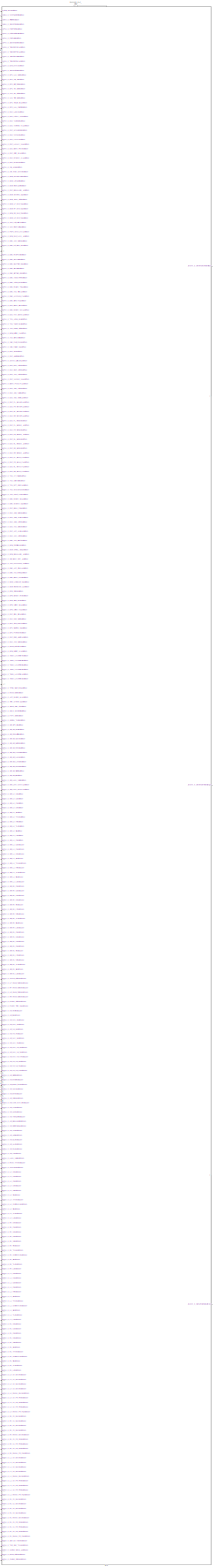
[diagram: root canvas - part 1/15, center side, full height]
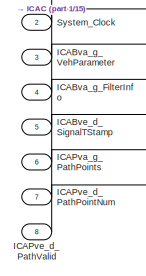
[diagram: root canvas - part 2/15, top left region]
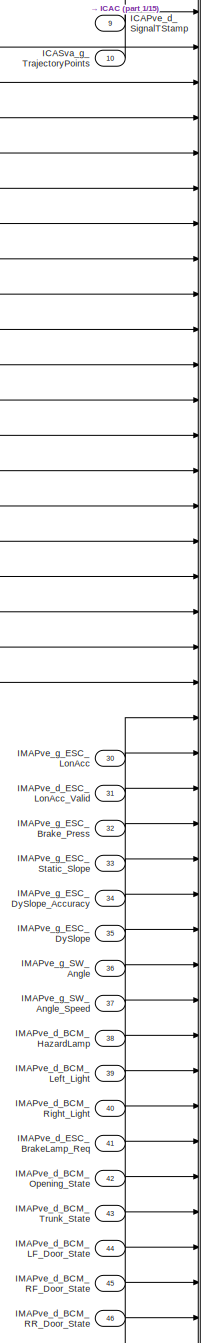
[diagram: root canvas - part 3/15, top center region]
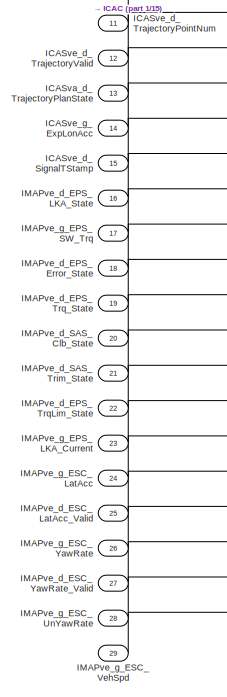
[diagram: root canvas - part 4/15, top left region]
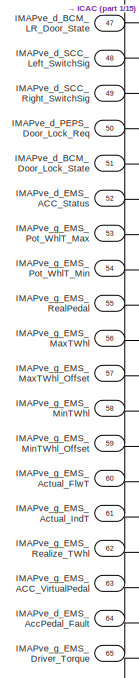
[diagram: root canvas - part 5/15, top center region]
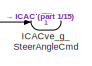
[diagram: root canvas - part 6/15, top right region]
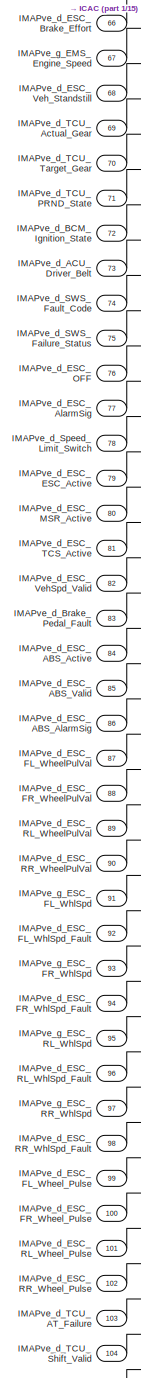
[diagram: root canvas - part 7/15, top center region]
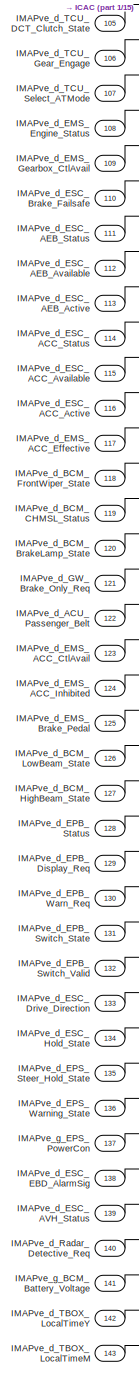
[diagram: root canvas - part 8/15, central region]
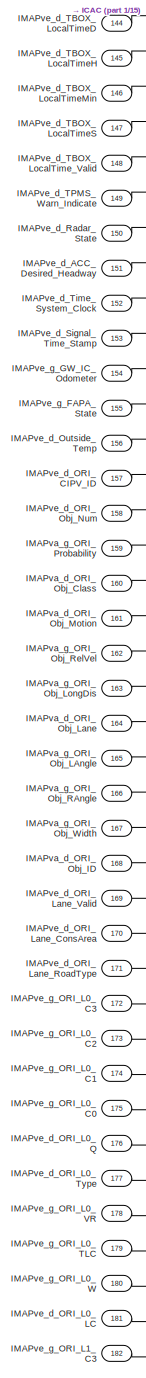
[diagram: root canvas - part 9/15, central region]
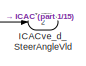
[diagram: root canvas - part 10/15, middle right region]
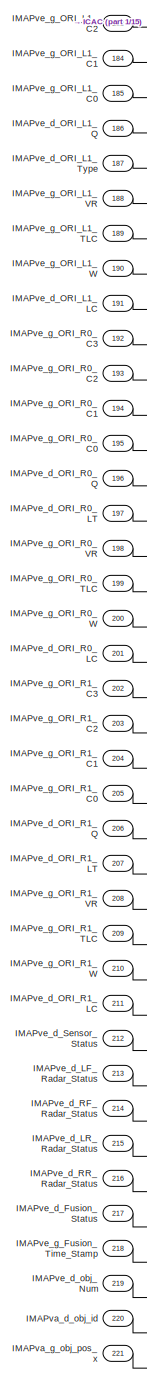
[diagram: root canvas - part 11/15, central region]
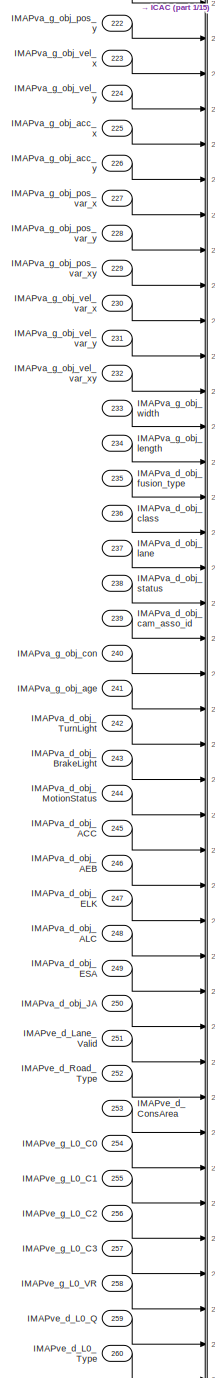
[diagram: root canvas - part 12/15, bottom center region]
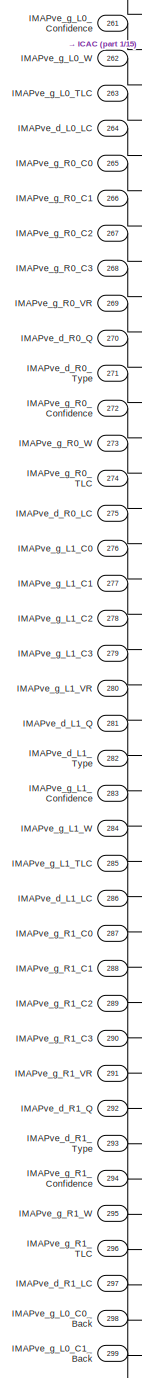
[diagram: root canvas - part 13/15, bottom center region]
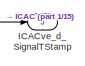
[diagram: root canvas - part 14/15, bottom right region]
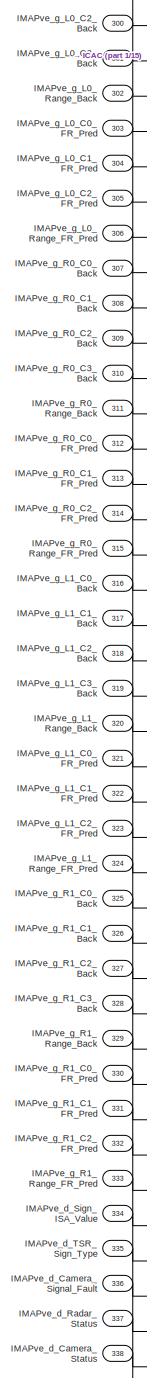
[diagram: root canvas - part 15/15, bottom center region]
MODEL slx_9c63c3b13951
KIND model
CONFIG AbsTol = auto
CONFIG EnableMultiTasking = off
CONFIG FixedStep = auto
CONFIG InitFcn = tmpVer = ver('MATLAB');\ntmpVer = str2num(tmpVer.Version);\n% -------------------------------------------------------------------\n%  MATLAB file generated by Simulink.saveVars on 21-Nov-2019 10:06:14\n%  MATLAB version: 7.13.0.564 (R2011b)\n% -------------------------------------------------------------------\n                                       \n\nSInt16 = Simulink.AliasType;\nSInt16.Description = 'N...<+164021ch>
CONFIG MaxStep = auto
CONFIG MinStep = auto
CONFIG RelTol = 1e-3
CONFIG SampleTimeConstraint = Unconstrained
CONFIG Solver = FixedStepDiscrete
CONFIG SolverName = FixedStepDiscrete
CONFIG StartTime = 0.0
CONFIG StopFcn = clear  T_A_m2_1024_1_u32 T_A_m2_65536_1_u16 T_A_m2_Float32 T_A_mm2_10_1_u16 T_A_mm2_4_1_s16 T_A_mm2_Float32 T_Cnt_Num_10_1_u32 T_Cnt_Num_1_1_s16 T_Cnt_Num_1_1_s32 T_Cnt_Num_1_1_s8 T_Cnt_Num_1_1_u16 T_Cnt_Num_1_1_u32 T_Cnt_Num_1_1_u8 T_E_J_1_1_s32 T_E_J_Float32 T_E_kJ_128_1_s32 T_E_kJ_Float32 T_E_kwh_10_1_u16 T_E_kwh_Float32 T_Epl_kwhpkm_100_1_u16 T_Epl_kwhpkm_Float32 T_F_N_1_1_s16 T_F_N_Float32 T_...<+4855ch>
CONFIG StopTime = 10.0
BLOCK [Inport] ICABva_g_FilterInfo
  IconDisplay = Port number
  OutDataTypeStr = T_M_Nm_Float32
  Port = 4
  PortDimensions = 50
BLOCK [Inport] ICABva_g_VehParameter
  IconDisplay = Port number
  OutDataTypeStr = T_M_Nm_Float32
  Port = 3
  PortDimensions = 60
BLOCK [Inport] ICABve_d_SignalTStamp
  IconDisplay = Port number
  OutDataTypeStr = UInt16
  Port = 5
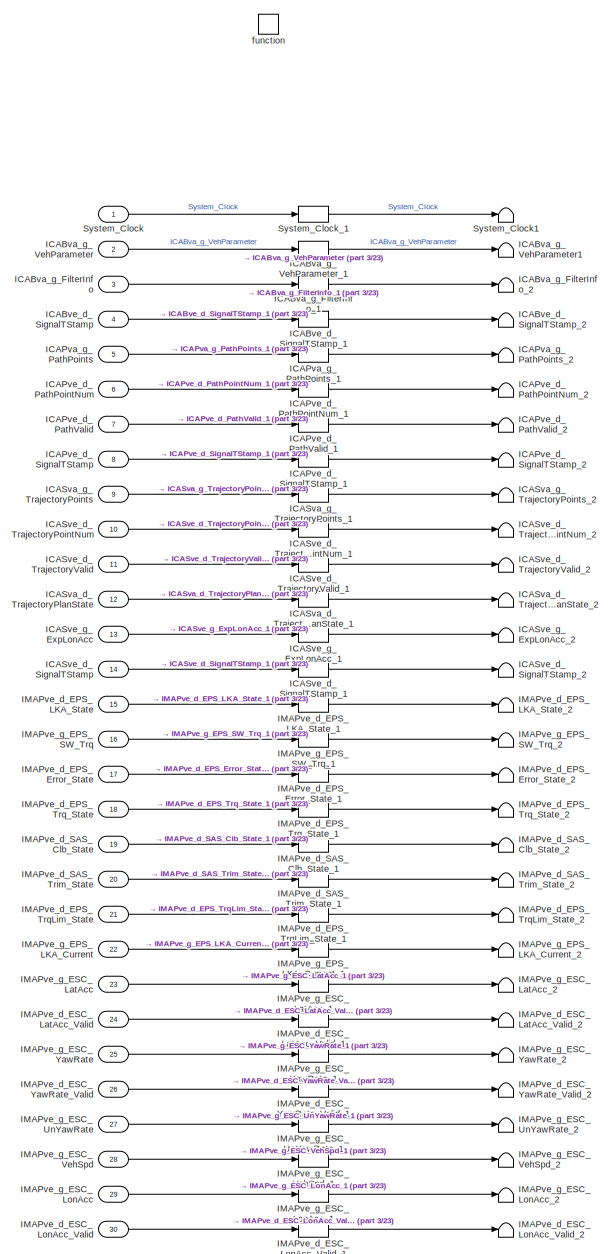
[diagram: ICAC - part 1/23, top left region]
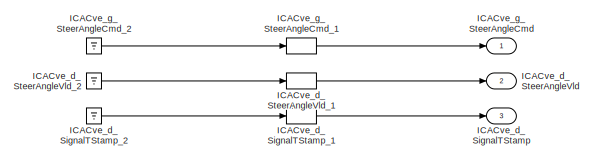
[diagram: ICAC - part 2/23, top right region]
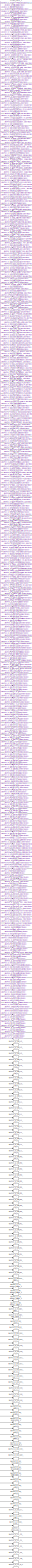
[diagram: ICAC - part 3/23, left side, full height]
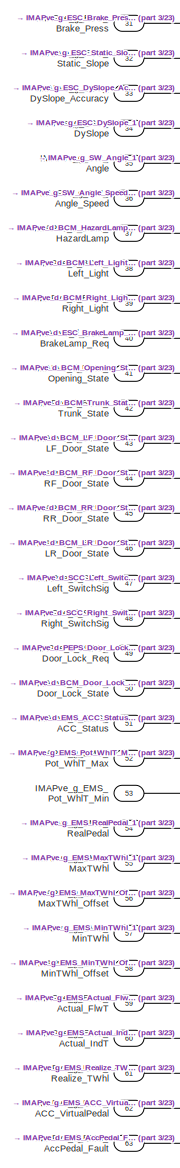
[diagram: ICAC - part 4/23, top left region]
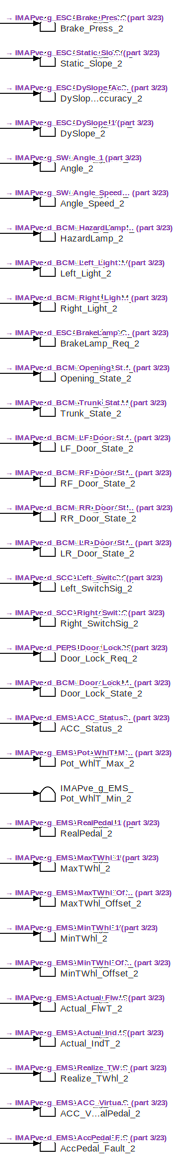
[diagram: ICAC - part 5/23, top left region]
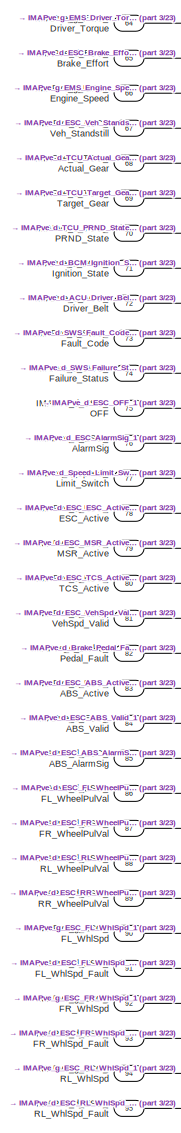
[diagram: ICAC - part 6/23, top left region]
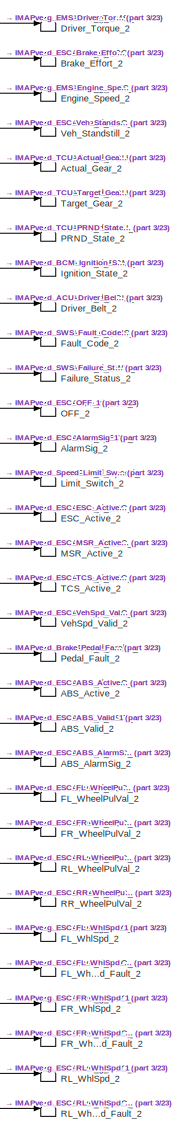
[diagram: ICAC - part 7/23, top left region]
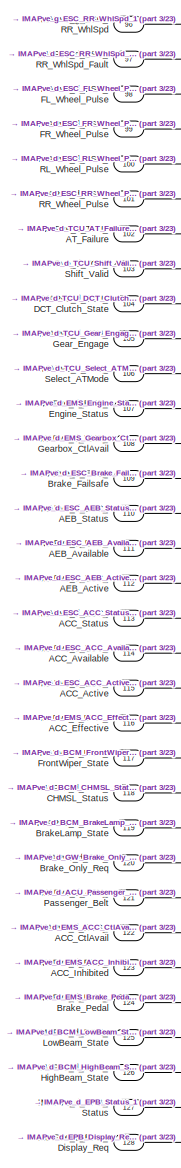
[diagram: ICAC - part 8/23, middle left region]
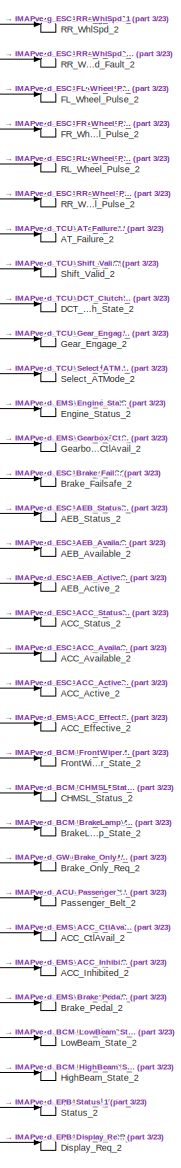
[diagram: ICAC - part 9/23, middle left region]
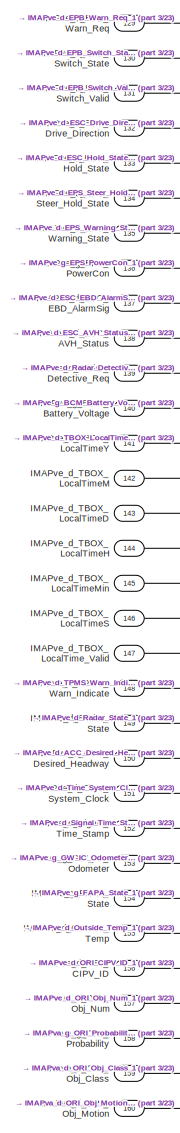
[diagram: ICAC - part 10/23, middle left region]
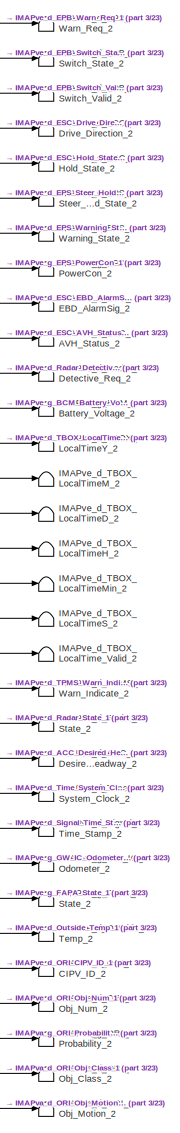
[diagram: ICAC - part 11/23, middle left region]
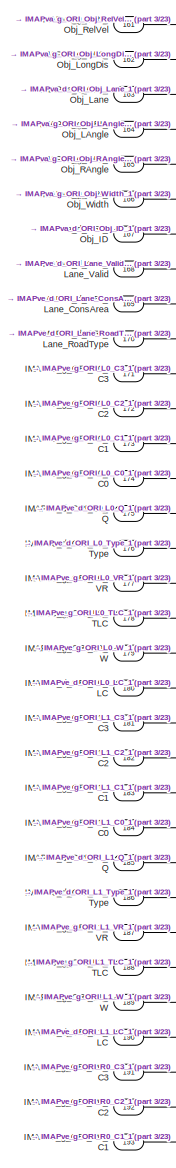
[diagram: ICAC - part 12/23, middle left region]
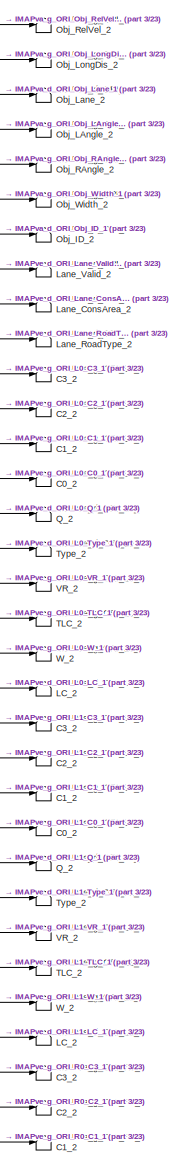
[diagram: ICAC - part 13/23, middle left region]
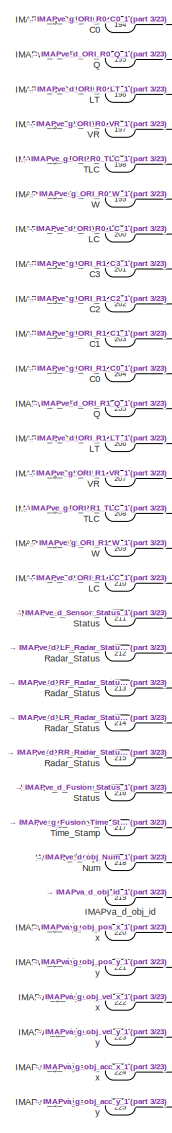
[diagram: ICAC - part 14/23, middle left region]
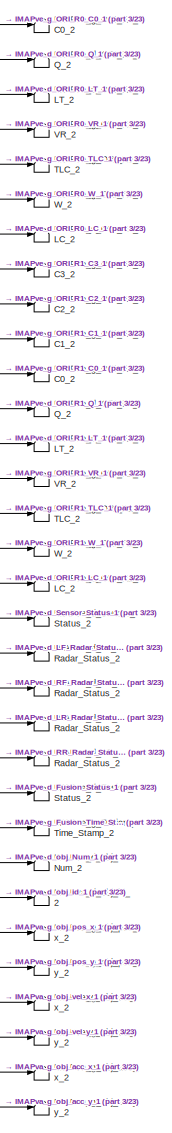
[diagram: ICAC - part 15/23, middle left region]
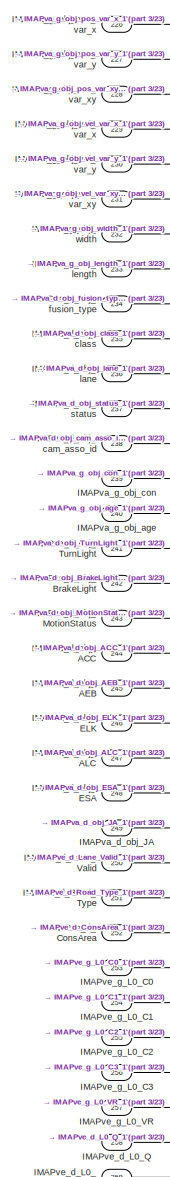
[diagram: ICAC - part 16/23, bottom left region]
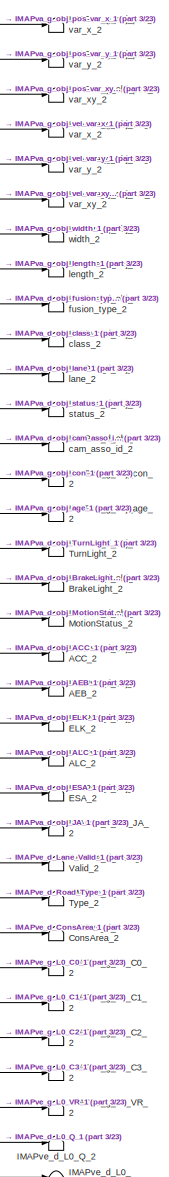
[diagram: ICAC - part 17/23, bottom left region]
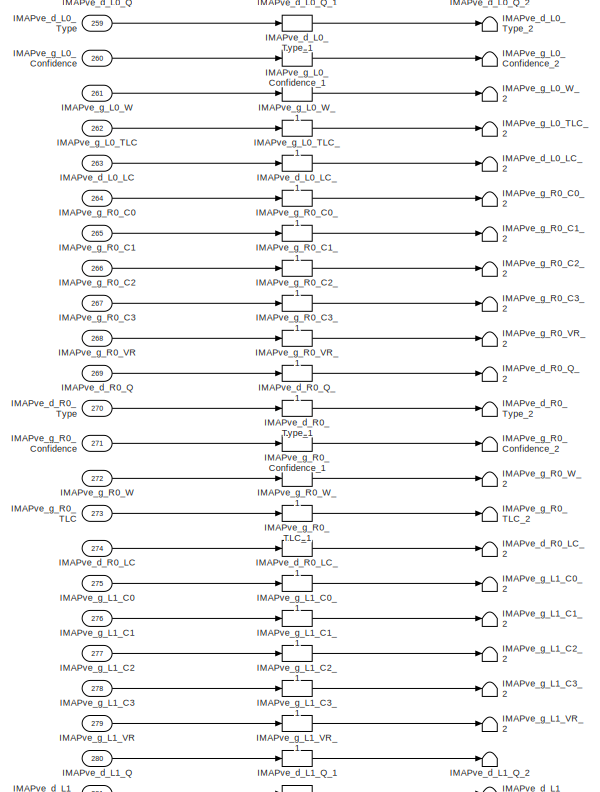
[diagram: ICAC - part 18/23, bottom left region]
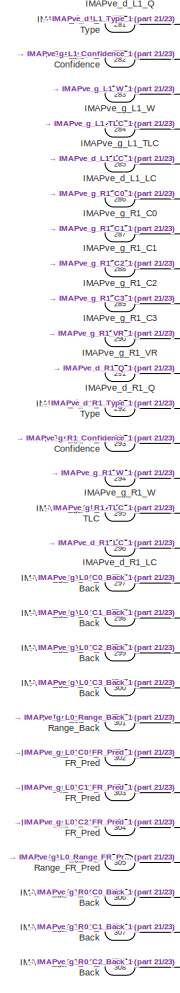
[diagram: ICAC - part 19/23, bottom left region]
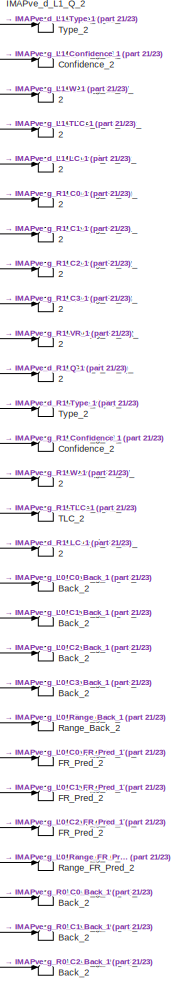
[diagram: ICAC - part 20/23, bottom left region]
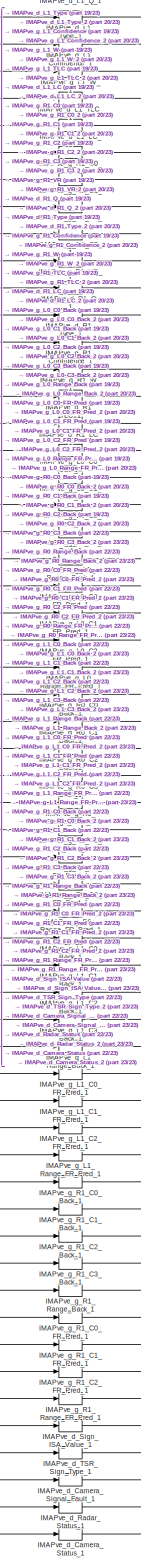
[diagram: ICAC - part 21/23, bottom left region]
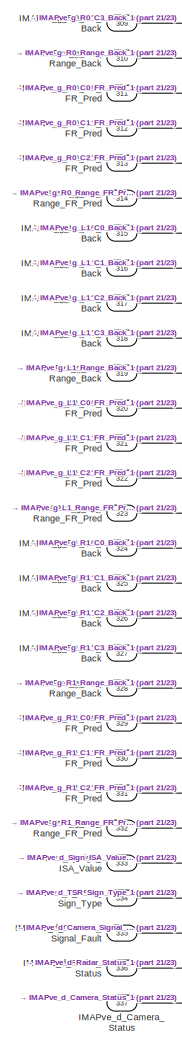
[diagram: ICAC - part 22/23, bottom left region]
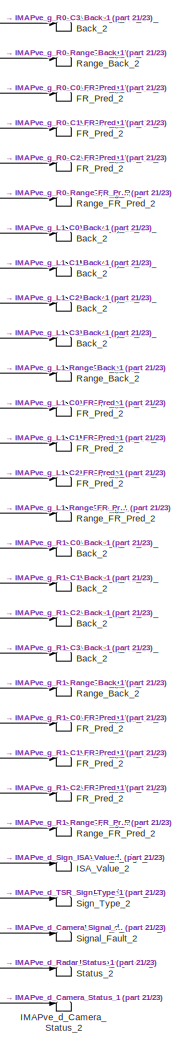
[diagram: ICAC - part 23/23, bottom left region]
BLOCK [SubSystem] ICAC
  Ports = [337, 3, 0, 1]
  RequestExecContextInheritance = off
  TreatAsAtomicUnit = on
BLOCK [Inport] ICAC/ICABva_g_FilterInfo
  IconDisplay = Port number
  Port = 3
BLOCK [DataTypeConversion] ICAC/ICABva_g_FilterInfo_1
  OutDataTypeStr = single
  RndMeth = Floor
  SaturateOnIntegerOverflow = off
BLOCK [Terminator] ICAC/ICABva_g_FilterInfo_2
BLOCK [Inport] ICAC/ICABva_g_VehParameter
  IconDisplay = Port number
  Port = 2
BLOCK [Terminator] ICAC/ICABva_g_VehParameter1
BLOCK [DataTypeConversion] ICAC/ICABva_g_VehParameter_1
  OutDataTypeStr = single
  RndMeth = Floor
  SaturateOnIntegerOverflow = off
BLOCK [Inport] ICAC/ICABve_d_SignalTStamp
  IconDisplay = Port number
  Port = 4
BLOCK [DataTypeConversion] ICAC/ICABve_d_SignalTStamp_1
  OutDataTypeStr = uint16
  RndMeth = Floor
  SaturateOnIntegerOverflow = off
BLOCK [Terminator] ICAC/ICABve_d_SignalTStamp_2
BLOCK [Outport] ICAC/ICACve_d_SignalTStamp
  IconDisplay = Port number
  Port = 3
BLOCK [DataTypeConversion] ICAC/ICACve_d_SignalTStamp_1
  OutDataTypeStr = UInt16
  RndMeth = Floor
  SaturateOnIntegerOverflow = off
BLOCK [Ground] ICAC/ICACve_d_SignalTStamp_2
BLOCK [Outport] ICAC/ICACve_d_SteerAngleVld
  IconDisplay = Port number
  Port = 2
BLOCK [DataTypeConversion] ICAC/ICACve_d_SteerAngleVld_1
  OutDataTypeStr = UInt16
  RndMeth = Floor
  SaturateOnIntegerOverflow = off
BLOCK [Ground] ICAC/ICACve_d_SteerAngleVld_2
BLOCK [Outport] ICAC/ICACve_g_SteerAngleCmd
  IconDisplay = Port number
BLOCK [DataTypeConversion] ICAC/ICACve_g_SteerAngleCmd_1
  OutDataTypeStr = T_M_Nm_Float32
  RndMeth = Floor
  SaturateOnIntegerOverflow = off
BLOCK [Ground] ICAC/ICACve_g_SteerAngleCmd_2
BLOCK [Inport] ICAC/ICAPva_g_PathPoints
  IconDisplay = Port number
  Port = 5
BLOCK [DataTypeConversion] ICAC/ICAPva_g_PathPoints_1
  OutDataTypeStr = single
  RndMeth = Floor
  SaturateOnIntegerOverflow = off
BLOCK [Terminator] ICAC/ICAPva_g_PathPoints_2
BLOCK [Inport] ICAC/ICAPve_d_PathPointNum
  IconDisplay = Port number
  Port = 6
BLOCK [DataTypeConversion] ICAC/ICAPve_d_PathPointNum_1
  OutDataTypeStr = uint16
  RndMeth = Floor
  SaturateOnIntegerOverflow = off
BLOCK [Terminator] ICAC/ICAPve_d_PathPointNum_2
BLOCK [Inport] ICAC/ICAPve_d_PathValid
  IconDisplay = Port number
  Port = 7
BLOCK [DataTypeConversion] ICAC/ICAPve_d_PathValid_1
  OutDataTypeStr = uint16
  RndMeth = Floor
  SaturateOnIntegerOverflow = off
BLOCK [Terminator] ICAC/ICAPve_d_PathValid_2
BLOCK [Inport] ICAC/ICAPve_d_SignalTStamp
  IconDisplay = Port number
  Port = 8
BLOCK [DataTypeConversion] ICAC/ICAPve_d_SignalTStamp_1
  OutDataTypeStr = uint16
  RndMeth = Floor
  SaturateOnIntegerOverflow = off
BLOCK [Terminator] ICAC/ICAPve_d_SignalTStamp_2
BLOCK [Inport] ICAC/ICASva_d_TrajectoryPlanState
  IconDisplay = Port number
  Port = 12
BLOCK [DataTypeConversion] ICAC/ICASva_d_TrajectoryPlanState_1
  OutDataTypeStr = uint16
  RndMeth = Floor
  SaturateOnIntegerOverflow = off
BLOCK [Terminator] ICAC/ICASva_d_TrajectoryPlanState_2
BLOCK [Inport] ICAC/ICASva_g_TrajectoryPoints
  IconDisplay = Port number
  Port = 9
BLOCK [DataTypeConversion] ICAC/ICASva_g_TrajectoryPoints_1
  OutDataTypeStr = single
  RndMeth = Floor
  SaturateOnIntegerOverflow = off
BLOCK [Terminator] ICAC/ICASva_g_TrajectoryPoints_2
BLOCK [Inport] ICAC/ICASve_d_SignalTStamp
  IconDisplay = Port number
  Port = 14
BLOCK [DataTypeConversion] ICAC/ICASve_d_SignalTStamp_1
  OutDataTypeStr = uint16
  RndMeth = Floor
  SaturateOnIntegerOverflow = off
BLOCK [Terminator] ICAC/ICASve_d_SignalTStamp_2
BLOCK [Inport] ICAC/ICASve_d_TrajectoryPointNum
  IconDisplay = Port number
  Port = 10
BLOCK [DataTypeConversion] ICAC/ICASve_d_TrajectoryPointNum_1
  OutDataTypeStr = uint16
  RndMeth = Floor
  SaturateOnIntegerOverflow = off
BLOCK [Terminator] ICAC/ICASve_d_TrajectoryPointNum_2
BLOCK [Inport] ICAC/ICASve_d_TrajectoryValid
  IconDisplay = Port number
  Port = 11
BLOCK [DataTypeConversion] ICAC/ICASve_d_TrajectoryValid_1
  OutDataTypeStr = uint16
  RndMeth = Floor
  SaturateOnIntegerOverflow = off
BLOCK [Terminator] ICAC/ICASve_d_TrajectoryValid_2
BLOCK [Inport] ICAC/ICASve_g_ExpLonAcc
  IconDisplay = Port number
  Port = 13
BLOCK [DataTypeConversion] ICAC/ICASve_g_ExpLonAcc_1
  OutDataTypeStr = single
  RndMeth = Floor
  SaturateOnIntegerOverflow = off
BLOCK [Terminator] ICAC/ICASve_g_ExpLonAcc_2
BLOCK [Inport] ICAC/IMAPva_d_ORI_Obj_Class
  IconDisplay = Port number
  Port = 159
BLOCK [DataTypeConversion] ICAC/IMAPva_d_ORI_Obj_Class_1
  OutDataTypeStr = uint16
  RndMeth = Floor
  SaturateOnIntegerOverflow = off
BLOCK [Terminator] ICAC/IMAPva_d_ORI_Obj_Class_2
BLOCK [Inport] ICAC/IMAPva_d_ORI_Obj_ID
  IconDisplay = Port number
  Port = 167
BLOCK [DataTypeConversion] ICAC/IMAPva_d_ORI_Obj_ID_1
  OutDataTypeStr = uint16
  RndMeth = Floor
  SaturateOnIntegerOverflow = off
BLOCK [Terminator] ICAC/IMAPva_d_ORI_Obj_ID_2
BLOCK [Inport] ICAC/IMAPva_d_ORI_Obj_Lane
  IconDisplay = Port number
  Port = 163
BLOCK [DataTypeConversion] ICAC/IMAPva_d_ORI_Obj_Lane_1
  OutDataTypeStr = uint16
  RndMeth = Floor
  SaturateOnIntegerOverflow = off
BLOCK [Terminator] ICAC/IMAPva_d_ORI_Obj_Lane_2
BLOCK [Inport] ICAC/IMAPva_d_ORI_Obj_Motion
  IconDisplay = Port number
  Port = 160
BLOCK [DataTypeConversion] ICAC/IMAPva_d_ORI_Obj_Motion_1
  OutDataTypeStr = uint16
  RndMeth = Floor
  SaturateOnIntegerOverflow = off
BLOCK [Terminator] ICAC/IMAPva_d_ORI_Obj_Motion_2
BLOCK [Inport] ICAC/IMAPva_d_obj_ACC
  IconDisplay = Port number
  Port = 244
BLOCK [DataTypeConversion] ICAC/IMAPva_d_obj_ACC_1
  OutDataTypeStr = uint16
  RndMeth = Floor
  SaturateOnIntegerOverflow = off
BLOCK [Terminator] ICAC/IMAPva_d_obj_ACC_2
BLOCK [Inport] ICAC/IMAPva_d_obj_AEB
  IconDisplay = Port number
  Port = 245
BLOCK [DataTypeConversion] ICAC/IMAPva_d_obj_AEB_1
  OutDataTypeStr = uint16
  RndMeth = Floor
  SaturateOnIntegerOverflow = off
BLOCK [Terminator] ICAC/IMAPva_d_obj_AEB_2
BLOCK [Inport] ICAC/IMAPva_d_obj_ALC
  IconDisplay = Port number
  Port = 247
BLOCK [DataTypeConversion] ICAC/IMAPva_d_obj_ALC_1
  OutDataTypeStr = uint16
  RndMeth = Floor
  SaturateOnIntegerOverflow = off
BLOCK [Terminator] ICAC/IMAPva_d_obj_ALC_2
BLOCK [Inport] ICAC/IMAPva_d_obj_BrakeLight
  IconDisplay = Port number
  Port = 242
BLOCK [DataTypeConversion] ICAC/IMAPva_d_obj_BrakeLight_1
  OutDataTypeStr = uint16
  RndMeth = Floor
  SaturateOnIntegerOverflow = off
BLOCK [Terminator] ICAC/IMAPva_d_obj_BrakeLight_2
BLOCK [Inport] ICAC/IMAPva_d_obj_ELK
  IconDisplay = Port number
  Port = 246
BLOCK [DataTypeConversion] ICAC/IMAPva_d_obj_ELK_1
  OutDataTypeStr = uint16
  RndMeth = Floor
  SaturateOnIntegerOverflow = off
BLOCK [Terminator] ICAC/IMAPva_d_obj_ELK_2
BLOCK [Inport] ICAC/IMAPva_d_obj_ESA
  IconDisplay = Port number
  Port = 248
BLOCK [DataTypeConversion] ICAC/IMAPva_d_obj_ESA_1
  OutDataTypeStr = uint16
  RndMeth = Floor
  SaturateOnIntegerOverflow = off
BLOCK [Terminator] ICAC/IMAPva_d_obj_ESA_2
BLOCK [Inport] ICAC/IMAPva_d_obj_JA
  IconDisplay = Port number
  Port = 249
BLOCK [DataTypeConversion] ICAC/IMAPva_d_obj_JA_1
  OutDataTypeStr = uint16
  RndMeth = Floor
  SaturateOnIntegerOverflow = off
BLOCK [Terminator] ICAC/IMAPva_d_obj_JA_2
BLOCK [Inport] ICAC/IMAPva_d_obj_MotionStatus
  IconDisplay = Port number
  Port = 243
BLOCK [DataTypeConversion] ICAC/IMAPva_d_obj_MotionStatus_1
  OutDataTypeStr = uint16
  RndMeth = Floor
  SaturateOnIntegerOverflow = off
BLOCK [Terminator] ICAC/IMAPva_d_obj_MotionStatus_2
BLOCK [Inport] ICAC/IMAPva_d_obj_TurnLight
  IconDisplay = Port number
  Port = 241
BLOCK [DataTypeConversion] ICAC/IMAPva_d_obj_TurnLight_1
  OutDataTypeStr = uint16
  RndMeth = Floor
  SaturateOnIntegerOverflow = off
BLOCK [Terminator] ICAC/IMAPva_d_obj_TurnLight_2
BLOCK [Inport] ICAC/IMAPva_d_obj_cam_asso_id
  IconDisplay = Port number
  Port = 238
BLOCK [DataTypeConversion] ICAC/IMAPva_d_obj_cam_asso_id_1
  OutDataTypeStr = uint16
  RndMeth = Floor
  SaturateOnIntegerOverflow = off
BLOCK [Terminator] ICAC/IMAPva_d_obj_cam_asso_id_2
BLOCK [Inport] ICAC/IMAPva_d_obj_class
  IconDisplay = Port number
  Port = 235
BLOCK [DataTypeConversion] ICAC/IMAPva_d_obj_class_1
  OutDataTypeStr = uint16
  RndMeth = Floor
  SaturateOnIntegerOverflow = off
BLOCK [Terminator] ICAC/IMAPva_d_obj_class_2
BLOCK [Inport] ICAC/IMAPva_d_obj_fusion_type
  IconDisplay = Port number
  Port = 234
BLOCK [DataTypeConversion] ICAC/IMAPva_d_obj_fusion_type_1
  OutDataTypeStr = uint16
  RndMeth = Floor
  SaturateOnIntegerOverflow = off
BLOCK [Terminator] ICAC/IMAPva_d_obj_fusion_type_2
BLOCK [Inport] ICAC/IMAPva_d_obj_id
  IconDisplay = Port number
  Port = 219
BLOCK [DataTypeConversion] ICAC/IMAPva_d_obj_id_1
  OutDataTypeStr = uint16
  RndMeth = Floor
  SaturateOnIntegerOverflow = off
BLOCK [Terminator] ICAC/IMAPva_d_obj_id_2
BLOCK [Inport] ICAC/IMAPva_d_obj_lane
  IconDisplay = Port number
  Port = 236
BLOCK [DataTypeConversion] ICAC/IMAPva_d_obj_lane_1
  OutDataTypeStr = uint16
  RndMeth = Floor
  SaturateOnIntegerOverflow = off
BLOCK [Terminator] ICAC/IMAPva_d_obj_lane_2
BLOCK [Inport] ICAC/IMAPva_d_obj_status
  IconDisplay = Port number
  Port = 237
BLOCK [DataTypeConversion] ICAC/IMAPva_d_obj_status_1
  OutDataTypeStr = uint16
  RndMeth = Floor
  SaturateOnIntegerOverflow = off
BLOCK [Terminator] ICAC/IMAPva_d_obj_status_2
BLOCK [Inport] ICAC/IMAPva_g_ORI_Obj_LAngle
  IconDisplay = Port number
  Port = 164
BLOCK [DataTypeConversion] ICAC/IMAPva_g_ORI_Obj_LAngle_1
  OutDataTypeStr = single
  RndMeth = Floor
  SaturateOnIntegerOverflow = off
BLOCK [Terminator] ICAC/IMAPva_g_ORI_Obj_LAngle_2
BLOCK [Inport] ICAC/IMAPva_g_ORI_Obj_LongDis
  IconDisplay = Port number
  Port = 162
BLOCK [DataTypeConversion] ICAC/IMAPva_g_ORI_Obj_LongDis_1
  OutDataTypeStr = single
  RndMeth = Floor
  SaturateOnIntegerOverflow = off
BLOCK [Terminator] ICAC/IMAPva_g_ORI_Obj_LongDis_2
BLOCK [Inport] ICAC/IMAPva_g_ORI_Obj_RAngle
  IconDisplay = Port number
  Port = 165
BLOCK [DataTypeConversion] ICAC/IMAPva_g_ORI_Obj_RAngle_1
  OutDataTypeStr = single
  RndMeth = Floor
  SaturateOnIntegerOverflow = off
BLOCK [Terminator] ICAC/IMAPva_g_ORI_Obj_RAngle_2
BLOCK [Inport] ICAC/IMAPva_g_ORI_Obj_RelVel
  IconDisplay = Port number
  Port = 161
BLOCK [DataTypeConversion] ICAC/IMAPva_g_ORI_Obj_RelVel_1
  OutDataTypeStr = single
  RndMeth = Floor
  SaturateOnIntegerOverflow = off
BLOCK [Terminator] ICAC/IMAPva_g_ORI_Obj_RelVel_2
BLOCK [Inport] ICAC/IMAPva_g_ORI_Obj_Width
  IconDisplay = Port number
  Port = 166
BLOCK [DataTypeConversion] ICAC/IMAPva_g_ORI_Obj_Width_1
  OutDataTypeStr = single
  RndMeth = Floor
  SaturateOnIntegerOverflow = off
BLOCK [Terminator] ICAC/IMAPva_g_ORI_Obj_Width_2
BLOCK [Inport] ICAC/IMAPva_g_ORI_Probability
  IconDisplay = Port number
  Port = 158
BLOCK [DataTypeConversion] ICAC/IMAPva_g_ORI_Probability_1
  OutDataTypeStr = single
  RndMeth = Floor
  SaturateOnIntegerOverflow = off
BLOCK [Terminator] ICAC/IMAPva_g_ORI_Probability_2
BLOCK [Inport] ICAC/IMAPva_g_obj_acc_x
  IconDisplay = Port number
  Port = 224
BLOCK [DataTypeConversion] ICAC/IMAPva_g_obj_acc_x_1
  OutDataTypeStr = single
  RndMeth = Floor
  SaturateOnIntegerOverflow = off
BLOCK [Terminator] ICAC/IMAPva_g_obj_acc_x_2
BLOCK [Inport] ICAC/IMAPva_g_obj_acc_y
  IconDisplay = Port number
  Port = 225
BLOCK [DataTypeConversion] ICAC/IMAPva_g_obj_acc_y_1
  OutDataTypeStr = single
  RndMeth = Floor
  SaturateOnIntegerOverflow = off
BLOCK [Terminator] ICAC/IMAPva_g_obj_acc_y_2
BLOCK [Inport] ICAC/IMAPva_g_obj_age
  IconDisplay = Port number
  Port = 240
BLOCK [DataTypeConversion] ICAC/IMAPva_g_obj_age_1
  OutDataTypeStr = single
  RndMeth = Floor
  SaturateOnIntegerOverflow = off
BLOCK [Terminator] ICAC/IMAPva_g_obj_age_2
BLOCK [Inport] ICAC/IMAPva_g_obj_con
  IconDisplay = Port number
  Port = 239
BLOCK [DataTypeConversion] ICAC/IMAPva_g_obj_con_1
  OutDataTypeStr = single
  RndMeth = Floor
  SaturateOnIntegerOverflow = off
BLOCK [Terminator] ICAC/IMAPva_g_obj_con_2
BLOCK [Inport] ICAC/IMAPva_g_obj_length
  IconDisplay = Port number
  Port = 233
BLOCK [DataTypeConversion] ICAC/IMAPva_g_obj_length_1
  OutDataTypeStr = single
  RndMeth = Floor
  SaturateOnIntegerOverflow = off
BLOCK [Terminator] ICAC/IMAPva_g_obj_length_2
BLOCK [Inport] ICAC/IMAPva_g_obj_pos_var_x
  IconDisplay = Port number
  Port = 226
BLOCK [DataTypeConversion] ICAC/IMAPva_g_obj_pos_var_x_1
  OutDataTypeStr = single
  RndMeth = Floor
  SaturateOnIntegerOverflow = off
BLOCK [Terminator] ICAC/IMAPva_g_obj_pos_var_x_2
BLOCK [Inport] ICAC/IMAPva_g_obj_pos_var_xy
  IconDisplay = Port number
  Port = 228
BLOCK [DataTypeConversion] ICAC/IMAPva_g_obj_pos_var_xy_1
  OutDataTypeStr = single
  RndMeth = Floor
  SaturateOnIntegerOverflow = off
BLOCK [Terminator] ICAC/IMAPva_g_obj_pos_var_xy_2
BLOCK [Inport] ICAC/IMAPva_g_obj_pos_var_y
  IconDisplay = Port number
  Port = 227
BLOCK [DataTypeConversion] ICAC/IMAPva_g_obj_pos_var_y_1
  OutDataTypeStr = single
  RndMeth = Floor
  SaturateOnIntegerOverflow = off
BLOCK [Terminator] ICAC/IMAPva_g_obj_pos_var_y_2
BLOCK [Inport] ICAC/IMAPva_g_obj_pos_x
  IconDisplay = Port number
  Port = 220
BLOCK [DataTypeConversion] ICAC/IMAPva_g_obj_pos_x_1
  OutDataTypeStr = single
  RndMeth = Floor
  SaturateOnIntegerOverflow = off
BLOCK [Terminator] ICAC/IMAPva_g_obj_pos_x_2
BLOCK [Inport] ICAC/IMAPva_g_obj_pos_y
  IconDisplay = Port number
  Port = 221
BLOCK [DataTypeConversion] ICAC/IMAPva_g_obj_pos_y_1
  OutDataTypeStr = single
  RndMeth = Floor
  SaturateOnIntegerOverflow = off
BLOCK [Terminator] ICAC/IMAPva_g_obj_pos_y_2
BLOCK [Inport] ICAC/IMAPva_g_obj_vel_var_x
  IconDisplay = Port number
  Port = 229
BLOCK [DataTypeConversion] ICAC/IMAPva_g_obj_vel_var_x_1
  OutDataTypeStr = single
  RndMeth = Floor
  SaturateOnIntegerOverflow = off
BLOCK [Terminator] ICAC/IMAPva_g_obj_vel_var_x_2
BLOCK [Inport] ICAC/IMAPva_g_obj_vel_var_xy
  IconDisplay = Port number
  Port = 231
BLOCK [DataTypeConversion] ICAC/IMAPva_g_obj_vel_var_xy_1
  OutDataTypeStr = single
  RndMeth = Floor
  SaturateOnIntegerOverflow = off
BLOCK [Terminator] ICAC/IMAPva_g_obj_vel_var_xy_2
BLOCK [Inport] ICAC/IMAPva_g_obj_vel_var_y
  IconDisplay = Port number
  Port = 230
BLOCK [DataTypeConversion] ICAC/IMAPva_g_obj_vel_var_y_1
  OutDataTypeStr = single
  RndMeth = Floor
  SaturateOnIntegerOverflow = off
BLOCK [Terminator] ICAC/IMAPva_g_obj_vel_var_y_2
BLOCK [Inport] ICAC/IMAPva_g_obj_vel_x
  IconDisplay = Port number
  Port = 222
BLOCK [DataTypeConversion] ICAC/IMAPva_g_obj_vel_x_1
  OutDataTypeStr = single
  RndMeth = Floor
  SaturateOnIntegerOverflow = off
BLOCK [Terminator] ICAC/IMAPva_g_obj_vel_x_2
BLOCK [Inport] ICAC/IMAPva_g_obj_vel_y
  IconDisplay = Port number
  Port = 223
BLOCK [DataTypeConversion] ICAC/IMAPva_g_obj_vel_y_1
  OutDataTypeStr = single
  RndMeth = Floor
  SaturateOnIntegerOverflow = off
BLOCK [Terminator] ICAC/IMAPva_g_obj_vel_y_2
BLOCK [Inport] ICAC/IMAPva_g_obj_width
  IconDisplay = Port number
  Port = 232
BLOCK [DataTypeConversion] ICAC/IMAPva_g_obj_width_1
  OutDataTypeStr = single
  RndMeth = Floor
  SaturateOnIntegerOverflow = off
BLOCK [Terminator] ICAC/IMAPva_g_obj_width_2
BLOCK [Inport] ICAC/IMAPve_d_ACC_Desired_Headway
  IconDisplay = Port number
  Port = 150
BLOCK [DataTypeConversion] ICAC/IMAPve_d_ACC_Desired_Headway_1
  OutDataTypeStr = uint16
  RndMeth = Floor
  SaturateOnIntegerOverflow = off
BLOCK [Terminator] ICAC/IMAPve_d_ACC_Desired_Headway_2
BLOCK [Inport] ICAC/IMAPve_d_ACU_Driver_Belt
  IconDisplay = Port number
  Port = 72
BLOCK [DataTypeConversion] ICAC/IMAPve_d_ACU_Driver_Belt_1
  OutDataTypeStr = uint16
  RndMeth = Floor
  SaturateOnIntegerOverflow = off
BLOCK [Terminator] ICAC/IMAPve_d_ACU_Driver_Belt_2
BLOCK [Inport] ICAC/IMAPve_d_ACU_Passenger_Belt
  IconDisplay = Port number
  Port = 121
BLOCK [DataTypeConversion] ICAC/IMAPve_d_ACU_Passenger_Belt_1
  OutDataTypeStr = uint16
  RndMeth = Floor
  SaturateOnIntegerOverflow = off
BLOCK [Terminator] ICAC/IMAPve_d_ACU_Passenger_Belt_2
BLOCK [Inport] ICAC/IMAPve_d_BCM_BrakeLamp_State
  IconDisplay = Port number
  Port = 119
BLOCK [DataTypeConversion] ICAC/IMAPve_d_BCM_BrakeLamp_State_1
  OutDataTypeStr = uint16
  RndMeth = Floor
  SaturateOnIntegerOverflow = off
BLOCK [Terminator] ICAC/IMAPve_d_BCM_BrakeLamp_State_2
BLOCK [Inport] ICAC/IMAPve_d_BCM_CHMSL_Status
  IconDisplay = Port number
  Port = 118
BLOCK [DataTypeConversion] ICAC/IMAPve_d_BCM_CHMSL_Status_1
  OutDataTypeStr = uint16
  RndMeth = Floor
  SaturateOnIntegerOverflow = off
BLOCK [Terminator] ICAC/IMAPve_d_BCM_CHMSL_Status_2
BLOCK [Inport] ICAC/IMAPve_d_BCM_Door_Lock_State
  IconDisplay = Port number
  Port = 50
BLOCK [DataTypeConversion] ICAC/IMAPve_d_BCM_Door_Lock_State_1
  OutDataTypeStr = uint16
  RndMeth = Floor
  SaturateOnIntegerOverflow = off
BLOCK [Terminator] ICAC/IMAPve_d_BCM_Door_Lock_State_2
BLOCK [Inport] ICAC/IMAPve_d_BCM_FrontWiper_State
  IconDisplay = Port number
  Port = 117
BLOCK [DataTypeConversion] ICAC/IMAPve_d_BCM_FrontWiper_State_1
  OutDataTypeStr = uint16
  RndMeth = Floor
  SaturateOnIntegerOverflow = off
BLOCK [Terminator] ICAC/IMAPve_d_BCM_FrontWiper_State_2
BLOCK [Inport] ICAC/IMAPve_d_BCM_HazardLamp
  IconDisplay = Port number
  Port = 37
BLOCK [DataTypeConversion] ICAC/IMAPve_d_BCM_HazardLamp_1
  OutDataTypeStr = uint16
  RndMeth = Floor
  SaturateOnIntegerOverflow = off
BLOCK [Terminator] ICAC/IMAPve_d_BCM_HazardLamp_2
BLOCK [Inport] ICAC/IMAPve_d_BCM_HighBeam_State
  IconDisplay = Port number
  Port = 126
BLOCK [DataTypeConversion] ICAC/IMAPve_d_BCM_HighBeam_State_1
  OutDataTypeStr = uint16
  RndMeth = Floor
  SaturateOnIntegerOverflow = off
BLOCK [Terminator] ICAC/IMAPve_d_BCM_HighBeam_State_2
BLOCK [Inport] ICAC/IMAPve_d_BCM_Ignition_State
  IconDisplay = Port number
  Port = 71
BLOCK [DataTypeConversion] ICAC/IMAPve_d_BCM_Ignition_State_1
  OutDataTypeStr = uint16
  RndMeth = Floor
  SaturateOnIntegerOverflow = off
BLOCK [Terminator] ICAC/IMAPve_d_BCM_Ignition_State_2
BLOCK [Inport] ICAC/IMAPve_d_BCM_LF_Door_State
  IconDisplay = Port number
  Port = 43
BLOCK [DataTypeConversion] ICAC/IMAPve_d_BCM_LF_Door_State_1
  OutDataTypeStr = uint16
  RndMeth = Floor
  SaturateOnIntegerOverflow = off
BLOCK [Terminator] ICAC/IMAPve_d_BCM_LF_Door_State_2
BLOCK [Inport] ICAC/IMAPve_d_BCM_LR_Door_State
  IconDisplay = Port number
  Port = 46
BLOCK [DataTypeConversion] ICAC/IMAPve_d_BCM_LR_Door_State_1
  OutDataTypeStr = uint16
  RndMeth = Floor
  SaturateOnIntegerOverflow = off
BLOCK [Terminator] ICAC/IMAPve_d_BCM_LR_Door_State_2
BLOCK [Inport] ICAC/IMAPve_d_BCM_Left_Light
  IconDisplay = Port number
  Port = 38
BLOCK [DataTypeConversion] ICAC/IMAPve_d_BCM_Left_Light_1
  OutDataTypeStr = uint16
  RndMeth = Floor
  SaturateOnIntegerOverflow = off
BLOCK [Terminator] ICAC/IMAPve_d_BCM_Left_Light_2
BLOCK [Inport] ICAC/IMAPve_d_BCM_LowBeam_State
  IconDisplay = Port number
  Port = 125
BLOCK [DataTypeConversion] ICAC/IMAPve_d_BCM_LowBeam_State_1
  OutDataTypeStr = uint16
  RndMeth = Floor
  SaturateOnIntegerOverflow = off
BLOCK [Terminator] ICAC/IMAPve_d_BCM_LowBeam_State_2
BLOCK [Inport] ICAC/IMAPve_d_BCM_Opening_State
  IconDisplay = Port number
  Port = 41
BLOCK [DataTypeConversion] ICAC/IMAPve_d_BCM_Opening_State_1
  OutDataTypeStr = uint16
  RndMeth = Floor
  SaturateOnIntegerOverflow = off
BLOCK [Terminator] ICAC/IMAPve_d_BCM_Opening_State_2
BLOCK [Inport] ICAC/IMAPve_d_BCM_RF_Door_State
  IconDisplay = Port number
  Port = 44
BLOCK [DataTypeConversion] ICAC/IMAPve_d_BCM_RF_Door_State_1
  OutDataTypeStr = uint16
  RndMeth = Floor
  SaturateOnIntegerOverflow = off
BLOCK [Terminator] ICAC/IMAPve_d_BCM_RF_Door_State_2
BLOCK [Inport] ICAC/IMAPve_d_BCM_RR_Door_State
  IconDisplay = Port number
  Port = 45
BLOCK [DataTypeConversion] ICAC/IMAPve_d_BCM_RR_Door_State_1
  OutDataTypeStr = uint16
  RndMeth = Floor
  SaturateOnIntegerOverflow = off
BLOCK [Terminator] ICAC/IMAPve_d_BCM_RR_Door_State_2
BLOCK [Inport] ICAC/IMAPve_d_BCM_Right_Light
  IconDisplay = Port number
  Port = 39
BLOCK [DataTypeConversion] ICAC/IMAPve_d_BCM_Right_Light_1
  OutDataTypeStr = uint16
  RndMeth = Floor
  SaturateOnIntegerOverflow = off
BLOCK [Terminator] ICAC/IMAPve_d_BCM_Right_Light_2
BLOCK [Inport] ICAC/IMAPve_d_BCM_Trunk_State
  IconDisplay = Port number
  Port = 42
BLOCK [DataTypeConversion] ICAC/IMAPve_d_BCM_Trunk_State_1
  OutDataTypeStr = uint16
  RndMeth = Floor
  SaturateOnIntegerOverflow = off
BLOCK [Terminator] ICAC/IMAPve_d_BCM_Trunk_State_2
BLOCK [Inport] ICAC/IMAPve_d_Brake_Pedal_Fault
  IconDisplay = Port number
  Port = 82
BLOCK [DataTypeConversion] ICAC/IMAPve_d_Brake_Pedal_Fault_1
  OutDataTypeStr = uint16
  RndMeth = Floor
  SaturateOnIntegerOverflow = off
BLOCK [Terminator] ICAC/IMAPve_d_Brake_Pedal_Fault_2
BLOCK [Inport] ICAC/IMAPve_d_Camera_Signal_Fault
  IconDisplay = Port number
  Port = 335
BLOCK [DataTypeConversion] ICAC/IMAPve_d_Camera_Signal_Fault_1
  OutDataTypeStr = uint16
  RndMeth = Floor
  SaturateOnIntegerOverflow = off
BLOCK [Terminator] ICAC/IMAPve_d_Camera_Signal_Fault_2
BLOCK [Inport] ICAC/IMAPve_d_Camera_Status
  IconDisplay = Port number
  Port = 337
BLOCK [DataTypeConversion] ICAC/IMAPve_d_Camera_Status_1
  OutDataTypeStr = uint16
  RndMeth = Floor
  SaturateOnIntegerOverflow = off
BLOCK [Terminator] ICAC/IMAPve_d_Camera_Status_2
BLOCK [Inport] ICAC/IMAPve_d_ConsArea
  IconDisplay = Port number
  Port = 252
BLOCK [DataTypeConversion] ICAC/IMAPve_d_ConsArea_1
  OutDataTypeStr = uint16
  RndMeth = Floor
  SaturateOnIntegerOverflow = off
BLOCK [Terminator] ICAC/IMAPve_d_ConsArea_2
BLOCK [Inport] ICAC/IMAPve_d_EMS_ACC_CtlAvail
  IconDisplay = Port number
  Port = 122
BLOCK [DataTypeConversion] ICAC/IMAPve_d_EMS_ACC_CtlAvail_1
  OutDataTypeStr = uint16
  RndMeth = Floor
  SaturateOnIntegerOverflow = off
BLOCK [Terminator] ICAC/IMAPve_d_EMS_ACC_CtlAvail_2
BLOCK [Inport] ICAC/IMAPve_d_EMS_ACC_Effective
  IconDisplay = Port number
  Port = 116
BLOCK [DataTypeConversion] ICAC/IMAPve_d_EMS_ACC_Effective_1
  OutDataTypeStr = uint16
  RndMeth = Floor
  SaturateOnIntegerOverflow = off
BLOCK [Terminator] ICAC/IMAPve_d_EMS_ACC_Effective_2
BLOCK [Inport] ICAC/IMAPve_d_EMS_ACC_Inhibited
  IconDisplay = Port number
  Port = 123
BLOCK [DataTypeConversion] ICAC/IMAPve_d_EMS_ACC_Inhibited_1
  OutDataTypeStr = uint16
  RndMeth = Floor
  SaturateOnIntegerOverflow = off
BLOCK [Terminator] ICAC/IMAPve_d_EMS_ACC_Inhibited_2
BLOCK [Inport] ICAC/IMAPve_d_EMS_ACC_Status
  IconDisplay = Port number
  Port = 51
BLOCK [DataTypeConversion] ICAC/IMAPve_d_EMS_ACC_Status_1
  OutDataTypeStr = uint16
  RndMeth = Floor
  SaturateOnIntegerOverflow = off
BLOCK [Terminator] ICAC/IMAPve_d_EMS_ACC_Status_2
BLOCK [Inport] ICAC/IMAPve_d_EMS_AccPedal_Fault
  IconDisplay = Port number
  Port = 63
BLOCK [DataTypeConversion] ICAC/IMAPve_d_EMS_AccPedal_Fault_1
  OutDataTypeStr = uint16
  RndMeth = Floor
  SaturateOnIntegerOverflow = off
BLOCK [Terminator] ICAC/IMAPve_d_EMS_AccPedal_Fault_2
BLOCK [Inport] ICAC/IMAPve_d_EMS_Brake_Pedal
  IconDisplay = Port number
  Port = 124
BLOCK [DataTypeConversion] ICAC/IMAPve_d_EMS_Brake_Pedal_1
  OutDataTypeStr = uint16
  RndMeth = Floor
  SaturateOnIntegerOverflow = off
BLOCK [Terminator] ICAC/IMAPve_d_EMS_Brake_Pedal_2
BLOCK [Inport] ICAC/IMAPve_d_EMS_Engine_Status
  IconDisplay = Port number
  Port = 107
BLOCK [DataTypeConversion] ICAC/IMAPve_d_EMS_Engine_Status_1
  OutDataTypeStr = uint16
  RndMeth = Floor
  SaturateOnIntegerOverflow = off
BLOCK [Terminator] ICAC/IMAPve_d_EMS_Engine_Status_2
BLOCK [Inport] ICAC/IMAPve_d_EMS_Gearbox_CtlAvail
  IconDisplay = Port number
  Port = 108
BLOCK [DataTypeConversion] ICAC/IMAPve_d_EMS_Gearbox_CtlAvail_1
  OutDataTypeStr = uint16
  RndMeth = Floor
  SaturateOnIntegerOverflow = off
BLOCK [Terminator] ICAC/IMAPve_d_EMS_Gearbox_CtlAvail_2
BLOCK [Inport] ICAC/IMAPve_d_EPB_Display_Req
  IconDisplay = Port number
  Port = 128
BLOCK [DataTypeConversion] ICAC/IMAPve_d_EPB_Display_Req_1
  OutDataTypeStr = uint16
  RndMeth = Floor
  SaturateOnIntegerOverflow = off
BLOCK [Terminator] ICAC/IMAPve_d_EPB_Display_Req_2
BLOCK [Inport] ICAC/IMAPve_d_EPB_Status
  IconDisplay = Port number
  Port = 127
BLOCK [DataTypeConversion] ICAC/IMAPve_d_EPB_Status_1
  OutDataTypeStr = uint16
  RndMeth = Floor
  SaturateOnIntegerOverflow = off
BLOCK [Terminator] ICAC/IMAPve_d_EPB_Status_2
BLOCK [Inport] ICAC/IMAPve_d_EPB_Switch_State
  IconDisplay = Port number
  Port = 130
BLOCK [DataTypeConversion] ICAC/IMAPve_d_EPB_Switch_State_1
  OutDataTypeStr = uint16
  RndMeth = Floor
  SaturateOnIntegerOverflow = off
BLOCK [Terminator] ICAC/IMAPve_d_EPB_Switch_State_2
BLOCK [Inport] ICAC/IMAPve_d_EPB_Switch_Valid
  IconDisplay = Port number
  Port = 131
BLOCK [DataTypeConversion] ICAC/IMAPve_d_EPB_Switch_Valid_1
  OutDataTypeStr = uint16
  RndMeth = Floor
  SaturateOnIntegerOverflow = off
BLOCK [Terminator] ICAC/IMAPve_d_EPB_Switch_Valid_2
BLOCK [Inport] ICAC/IMAPve_d_EPB_Warn_Req
  IconDisplay = Port number
  Port = 129
BLOCK [DataTypeConversion] ICAC/IMAPve_d_EPB_Warn_Req_1
  OutDataTypeStr = uint16
  RndMeth = Floor
  SaturateOnIntegerOverflow = off
BLOCK [Terminator] ICAC/IMAPve_d_EPB_Warn_Req_2
BLOCK [Inport] ICAC/IMAPve_d_EPS_Error_State
  IconDisplay = Port number
  Port = 17
BLOCK [DataTypeConversion] ICAC/IMAPve_d_EPS_Error_State_1
  OutDataTypeStr = uint16
  RndMeth = Floor
  SaturateOnIntegerOverflow = off
BLOCK [Terminator] ICAC/IMAPve_d_EPS_Error_State_2
BLOCK [Inport] ICAC/IMAPve_d_EPS_LKA_State
  IconDisplay = Port number
  Port = 15
BLOCK [DataTypeConversion] ICAC/IMAPve_d_EPS_LKA_State_1
  OutDataTypeStr = uint16
  RndMeth = Floor
  SaturateOnIntegerOverflow = off
BLOCK [Terminator] ICAC/IMAPve_d_EPS_LKA_State_2
BLOCK [Inport] ICAC/IMAPve_d_EPS_Steer_Hold_State
  IconDisplay = Port number
  Port = 134
BLOCK [DataTypeConversion] ICAC/IMAPve_d_EPS_Steer_Hold_State_1
  OutDataTypeStr = uint16
  RndMeth = Floor
  SaturateOnIntegerOverflow = off
BLOCK [Terminator] ICAC/IMAPve_d_EPS_Steer_Hold_State_2
BLOCK [Inport] ICAC/IMAPve_d_EPS_TrqLim_State
  IconDisplay = Port number
  Port = 21
BLOCK [DataTypeConversion] ICAC/IMAPve_d_EPS_TrqLim_State_1
  OutDataTypeStr = uint16
  RndMeth = Floor
  SaturateOnIntegerOverflow = off
BLOCK [Terminator] ICAC/IMAPve_d_EPS_TrqLim_State_2
BLOCK [Inport] ICAC/IMAPve_d_EPS_Trq_State
  IconDisplay = Port number
  Port = 18
BLOCK [DataTypeConversion] ICAC/IMAPve_d_EPS_Trq_State_1
  OutDataTypeStr = uint16
  RndMeth = Floor
  SaturateOnIntegerOverflow = off
BLOCK [Terminator] ICAC/IMAPve_d_EPS_Trq_State_2
BLOCK [Inport] ICAC/IMAPve_d_EPS_Warning_State
  IconDisplay = Port number
  Port = 135
BLOCK [DataTypeConversion] ICAC/IMAPve_d_EPS_Warning_State_1
  OutDataTypeStr = uint16
  RndMeth = Floor
  SaturateOnIntegerOverflow = off
BLOCK [Terminator] ICAC/IMAPve_d_EPS_Warning_State_2
BLOCK [Inport] ICAC/IMAPve_d_ESC_ABS_Active
  IconDisplay = Port number
  Port = 83
BLOCK [DataTypeConversion] ICAC/IMAPve_d_ESC_ABS_Active_1
  OutDataTypeStr = uint16
  RndMeth = Floor
  SaturateOnIntegerOverflow = off
BLOCK [Terminator] ICAC/IMAPve_d_ESC_ABS_Active_2
BLOCK [Inport] ICAC/IMAPve_d_ESC_ABS_AlarmSig
  IconDisplay = Port number
  Port = 85
BLOCK [DataTypeConversion] ICAC/IMAPve_d_ESC_ABS_AlarmSig_1
  OutDataTypeStr = uint16
  RndMeth = Floor
  SaturateOnIntegerOverflow = off
BLOCK [Terminator] ICAC/IMAPve_d_ESC_ABS_AlarmSig_2
BLOCK [Inport] ICAC/IMAPve_d_ESC_ABS_Valid
  IconDisplay = Port number
  Port = 84
BLOCK [DataTypeConversion] ICAC/IMAPve_d_ESC_ABS_Valid_1
  OutDataTypeStr = uint16
  RndMeth = Floor
  SaturateOnIntegerOverflow = off
BLOCK [Terminator] ICAC/IMAPve_d_ESC_ABS_Valid_2
BLOCK [Inport] ICAC/IMAPve_d_ESC_ACC_Active
  IconDisplay = Port number
  Port = 115
BLOCK [DataTypeConversion] ICAC/IMAPve_d_ESC_ACC_Active_1
  OutDataTypeStr = uint16
  RndMeth = Floor
  SaturateOnIntegerOverflow = off
BLOCK [Terminator] ICAC/IMAPve_d_ESC_ACC_Active_2
BLOCK [Inport] ICAC/IMAPve_d_ESC_ACC_Available
  IconDisplay = Port number
  Port = 114
BLOCK [DataTypeConversion] ICAC/IMAPve_d_ESC_ACC_Available_1
  OutDataTypeStr = uint16
  RndMeth = Floor
  SaturateOnIntegerOverflow = off
BLOCK [Terminator] ICAC/IMAPve_d_ESC_ACC_Available_2
BLOCK [Inport] ICAC/IMAPve_d_ESC_ACC_Status
  IconDisplay = Port number
  Port = 113
BLOCK [DataTypeConversion] ICAC/IMAPve_d_ESC_ACC_Status_1
  OutDataTypeStr = uint16
  RndMeth = Floor
  SaturateOnIntegerOverflow = off
BLOCK [Terminator] ICAC/IMAPve_d_ESC_ACC_Status_2
BLOCK [Inport] ICAC/IMAPve_d_ESC_AEB_Active
  IconDisplay = Port number
  Port = 112
BLOCK [DataTypeConversion] ICAC/IMAPve_d_ESC_AEB_Active_1
  OutDataTypeStr = uint16
  RndMeth = Floor
  SaturateOnIntegerOverflow = off
BLOCK [Terminator] ICAC/IMAPve_d_ESC_AEB_Active_2
BLOCK [Inport] ICAC/IMAPve_d_ESC_AEB_Available
  IconDisplay = Port number
  Port = 111
BLOCK [DataTypeConversion] ICAC/IMAPve_d_ESC_AEB_Available_1
  OutDataTypeStr = uint16
  RndMeth = Floor
  SaturateOnIntegerOverflow = off
BLOCK [Terminator] ICAC/IMAPve_d_ESC_AEB_Available_2
BLOCK [Inport] ICAC/IMAPve_d_ESC_AEB_Status
  IconDisplay = Port number
  Port = 110
BLOCK [DataTypeConversion] ICAC/IMAPve_d_ESC_AEB_Status_1
  OutDataTypeStr = uint16
  RndMeth = Floor
  SaturateOnIntegerOverflow = off
BLOCK [Terminator] ICAC/IMAPve_d_ESC_AEB_Status_2
BLOCK [Inport] ICAC/IMAPve_d_ESC_AVH_Status
  IconDisplay = Port number
  Port = 138
BLOCK [DataTypeConversion] ICAC/IMAPve_d_ESC_AVH_Status_1
  OutDataTypeStr = uint16
  RndMeth = Floor
  SaturateOnIntegerOverflow = off
BLOCK [Terminator] ICAC/IMAPve_d_ESC_AVH_Status_2
BLOCK [Inport] ICAC/IMAPve_d_ESC_AlarmSig
  IconDisplay = Port number
  Port = 76
BLOCK [DataTypeConversion] ICAC/IMAPve_d_ESC_AlarmSig_1
  OutDataTypeStr = uint16
  RndMeth = Floor
  SaturateOnIntegerOverflow = off
BLOCK [Terminator] ICAC/IMAPve_d_ESC_AlarmSig_2
BLOCK [Inport] ICAC/IMAPve_d_ESC_BrakeLamp_Req
  IconDisplay = Port number
  Port = 40
BLOCK [DataTypeConversion] ICAC/IMAPve_d_ESC_BrakeLamp_Req_1
  OutDataTypeStr = uint16
  RndMeth = Floor
  SaturateOnIntegerOverflow = off
BLOCK [Terminator] ICAC/IMAPve_d_ESC_BrakeLamp_Req_2
BLOCK [Inport] ICAC/IMAPve_d_ESC_Brake_Effort
  IconDisplay = Port number
  Port = 65
BLOCK [DataTypeConversion] ICAC/IMAPve_d_ESC_Brake_Effort_1
  OutDataTypeStr = uint16
  RndMeth = Floor
  SaturateOnIntegerOverflow = off
BLOCK [Terminator] ICAC/IMAPve_d_ESC_Brake_Effort_2
BLOCK [Inport] ICAC/IMAPve_d_ESC_Brake_Failsafe
  IconDisplay = Port number
  Port = 109
BLOCK [DataTypeConversion] ICAC/IMAPve_d_ESC_Brake_Failsafe_1
  OutDataTypeStr = uint16
  RndMeth = Floor
  SaturateOnIntegerOverflow = off
BLOCK [Terminator] ICAC/IMAPve_d_ESC_Brake_Failsafe_2
BLOCK [Inport] ICAC/IMAPve_d_ESC_Drive_Direction
  IconDisplay = Port number
  Port = 132
BLOCK [DataTypeConversion] ICAC/IMAPve_d_ESC_Drive_Direction_1
  OutDataTypeStr = uint16
  RndMeth = Floor
  SaturateOnIntegerOverflow = off
BLOCK [Terminator] ICAC/IMAPve_d_ESC_Drive_Direction_2
BLOCK [Inport] ICAC/IMAPve_d_ESC_EBD_AlarmSig
  IconDisplay = Port number
  Port = 137
BLOCK [DataTypeConversion] ICAC/IMAPve_d_ESC_EBD_AlarmSig_1
  OutDataTypeStr = uint16
  RndMeth = Floor
  SaturateOnIntegerOverflow = off
BLOCK [Terminator] ICAC/IMAPve_d_ESC_EBD_AlarmSig_2
BLOCK [Inport] ICAC/IMAPve_d_ESC_ESC_Active
  IconDisplay = Port number
  Port = 78
BLOCK [DataTypeConversion] ICAC/IMAPve_d_ESC_ESC_Active_1
  OutDataTypeStr = uint16
  RndMeth = Floor
  SaturateOnIntegerOverflow = off
BLOCK [Terminator] ICAC/IMAPve_d_ESC_ESC_Active_2
BLOCK [Inport] ICAC/IMAPve_d_ESC_FL_WheelPulVal
  IconDisplay = Port number
  Port = 86
BLOCK [DataTypeConversion] ICAC/IMAPve_d_ESC_FL_WheelPulVal_1
  OutDataTypeStr = uint16
  RndMeth = Floor
  SaturateOnIntegerOverflow = off
BLOCK [Terminator] ICAC/IMAPve_d_ESC_FL_WheelPulVal_2
BLOCK [Inport] ICAC/IMAPve_d_ESC_FL_Wheel_Pulse
  IconDisplay = Port number
  Port = 98
BLOCK [DataTypeConversion] ICAC/IMAPve_d_ESC_FL_Wheel_Pulse_1
  OutDataTypeStr = uint16
  RndMeth = Floor
  SaturateOnIntegerOverflow = off
BLOCK [Terminator] ICAC/IMAPve_d_ESC_FL_Wheel_Pulse_2
BLOCK [Inport] ICAC/IMAPve_d_ESC_FL_WhlSpd_Fault
  IconDisplay = Port number
  Port = 91
BLOCK [DataTypeConversion] ICAC/IMAPve_d_ESC_FL_WhlSpd_Fault_1
  OutDataTypeStr = uint16
  RndMeth = Floor
  SaturateOnIntegerOverflow = off
BLOCK [Terminator] ICAC/IMAPve_d_ESC_FL_WhlSpd_Fault_2
BLOCK [Inport] ICAC/IMAPve_d_ESC_FR_WheelPulVal
  IconDisplay = Port number
  Port = 87
BLOCK [DataTypeConversion] ICAC/IMAPve_d_ESC_FR_WheelPulVal_1
  OutDataTypeStr = uint16
  RndMeth = Floor
  SaturateOnIntegerOverflow = off
BLOCK [Terminator] ICAC/IMAPve_d_ESC_FR_WheelPulVal_2
BLOCK [Inport] ICAC/IMAPve_d_ESC_FR_Wheel_Pulse
  IconDisplay = Port number
  Port = 99
BLOCK [DataTypeConversion] ICAC/IMAPve_d_ESC_FR_Wheel_Pulse_1
  OutDataTypeStr = uint16
  RndMeth = Floor
  SaturateOnIntegerOverflow = off
BLOCK [Terminator] ICAC/IMAPve_d_ESC_FR_Wheel_Pulse_2
BLOCK [Inport] ICAC/IMAPve_d_ESC_FR_WhlSpd_Fault
  IconDisplay = Port number
  Port = 93
BLOCK [DataTypeConversion] ICAC/IMAPve_d_ESC_FR_WhlSpd_Fault_1
  OutDataTypeStr = uint16
  RndMeth = Floor
  SaturateOnIntegerOverflow = off
BLOCK [Terminator] ICAC/IMAPve_d_ESC_FR_WhlSpd_Fault_2
BLOCK [Inport] ICAC/IMAPve_d_ESC_Hold_State
  IconDisplay = Port number
  Port = 133
BLOCK [DataTypeConversion] ICAC/IMAPve_d_ESC_Hold_State_1
  OutDataTypeStr = uint16
  RndMeth = Floor
  SaturateOnIntegerOverflow = off
BLOCK [Terminator] ICAC/IMAPve_d_ESC_Hold_State_2
BLOCK [Inport] ICAC/IMAPve_d_ESC_LatAcc_Valid
  IconDisplay = Port number
  Port = 24
BLOCK [DataTypeConversion] ICAC/IMAPve_d_ESC_LatAcc_Valid_1
  OutDataTypeStr = uint16
  RndMeth = Floor
  SaturateOnIntegerOverflow = off
BLOCK [Terminator] ICAC/IMAPve_d_ESC_LatAcc_Valid_2
BLOCK [Inport] ICAC/IMAPve_d_ESC_LonAcc_Valid
  IconDisplay = Port number
  Port = 30
BLOCK [DataTypeConversion] ICAC/IMAPve_d_ESC_LonAcc_Valid_1
  OutDataTypeStr = uint16
  RndMeth = Floor
  SaturateOnIntegerOverflow = off
BLOCK [Terminator] ICAC/IMAPve_d_ESC_LonAcc_Valid_2
BLOCK [Inport] ICAC/IMAPve_d_ESC_MSR_Active
  IconDisplay = Port number
  Port = 79
BLOCK [DataTypeConversion] ICAC/IMAPve_d_ESC_MSR_Active_1
  OutDataTypeStr = uint16
  RndMeth = Floor
  SaturateOnIntegerOverflow = off
BLOCK [Terminator] ICAC/IMAPve_d_ESC_MSR_Active_2
BLOCK [Inport] ICAC/IMAPve_d_ESC_OFF
  IconDisplay = Port number
  Port = 75
BLOCK [DataTypeConversion] ICAC/IMAPve_d_ESC_OFF_1
  OutDataTypeStr = uint16
  RndMeth = Floor
  SaturateOnIntegerOverflow = off
BLOCK [Terminator] ICAC/IMAPve_d_ESC_OFF_2
BLOCK [Inport] ICAC/IMAPve_d_ESC_RL_WheelPulVal
  IconDisplay = Port number
  Port = 88
BLOCK [DataTypeConversion] ICAC/IMAPve_d_ESC_RL_WheelPulVal_1
  OutDataTypeStr = uint16
  RndMeth = Floor
  SaturateOnIntegerOverflow = off
BLOCK [Terminator] ICAC/IMAPve_d_ESC_RL_WheelPulVal_2
BLOCK [Inport] ICAC/IMAPve_d_ESC_RL_Wheel_Pulse
  IconDisplay = Port number
  Port = 100
BLOCK [DataTypeConversion] ICAC/IMAPve_d_ESC_RL_Wheel_Pulse_1
  OutDataTypeStr = uint16
  RndMeth = Floor
  SaturateOnIntegerOverflow = off
BLOCK [Terminator] ICAC/IMAPve_d_ESC_RL_Wheel_Pulse_2
BLOCK [Inport] ICAC/IMAPve_d_ESC_RL_WhlSpd_Fault
  IconDisplay = Port number
  Port = 95
BLOCK [DataTypeConversion] ICAC/IMAPve_d_ESC_RL_WhlSpd_Fault_1
  OutDataTypeStr = uint16
  RndMeth = Floor
  SaturateOnIntegerOverflow = off
BLOCK [Terminator] ICAC/IMAPve_d_ESC_RL_WhlSpd_Fault_2
BLOCK [Inport] ICAC/IMAPve_d_ESC_RR_WheelPulVal
  IconDisplay = Port number
  Port = 89
BLOCK [DataTypeConversion] ICAC/IMAPve_d_ESC_RR_WheelPulVal_1
  OutDataTypeStr = uint16
  RndMeth = Floor
  SaturateOnIntegerOverflow = off
BLOCK [Terminator] ICAC/IMAPve_d_ESC_RR_WheelPulVal_2
BLOCK [Inport] ICAC/IMAPve_d_ESC_RR_Wheel_Pulse
  IconDisplay = Port number
  Port = 101
BLOCK [DataTypeConversion] ICAC/IMAPve_d_ESC_RR_Wheel_Pulse_1
  OutDataTypeStr = uint16
  RndMeth = Floor
  SaturateOnIntegerOverflow = off
BLOCK [Terminator] ICAC/IMAPve_d_ESC_RR_Wheel_Pulse_2
BLOCK [Inport] ICAC/IMAPve_d_ESC_RR_WhlSpd_Fault
  IconDisplay = Port number
  Port = 97
BLOCK [DataTypeConversion] ICAC/IMAPve_d_ESC_RR_WhlSpd_Fault_1
  OutDataTypeStr = uint16
  RndMeth = Floor
  SaturateOnIntegerOverflow = off
BLOCK [Terminator] ICAC/IMAPve_d_ESC_RR_WhlSpd_Fault_2
BLOCK [Inport] ICAC/IMAPve_d_ESC_TCS_Active
  IconDisplay = Port number
  Port = 80
BLOCK [DataTypeConversion] ICAC/IMAPve_d_ESC_TCS_Active_1
  OutDataTypeStr = uint16
  RndMeth = Floor
  SaturateOnIntegerOverflow = off
BLOCK [Terminator] ICAC/IMAPve_d_ESC_TCS_Active_2
BLOCK [Inport] ICAC/IMAPve_d_ESC_VehSpd_Valid
  IconDisplay = Port number
  Port = 81
BLOCK [DataTypeConversion] ICAC/IMAPve_d_ESC_VehSpd_Valid_1
  OutDataTypeStr = uint16
  RndMeth = Floor
  SaturateOnIntegerOverflow = off
BLOCK [Terminator] ICAC/IMAPve_d_ESC_VehSpd_Valid_2
BLOCK [Inport] ICAC/IMAPve_d_ESC_Veh_Standstill
  IconDisplay = Port number
  Port = 67
BLOCK [DataTypeConversion] ICAC/IMAPve_d_ESC_Veh_Standstill_1
  OutDataTypeStr = uint16
  RndMeth = Floor
  SaturateOnIntegerOverflow = off
BLOCK [Terminator] ICAC/IMAPve_d_ESC_Veh_Standstill_2
BLOCK [Inport] ICAC/IMAPve_d_ESC_YawRate_Valid
  IconDisplay = Port number
  Port = 26
BLOCK [DataTypeConversion] ICAC/IMAPve_d_ESC_YawRate_Valid_1
  OutDataTypeStr = uint16
  RndMeth = Floor
  SaturateOnIntegerOverflow = off
BLOCK [Terminator] ICAC/IMAPve_d_ESC_YawRate_Valid_2
BLOCK [Inport] ICAC/IMAPve_d_Fusion_Status
  IconDisplay = Port number
  Port = 216
BLOCK [DataTypeConversion] ICAC/IMAPve_d_Fusion_Status_1
  OutDataTypeStr = uint16
  RndMeth = Floor
  SaturateOnIntegerOverflow = off
BLOCK [Terminator] ICAC/IMAPve_d_Fusion_Status_2
BLOCK [Inport] ICAC/IMAPve_d_GW_Brake_Only_Req
  IconDisplay = Port number
  Port = 120
BLOCK [DataTypeConversion] ICAC/IMAPve_d_GW_Brake_Only_Req_1
  OutDataTypeStr = uint16
  RndMeth = Floor
  SaturateOnIntegerOverflow = off
BLOCK [Terminator] ICAC/IMAPve_d_GW_Brake_Only_Req_2
BLOCK [Inport] ICAC/IMAPve_d_L0_LC
  IconDisplay = Port number
  Port = 263
BLOCK [DataTypeConversion] ICAC/IMAPve_d_L0_LC_1
  OutDataTypeStr = uint16
  RndMeth = Floor
  SaturateOnIntegerOverflow = off
BLOCK [Terminator] ICAC/IMAPve_d_L0_LC_2
BLOCK [Inport] ICAC/IMAPve_d_L0_Q
  IconDisplay = Port number
  Port = 258
BLOCK [DataTypeConversion] ICAC/IMAPve_d_L0_Q_1
  OutDataTypeStr = uint16
  RndMeth = Floor
  SaturateOnIntegerOverflow = off
BLOCK [Terminator] ICAC/IMAPve_d_L0_Q_2
BLOCK [Inport] ICAC/IMAPve_d_L0_Type
  IconDisplay = Port number
  Port = 259
BLOCK [DataTypeConversion] ICAC/IMAPve_d_L0_Type_1
  OutDataTypeStr = uint16
  RndMeth = Floor
  SaturateOnIntegerOverflow = off
BLOCK [Terminator] ICAC/IMAPve_d_L0_Type_2
BLOCK [Inport] ICAC/IMAPve_d_L1_LC
  IconDisplay = Port number
  Port = 285
BLOCK [DataTypeConversion] ICAC/IMAPve_d_L1_LC_1
  OutDataTypeStr = uint16
  RndMeth = Floor
  SaturateOnIntegerOverflow = off
BLOCK [Terminator] ICAC/IMAPve_d_L1_LC_2
BLOCK [Inport] ICAC/IMAPve_d_L1_Q
  IconDisplay = Port number
  Port = 280
BLOCK [DataTypeConversion] ICAC/IMAPve_d_L1_Q_1
  OutDataTypeStr = uint16
  RndMeth = Floor
  SaturateOnIntegerOverflow = off
BLOCK [Terminator] ICAC/IMAPve_d_L1_Q_2
BLOCK [Inport] ICAC/IMAPve_d_L1_Type
  IconDisplay = Port number
  Port = 281
BLOCK [DataTypeConversion] ICAC/IMAPve_d_L1_Type_1
  OutDataTypeStr = uint16
  RndMeth = Floor
  SaturateOnIntegerOverflow = off
BLOCK [Terminator] ICAC/IMAPve_d_L1_Type_2
BLOCK [Inport] ICAC/IMAPve_d_LF_Radar_Status
  IconDisplay = Port number
  Port = 212
BLOCK [DataTypeConversion] ICAC/IMAPve_d_LF_Radar_Status_1
  OutDataTypeStr = uint16
  RndMeth = Floor
  SaturateOnIntegerOverflow = off
BLOCK [Terminator] ICAC/IMAPve_d_LF_Radar_Status_2
BLOCK [Inport] ICAC/IMAPve_d_LR_Radar_Status
  IconDisplay = Port number
  Port = 214
BLOCK [DataTypeConversion] ICAC/IMAPve_d_LR_Radar_Status_1
  OutDataTypeStr = uint16
  RndMeth = Floor
  SaturateOnIntegerOverflow = off
BLOCK [Terminator] ICAC/IMAPve_d_LR_Radar_Status_2
BLOCK [Inport] ICAC/IMAPve_d_Lane_Valid
  IconDisplay = Port number
  Port = 250
BLOCK [DataTypeConversion] ICAC/IMAPve_d_Lane_Valid_1
  OutDataTypeStr = uint16
  RndMeth = Floor
  SaturateOnIntegerOverflow = off
BLOCK [Terminator] ICAC/IMAPve_d_Lane_Valid_2
BLOCK [Inport] ICAC/IMAPve_d_ORI_CIPV_ID
  IconDisplay = Port number
  Port = 156
BLOCK [DataTypeConversion] ICAC/IMAPve_d_ORI_CIPV_ID_1
  OutDataTypeStr = uint16
  RndMeth = Floor
  SaturateOnIntegerOverflow = off
BLOCK [Terminator] ICAC/IMAPve_d_ORI_CIPV_ID_2
BLOCK [Inport] ICAC/IMAPve_d_ORI_L0_LC
  IconDisplay = Port number
  Port = 180
BLOCK [DataTypeConversion] ICAC/IMAPve_d_ORI_L0_LC_1
  OutDataTypeStr = uint16
  RndMeth = Floor
  SaturateOnIntegerOverflow = off
BLOCK [Terminator] ICAC/IMAPve_d_ORI_L0_LC_2
BLOCK [Inport] ICAC/IMAPve_d_ORI_L0_Q
  IconDisplay = Port number
  Port = 175
BLOCK [DataTypeConversion] ICAC/IMAPve_d_ORI_L0_Q_1
  OutDataTypeStr = uint16
  RndMeth = Floor
  SaturateOnIntegerOverflow = off
BLOCK [Terminator] ICAC/IMAPve_d_ORI_L0_Q_2
BLOCK [Inport] ICAC/IMAPve_d_ORI_L0_Type
  IconDisplay = Port number
  Port = 176
BLOCK [DataTypeConversion] ICAC/IMAPve_d_ORI_L0_Type_1
  OutDataTypeStr = uint16
  RndMeth = Floor
  SaturateOnIntegerOverflow = off
BLOCK [Terminator] ICAC/IMAPve_d_ORI_L0_Type_2
BLOCK [Inport] ICAC/IMAPve_d_ORI_L1_LC
  IconDisplay = Port number
  Port = 190
BLOCK [DataTypeConversion] ICAC/IMAPve_d_ORI_L1_LC_1
  OutDataTypeStr = uint16
  RndMeth = Floor
  SaturateOnIntegerOverflow = off
BLOCK [Terminator] ICAC/IMAPve_d_ORI_L1_LC_2
BLOCK [Inport] ICAC/IMAPve_d_ORI_L1_Q
  IconDisplay = Port number
  Port = 185
BLOCK [DataTypeConversion] ICAC/IMAPve_d_ORI_L1_Q_1
  OutDataTypeStr = uint16
  RndMeth = Floor
  SaturateOnIntegerOverflow = off
BLOCK [Terminator] ICAC/IMAPve_d_ORI_L1_Q_2
BLOCK [Inport] ICAC/IMAPve_d_ORI_L1_Type
  IconDisplay = Port number
  Port = 186
BLOCK [DataTypeConversion] ICAC/IMAPve_d_ORI_L1_Type_1
  OutDataTypeStr = uint16
  RndMeth = Floor
  SaturateOnIntegerOverflow = off
BLOCK [Terminator] ICAC/IMAPve_d_ORI_L1_Type_2
BLOCK [Inport] ICAC/IMAPve_d_ORI_Lane_ConsArea
  IconDisplay = Port number
  Port = 169
BLOCK [DataTypeConversion] ICAC/IMAPve_d_ORI_Lane_ConsArea_1
  OutDataTypeStr = uint16
  RndMeth = Floor
  SaturateOnIntegerOverflow = off
BLOCK [Terminator] ICAC/IMAPve_d_ORI_Lane_ConsArea_2
BLOCK [Inport] ICAC/IMAPve_d_ORI_Lane_RoadType
  IconDisplay = Port number
  Port = 170
BLOCK [DataTypeConversion] ICAC/IMAPve_d_ORI_Lane_RoadType_1
  OutDataTypeStr = uint16
  RndMeth = Floor
  SaturateOnIntegerOverflow = off
BLOCK [Terminator] ICAC/IMAPve_d_ORI_Lane_RoadType_2
BLOCK [Inport] ICAC/IMAPve_d_ORI_Lane_Valid
  IconDisplay = Port number
  Port = 168
BLOCK [DataTypeConversion] ICAC/IMAPve_d_ORI_Lane_Valid_1
  OutDataTypeStr = uint16
  RndMeth = Floor
  SaturateOnIntegerOverflow = off
BLOCK [Terminator] ICAC/IMAPve_d_ORI_Lane_Valid_2
BLOCK [Inport] ICAC/IMAPve_d_ORI_Obj_Num
  IconDisplay = Port number
  Port = 157
BLOCK [DataTypeConversion] ICAC/IMAPve_d_ORI_Obj_Num_1
  OutDataTypeStr = uint16
  RndMeth = Floor
  SaturateOnIntegerOverflow = off
BLOCK [Terminator] ICAC/IMAPve_d_ORI_Obj_Num_2
BLOCK [Inport] ICAC/IMAPve_d_ORI_R0_LC
  IconDisplay = Port number
  Port = 200
BLOCK [DataTypeConversion] ICAC/IMAPve_d_ORI_R0_LC_1
  OutDataTypeStr = uint16
  RndMeth = Floor
  SaturateOnIntegerOverflow = off
BLOCK [Terminator] ICAC/IMAPve_d_ORI_R0_LC_2
BLOCK [Inport] ICAC/IMAPve_d_ORI_R0_LT
  IconDisplay = Port number
  Port = 196
BLOCK [DataTypeConversion] ICAC/IMAPve_d_ORI_R0_LT_1
  OutDataTypeStr = uint16
  RndMeth = Floor
  SaturateOnIntegerOverflow = off
BLOCK [Terminator] ICAC/IMAPve_d_ORI_R0_LT_2
BLOCK [Inport] ICAC/IMAPve_d_ORI_R0_Q
  IconDisplay = Port number
  Port = 195
BLOCK [DataTypeConversion] ICAC/IMAPve_d_ORI_R0_Q_1
  OutDataTypeStr = uint16
  RndMeth = Floor
  SaturateOnIntegerOverflow = off
BLOCK [Terminator] ICAC/IMAPve_d_ORI_R0_Q_2
BLOCK [Inport] ICAC/IMAPve_d_ORI_R1_LC
  IconDisplay = Port number
  Port = 210
BLOCK [DataTypeConversion] ICAC/IMAPve_d_ORI_R1_LC_1
  OutDataTypeStr = uint16
  RndMeth = Floor
  SaturateOnIntegerOverflow = off
BLOCK [Terminator] ICAC/IMAPve_d_ORI_R1_LC_2
BLOCK [Inport] ICAC/IMAPve_d_ORI_R1_LT
  IconDisplay = Port number
  Port = 206
BLOCK [DataTypeConversion] ICAC/IMAPve_d_ORI_R1_LT_1
  OutDataTypeStr = uint16
  RndMeth = Floor
  SaturateOnIntegerOverflow = off
BLOCK [Terminator] ICAC/IMAPve_d_ORI_R1_LT_2
BLOCK [Inport] ICAC/IMAPve_d_ORI_R1_Q
  IconDisplay = Port number
  Port = 205
BLOCK [DataTypeConversion] ICAC/IMAPve_d_ORI_R1_Q_1
  OutDataTypeStr = uint16
  RndMeth = Floor
  SaturateOnIntegerOverflow = off
BLOCK [Terminator] ICAC/IMAPve_d_ORI_R1_Q_2
BLOCK [Inport] ICAC/IMAPve_d_Outside_Temp
  IconDisplay = Port number
  Port = 155
BLOCK [DataTypeConversion] ICAC/IMAPve_d_Outside_Temp_1
  OutDataTypeStr = uint16
  RndMeth = Floor
  SaturateOnIntegerOverflow = off
BLOCK [Terminator] ICAC/IMAPve_d_Outside_Temp_2
BLOCK [Inport] ICAC/IMAPve_d_PEPS_Door_Lock_Req
  IconDisplay = Port number
  Port = 49
BLOCK [DataTypeConversion] ICAC/IMAPve_d_PEPS_Door_Lock_Req_1
  OutDataTypeStr = uint16
  RndMeth = Floor
  SaturateOnIntegerOverflow = off
BLOCK [Terminator] ICAC/IMAPve_d_PEPS_Door_Lock_Req_2
BLOCK [Inport] ICAC/IMAPve_d_R0_LC
  IconDisplay = Port number
  Port = 274
BLOCK [DataTypeConversion] ICAC/IMAPve_d_R0_LC_1
  OutDataTypeStr = uint16
  RndMeth = Floor
  SaturateOnIntegerOverflow = off
BLOCK [Terminator] ICAC/IMAPve_d_R0_LC_2
BLOCK [Inport] ICAC/IMAPve_d_R0_Q
  IconDisplay = Port number
  Port = 269
BLOCK [DataTypeConversion] ICAC/IMAPve_d_R0_Q_1
  OutDataTypeStr = uint16
  RndMeth = Floor
  SaturateOnIntegerOverflow = off
BLOCK [Terminator] ICAC/IMAPve_d_R0_Q_2
BLOCK [Inport] ICAC/IMAPve_d_R0_Type
  IconDisplay = Port number
  Port = 270
BLOCK [DataTypeConversion] ICAC/IMAPve_d_R0_Type_1
  OutDataTypeStr = uint16
  RndMeth = Floor
  SaturateOnIntegerOverflow = off
BLOCK [Terminator] ICAC/IMAPve_d_R0_Type_2
BLOCK [Inport] ICAC/IMAPve_d_R1_LC
  IconDisplay = Port number
  Port = 296
BLOCK [DataTypeConversion] ICAC/IMAPve_d_R1_LC_1
  OutDataTypeStr = uint16
  RndMeth = Floor
  SaturateOnIntegerOverflow = off
BLOCK [Terminator] ICAC/IMAPve_d_R1_LC_2
BLOCK [Inport] ICAC/IMAPve_d_R1_Q
  IconDisplay = Port number
  Port = 291
BLOCK [DataTypeConversion] ICAC/IMAPve_d_R1_Q_1
  OutDataTypeStr = uint16
  RndMeth = Floor
  SaturateOnIntegerOverflow = off
BLOCK [Terminator] ICAC/IMAPve_d_R1_Q_2
BLOCK [Inport] ICAC/IMAPve_d_R1_Type
  IconDisplay = Port number
  Port = 292
BLOCK [DataTypeConversion] ICAC/IMAPve_d_R1_Type_1
  OutDataTypeStr = uint16
  RndMeth = Floor
  SaturateOnIntegerOverflow = off
BLOCK [Terminator] ICAC/IMAPve_d_R1_Type_2
BLOCK [Inport] ICAC/IMAPve_d_RF_Radar_Status
  IconDisplay = Port number
  Port = 213
BLOCK [DataTypeConversion] ICAC/IMAPve_d_RF_Radar_Status_1
  OutDataTypeStr = uint16
  RndMeth = Floor
  SaturateOnIntegerOverflow = off
BLOCK [Terminator] ICAC/IMAPve_d_RF_Radar_Status_2
BLOCK [Inport] ICAC/IMAPve_d_RR_Radar_Status
  IconDisplay = Port number
  Port = 215
BLOCK [DataTypeConversion] ICAC/IMAPve_d_RR_Radar_Status_1
  OutDataTypeStr = uint16
  RndMeth = Floor
  SaturateOnIntegerOverflow = off
BLOCK [Terminator] ICAC/IMAPve_d_RR_Radar_Status_2
BLOCK [Inport] ICAC/IMAPve_d_Radar_Detective_Req
  IconDisplay = Port number
  Port = 139
BLOCK [DataTypeConversion] ICAC/IMAPve_d_Radar_Detective_Req_1
  OutDataTypeStr = uint16
  RndMeth = Floor
  SaturateOnIntegerOverflow = off
BLOCK [Terminator] ICAC/IMAPve_d_Radar_Detective_Req_2
BLOCK [Inport] ICAC/IMAPve_d_Radar_State
  IconDisplay = Port number
  Port = 149
BLOCK [DataTypeConversion] ICAC/IMAPve_d_Radar_State_1
  OutDataTypeStr = uint16
  RndMeth = Floor
  SaturateOnIntegerOverflow = off
BLOCK [Terminator] ICAC/IMAPve_d_Radar_State_2
BLOCK [Inport] ICAC/IMAPve_d_Radar_Status
  IconDisplay = Port number
  Port = 336
BLOCK [DataTypeConversion] ICAC/IMAPve_d_Radar_Status_1
  OutDataTypeStr = uint16
  RndMeth = Floor
  SaturateOnIntegerOverflow = off
BLOCK [Terminator] ICAC/IMAPve_d_Radar_Status_2
BLOCK [Inport] ICAC/IMAPve_d_Road_Type
  IconDisplay = Port number
  Port = 251
BLOCK [DataTypeConversion] ICAC/IMAPve_d_Road_Type_1
  OutDataTypeStr = uint16
  RndMeth = Floor
  SaturateOnIntegerOverflow = off
BLOCK [Terminator] ICAC/IMAPve_d_Road_Type_2
BLOCK [Inport] ICAC/IMAPve_d_SAS_Clb_State
  IconDisplay = Port number
  Port = 19
BLOCK [DataTypeConversion] ICAC/IMAPve_d_SAS_Clb_State_1
  OutDataTypeStr = uint16
  RndMeth = Floor
  SaturateOnIntegerOverflow = off
BLOCK [Terminator] ICAC/IMAPve_d_SAS_Clb_State_2
BLOCK [Inport] ICAC/IMAPve_d_SAS_Trim_State
  IconDisplay = Port number
  Port = 20
BLOCK [DataTypeConversion] ICAC/IMAPve_d_SAS_Trim_State_1
  OutDataTypeStr = uint16
  RndMeth = Floor
  SaturateOnIntegerOverflow = off
BLOCK [Terminator] ICAC/IMAPve_d_SAS_Trim_State_2
BLOCK [Inport] ICAC/IMAPve_d_SCC_Left_SwitchSig
  IconDisplay = Port number
  Port = 47
BLOCK [DataTypeConversion] ICAC/IMAPve_d_SCC_Left_SwitchSig_1
  OutDataTypeStr = uint16
  RndMeth = Floor
  SaturateOnIntegerOverflow = off
BLOCK [Terminator] ICAC/IMAPve_d_SCC_Left_SwitchSig_2
BLOCK [Inport] ICAC/IMAPve_d_SCC_Right_SwitchSig
  IconDisplay = Port number
  Port = 48
BLOCK [DataTypeConversion] ICAC/IMAPve_d_SCC_Right_SwitchSig_1
  OutDataTypeStr = uint16
  RndMeth = Floor
  SaturateOnIntegerOverflow = off
BLOCK [Terminator] ICAC/IMAPve_d_SCC_Right_SwitchSig_2
BLOCK [Inport] ICAC/IMAPve_d_SWS_Failure_Status
  IconDisplay = Port number
  Port = 74
BLOCK [DataTypeConversion] ICAC/IMAPve_d_SWS_Failure_Status_1
  OutDataTypeStr = uint16
  RndMeth = Floor
  SaturateOnIntegerOverflow = off
BLOCK [Terminator] ICAC/IMAPve_d_SWS_Failure_Status_2
BLOCK [Inport] ICAC/IMAPve_d_SWS_Fault_Code
  IconDisplay = Port number
  Port = 73
BLOCK [DataTypeConversion] ICAC/IMAPve_d_SWS_Fault_Code_1
  OutDataTypeStr = uint16
  RndMeth = Floor
  SaturateOnIntegerOverflow = off
BLOCK [Terminator] ICAC/IMAPve_d_SWS_Fault_Code_2
BLOCK [Inport] ICAC/IMAPve_d_Sensor_Status
  IconDisplay = Port number
  Port = 211
BLOCK [DataTypeConversion] ICAC/IMAPve_d_Sensor_Status_1
  OutDataTypeStr = uint16
  RndMeth = Floor
  SaturateOnIntegerOverflow = off
BLOCK [Terminator] ICAC/IMAPve_d_Sensor_Status_2
BLOCK [Inport] ICAC/IMAPve_d_Sign_ISA_Value
  IconDisplay = Port number
  Port = 333
BLOCK [DataTypeConversion] ICAC/IMAPve_d_Sign_ISA_Value_1
  OutDataTypeStr = uint16
  RndMeth = Floor
  SaturateOnIntegerOverflow = off
BLOCK [Terminator] ICAC/IMAPve_d_Sign_ISA_Value_2
BLOCK [Inport] ICAC/IMAPve_d_Signal_Time_Stamp
  IconDisplay = Port number
  Port = 152
BLOCK [DataTypeConversion] ICAC/IMAPve_d_Signal_Time_Stamp_1
  OutDataTypeStr = uint16
  RndMeth = Floor
  SaturateOnIntegerOverflow = off
BLOCK [Terminator] ICAC/IMAPve_d_Signal_Time_Stamp_2
BLOCK [Inport] ICAC/IMAPve_d_Speed_Limit_Switch
  IconDisplay = Port number
  Port = 77
BLOCK [DataTypeConversion] ICAC/IMAPve_d_Speed_Limit_Switch_1
  OutDataTypeStr = uint16
  RndMeth = Floor
  SaturateOnIntegerOverflow = off
BLOCK [Terminator] ICAC/IMAPve_d_Speed_Limit_Switch_2
BLOCK [Inport] ICAC/IMAPve_d_TBOX_LocalTimeD
  IconDisplay = Port number
  Port = 143
BLOCK [DataTypeConversion] ICAC/IMAPve_d_TBOX_LocalTimeD_1
  OutDataTypeStr = uint16
  RndMeth = Floor
  SaturateOnIntegerOverflow = off
BLOCK [Terminator] ICAC/IMAPve_d_TBOX_LocalTimeD_2
BLOCK [Inport] ICAC/IMAPve_d_TBOX_LocalTimeH
  IconDisplay = Port number
  Port = 144
BLOCK [DataTypeConversion] ICAC/IMAPve_d_TBOX_LocalTimeH_1
  OutDataTypeStr = uint16
  RndMeth = Floor
  SaturateOnIntegerOverflow = off
BLOCK [Terminator] ICAC/IMAPve_d_TBOX_LocalTimeH_2
BLOCK [Inport] ICAC/IMAPve_d_TBOX_LocalTimeM
  IconDisplay = Port number
  Port = 142
BLOCK [DataTypeConversion] ICAC/IMAPve_d_TBOX_LocalTimeM_1
  OutDataTypeStr = uint16
  RndMeth = Floor
  SaturateOnIntegerOverflow = off
BLOCK [Terminator] ICAC/IMAPve_d_TBOX_LocalTimeM_2
BLOCK [Inport] ICAC/IMAPve_d_TBOX_LocalTimeMin
  IconDisplay = Port number
  Port = 145
BLOCK [DataTypeConversion] ICAC/IMAPve_d_TBOX_LocalTimeMin_1
  OutDataTypeStr = uint16
  RndMeth = Floor
  SaturateOnIntegerOverflow = off
BLOCK [Terminator] ICAC/IMAPve_d_TBOX_LocalTimeMin_2
BLOCK [Inport] ICAC/IMAPve_d_TBOX_LocalTimeS
  IconDisplay = Port number
  Port = 146
BLOCK [DataTypeConversion] ICAC/IMAPve_d_TBOX_LocalTimeS_1
  OutDataTypeStr = uint16
  RndMeth = Floor
  SaturateOnIntegerOverflow = off
BLOCK [Terminator] ICAC/IMAPve_d_TBOX_LocalTimeS_2
BLOCK [Inport] ICAC/IMAPve_d_TBOX_LocalTimeY
  IconDisplay = Port number
  Port = 141
BLOCK [DataTypeConversion] ICAC/IMAPve_d_TBOX_LocalTimeY_1
  OutDataTypeStr = uint16
  RndMeth = Floor
  SaturateOnIntegerOverflow = off
BLOCK [Terminator] ICAC/IMAPve_d_TBOX_LocalTimeY_2
BLOCK [Inport] ICAC/IMAPve_d_TBOX_LocalTime_Valid
  IconDisplay = Port number
  Port = 147
BLOCK [DataTypeConversion] ICAC/IMAPve_d_TBOX_LocalTime_Valid_1
  OutDataTypeStr = uint16
  RndMeth = Floor
  SaturateOnIntegerOverflow = off
BLOCK [Terminator] ICAC/IMAPve_d_TBOX_LocalTime_Valid_2
BLOCK [Inport] ICAC/IMAPve_d_TCU_AT_Failure
  IconDisplay = Port number
  Port = 102
BLOCK [DataTypeConversion] ICAC/IMAPve_d_TCU_AT_Failure_1
  OutDataTypeStr = uint16
  RndMeth = Floor
  SaturateOnIntegerOverflow = off
BLOCK [Terminator] ICAC/IMAPve_d_TCU_AT_Failure_2
BLOCK [Inport] ICAC/IMAPve_d_TCU_Actual_Gear
  IconDisplay = Port number
  Port = 68
BLOCK [DataTypeConversion] ICAC/IMAPve_d_TCU_Actual_Gear_1
  OutDataTypeStr = uint16
  RndMeth = Floor
  SaturateOnIntegerOverflow = off
BLOCK [Terminator] ICAC/IMAPve_d_TCU_Actual_Gear_2
BLOCK [Inport] ICAC/IMAPve_d_TCU_DCT_Clutch_State
  IconDisplay = Port number
  Port = 104
BLOCK [DataTypeConversion] ICAC/IMAPve_d_TCU_DCT_Clutch_State_1
  OutDataTypeStr = uint16
  RndMeth = Floor
  SaturateOnIntegerOverflow = off
BLOCK [Terminator] ICAC/IMAPve_d_TCU_DCT_Clutch_State_2
BLOCK [Inport] ICAC/IMAPve_d_TCU_Gear_Engage
  IconDisplay = Port number
  Port = 105
BLOCK [DataTypeConversion] ICAC/IMAPve_d_TCU_Gear_Engage_1
  OutDataTypeStr = uint16
  RndMeth = Floor
  SaturateOnIntegerOverflow = off
BLOCK [Terminator] ICAC/IMAPve_d_TCU_Gear_Engage_2
BLOCK [Inport] ICAC/IMAPve_d_TCU_PRND_State
  IconDisplay = Port number
  Port = 70
BLOCK [DataTypeConversion] ICAC/IMAPve_d_TCU_PRND_State_1
  OutDataTypeStr = uint16
  RndMeth = Floor
  SaturateOnIntegerOverflow = off
BLOCK [Terminator] ICAC/IMAPve_d_TCU_PRND_State_2
BLOCK [Inport] ICAC/IMAPve_d_TCU_Select_ATMode
  IconDisplay = Port number
  Port = 106
BLOCK [DataTypeConversion] ICAC/IMAPve_d_TCU_Select_ATMode_1
  OutDataTypeStr = uint16
  RndMeth = Floor
  SaturateOnIntegerOverflow = off
BLOCK [Terminator] ICAC/IMAPve_d_TCU_Select_ATMode_2
BLOCK [Inport] ICAC/IMAPve_d_TCU_Shift_Valid
  IconDisplay = Port number
  Port = 103
BLOCK [DataTypeConversion] ICAC/IMAPve_d_TCU_Shift_Valid_1
  OutDataTypeStr = uint16
  RndMeth = Floor
  SaturateOnIntegerOverflow = off
BLOCK [Terminator] ICAC/IMAPve_d_TCU_Shift_Valid_2
BLOCK [Inport] ICAC/IMAPve_d_TCU_Target_Gear
  IconDisplay = Port number
  Port = 69
BLOCK [DataTypeConversion] ICAC/IMAPve_d_TCU_Target_Gear_1
  OutDataTypeStr = uint16
  RndMeth = Floor
  SaturateOnIntegerOverflow = off
BLOCK [Terminator] ICAC/IMAPve_d_TCU_Target_Gear_2
BLOCK [Inport] ICAC/IMAPve_d_TPMS_Warn_Indicate
  IconDisplay = Port number
  Port = 148
BLOCK [DataTypeConversion] ICAC/IMAPve_d_TPMS_Warn_Indicate_1
  OutDataTypeStr = uint16
  RndMeth = Floor
  SaturateOnIntegerOverflow = off
BLOCK [Terminator] ICAC/IMAPve_d_TPMS_Warn_Indicate_2
BLOCK [Inport] ICAC/IMAPve_d_TSR_Sign_Type
  IconDisplay = Port number
  Port = 334
BLOCK [DataTypeConversion] ICAC/IMAPve_d_TSR_Sign_Type_1
  OutDataTypeStr = uint16
  RndMeth = Floor
  SaturateOnIntegerOverflow = off
BLOCK [Terminator] ICAC/IMAPve_d_TSR_Sign_Type_2
BLOCK [Inport] ICAC/IMAPve_d_Time_System_Clock
  IconDisplay = Port number
  Port = 151
BLOCK [DataTypeConversion] ICAC/IMAPve_d_Time_System_Clock_1
  OutDataTypeStr = uint16
  RndMeth = Floor
  SaturateOnIntegerOverflow = off
BLOCK [Terminator] ICAC/IMAPve_d_Time_System_Clock_2
BLOCK [Inport] ICAC/IMAPve_d_obj_Num
  IconDisplay = Port number
  Port = 218
BLOCK [DataTypeConversion] ICAC/IMAPve_d_obj_Num_1
  OutDataTypeStr = uint16
  RndMeth = Floor
  SaturateOnIntegerOverflow = off
BLOCK [Terminator] ICAC/IMAPve_d_obj_Num_2
BLOCK [Inport] ICAC/IMAPve_g_BCM_Battery_Voltage
  IconDisplay = Port number
  Port = 140
BLOCK [DataTypeConversion] ICAC/IMAPve_g_BCM_Battery_Voltage_1
  OutDataTypeStr = single
  RndMeth = Floor
  SaturateOnIntegerOverflow = off
BLOCK [Terminator] ICAC/IMAPve_g_BCM_Battery_Voltage_2
BLOCK [Inport] ICAC/IMAPve_g_EMS_ACC_VirtualPedal
  IconDisplay = Port number
  Port = 62
BLOCK [DataTypeConversion] ICAC/IMAPve_g_EMS_ACC_VirtualPedal_1
  OutDataTypeStr = single
  RndMeth = Floor
  SaturateOnIntegerOverflow = off
BLOCK [Terminator] ICAC/IMAPve_g_EMS_ACC_VirtualPedal_2
BLOCK [Inport] ICAC/IMAPve_g_EMS_Actual_FlwT
  IconDisplay = Port number
  Port = 59
BLOCK [DataTypeConversion] ICAC/IMAPve_g_EMS_Actual_FlwT_1
  OutDataTypeStr = single
  RndMeth = Floor
  SaturateOnIntegerOverflow = off
BLOCK [Terminator] ICAC/IMAPve_g_EMS_Actual_FlwT_2
BLOCK [Inport] ICAC/IMAPve_g_EMS_Actual_IndT
  IconDisplay = Port number
  Port = 60
BLOCK [DataTypeConversion] ICAC/IMAPve_g_EMS_Actual_IndT_1
  OutDataTypeStr = single
  RndMeth = Floor
  SaturateOnIntegerOverflow = off
BLOCK [Terminator] ICAC/IMAPve_g_EMS_Actual_IndT_2
BLOCK [Inport] ICAC/IMAPve_g_EMS_Driver_Torque
  IconDisplay = Port number
  Port = 64
BLOCK [DataTypeConversion] ICAC/IMAPve_g_EMS_Driver_Torque_1
  OutDataTypeStr = single
  RndMeth = Floor
  SaturateOnIntegerOverflow = off
BLOCK [Terminator] ICAC/IMAPve_g_EMS_Driver_Torque_2
BLOCK [Inport] ICAC/IMAPve_g_EMS_Engine_Speed
  IconDisplay = Port number
  Port = 66
BLOCK [DataTypeConversion] ICAC/IMAPve_g_EMS_Engine_Speed_1
  OutDataTypeStr = single
  RndMeth = Floor
  SaturateOnIntegerOverflow = off
BLOCK [Terminator] ICAC/IMAPve_g_EMS_Engine_Speed_2
BLOCK [Inport] ICAC/IMAPve_g_EMS_MaxTWhl
  IconDisplay = Port number
  Port = 55
BLOCK [DataTypeConversion] ICAC/IMAPve_g_EMS_MaxTWhl_1
  OutDataTypeStr = single
  RndMeth = Floor
  SaturateOnIntegerOverflow = off
BLOCK [Terminator] ICAC/IMAPve_g_EMS_MaxTWhl_2
BLOCK [Inport] ICAC/IMAPve_g_EMS_MaxTWhl_Offset
  IconDisplay = Port number
  Port = 56
BLOCK [DataTypeConversion] ICAC/IMAPve_g_EMS_MaxTWhl_Offset_1
  OutDataTypeStr = single
  RndMeth = Floor
  SaturateOnIntegerOverflow = off
BLOCK [Terminator] ICAC/IMAPve_g_EMS_MaxTWhl_Offset_2
BLOCK [Inport] ICAC/IMAPve_g_EMS_MinTWhl
  IconDisplay = Port number
  Port = 57
BLOCK [DataTypeConversion] ICAC/IMAPve_g_EMS_MinTWhl_1
  OutDataTypeStr = single
  RndMeth = Floor
  SaturateOnIntegerOverflow = off
BLOCK [Terminator] ICAC/IMAPve_g_EMS_MinTWhl_2
BLOCK [Inport] ICAC/IMAPve_g_EMS_MinTWhl_Offset
  IconDisplay = Port number
  Port = 58
BLOCK [DataTypeConversion] ICAC/IMAPve_g_EMS_MinTWhl_Offset_1
  OutDataTypeStr = single
  RndMeth = Floor
  SaturateOnIntegerOverflow = off
BLOCK [Terminator] ICAC/IMAPve_g_EMS_MinTWhl_Offset_2
BLOCK [Inport] ICAC/IMAPve_g_EMS_Pot_WhlT_Max
  IconDisplay = Port number
  Port = 52
BLOCK [DataTypeConversion] ICAC/IMAPve_g_EMS_Pot_WhlT_Max_1
  OutDataTypeStr = single
  RndMeth = Floor
  SaturateOnIntegerOverflow = off
BLOCK [Terminator] ICAC/IMAPve_g_EMS_Pot_WhlT_Max_2
BLOCK [Inport] ICAC/IMAPve_g_EMS_Pot_WhlT_Min
  IconDisplay = Port number
  Port = 53
BLOCK [DataTypeConversion] ICAC/IMAPve_g_EMS_Pot_WhlT_Min_1
  OutDataTypeStr = single
  RndMeth = Floor
  SaturateOnIntegerOverflow = off
BLOCK [Terminator] ICAC/IMAPve_g_EMS_Pot_WhlT_Min_2
BLOCK [Inport] ICAC/IMAPve_g_EMS_RealPedal
  IconDisplay = Port number
  Port = 54
BLOCK [DataTypeConversion] ICAC/IMAPve_g_EMS_RealPedal_1
  OutDataTypeStr = single
  RndMeth = Floor
  SaturateOnIntegerOverflow = off
BLOCK [Terminator] ICAC/IMAPve_g_EMS_RealPedal_2
BLOCK [Inport] ICAC/IMAPve_g_EMS_Realize_TWhl
  IconDisplay = Port number
  Port = 61
BLOCK [DataTypeConversion] ICAC/IMAPve_g_EMS_Realize_TWhl_1
  OutDataTypeStr = single
  RndMeth = Floor
  SaturateOnIntegerOverflow = off
BLOCK [Terminator] ICAC/IMAPve_g_EMS_Realize_TWhl_2
BLOCK [Inport] ICAC/IMAPve_g_EPS_LKA_Current
  IconDisplay = Port number
  Port = 22
BLOCK [DataTypeConversion] ICAC/IMAPve_g_EPS_LKA_Current_1
  OutDataTypeStr = single
  RndMeth = Floor
  SaturateOnIntegerOverflow = off
BLOCK [Terminator] ICAC/IMAPve_g_EPS_LKA_Current_2
BLOCK [Inport] ICAC/IMAPve_g_EPS_PowerCon
  IconDisplay = Port number
  Port = 136
BLOCK [DataTypeConversion] ICAC/IMAPve_g_EPS_PowerCon_1
  OutDataTypeStr = single
  RndMeth = Floor
  SaturateOnIntegerOverflow = off
BLOCK [Terminator] ICAC/IMAPve_g_EPS_PowerCon_2
BLOCK [Inport] ICAC/IMAPve_g_EPS_SW_Trq
  IconDisplay = Port number
  Port = 16
BLOCK [DataTypeConversion] ICAC/IMAPve_g_EPS_SW_Trq_1
  OutDataTypeStr = single
  RndMeth = Floor
  SaturateOnIntegerOverflow = off
BLOCK [Terminator] ICAC/IMAPve_g_EPS_SW_Trq_2
BLOCK [Inport] ICAC/IMAPve_g_ESC_Brake_Press
  IconDisplay = Port number
  Port = 31
BLOCK [DataTypeConversion] ICAC/IMAPve_g_ESC_Brake_Press_1
  OutDataTypeStr = single
  RndMeth = Floor
  SaturateOnIntegerOverflow = off
BLOCK [Terminator] ICAC/IMAPve_g_ESC_Brake_Press_2
BLOCK [Inport] ICAC/IMAPve_g_ESC_DySlope
  IconDisplay = Port number
  Port = 34
BLOCK [DataTypeConversion] ICAC/IMAPve_g_ESC_DySlope_1
  OutDataTypeStr = single
  RndMeth = Floor
  SaturateOnIntegerOverflow = off
BLOCK [Terminator] ICAC/IMAPve_g_ESC_DySlope_2
BLOCK [Inport] ICAC/IMAPve_g_ESC_DySlope_Accuracy
  IconDisplay = Port number
  Port = 33
BLOCK [DataTypeConversion] ICAC/IMAPve_g_ESC_DySlope_Accuracy_1
  OutDataTypeStr = single
  RndMeth = Floor
  SaturateOnIntegerOverflow = off
BLOCK [Terminator] ICAC/IMAPve_g_ESC_DySlope_Accuracy_2
BLOCK [Inport] ICAC/IMAPve_g_ESC_FL_WhlSpd
  IconDisplay = Port number
  Port = 90
BLOCK [DataTypeConversion] ICAC/IMAPve_g_ESC_FL_WhlSpd_1
  OutDataTypeStr = single
  RndMeth = Floor
  SaturateOnIntegerOverflow = off
BLOCK [Terminator] ICAC/IMAPve_g_ESC_FL_WhlSpd_2
BLOCK [Inport] ICAC/IMAPve_g_ESC_FR_WhlSpd
  IconDisplay = Port number
  Port = 92
BLOCK [DataTypeConversion] ICAC/IMAPve_g_ESC_FR_WhlSpd_1
  OutDataTypeStr = single
  RndMeth = Floor
  SaturateOnIntegerOverflow = off
BLOCK [Terminator] ICAC/IMAPve_g_ESC_FR_WhlSpd_2
BLOCK [Inport] ICAC/IMAPve_g_ESC_LatAcc
  IconDisplay = Port number
  Port = 23
BLOCK [DataTypeConversion] ICAC/IMAPve_g_ESC_LatAcc_1
  OutDataTypeStr = single
  RndMeth = Floor
  SaturateOnIntegerOverflow = off
BLOCK [Terminator] ICAC/IMAPve_g_ESC_LatAcc_2
BLOCK [Inport] ICAC/IMAPve_g_ESC_LonAcc
  IconDisplay = Port number
  Port = 29
BLOCK [DataTypeConversion] ICAC/IMAPve_g_ESC_LonAcc_1
  OutDataTypeStr = single
  RndMeth = Floor
  SaturateOnIntegerOverflow = off
BLOCK [Terminator] ICAC/IMAPve_g_ESC_LonAcc_2
BLOCK [Inport] ICAC/IMAPve_g_ESC_RL_WhlSpd
  IconDisplay = Port number
  Port = 94
BLOCK [DataTypeConversion] ICAC/IMAPve_g_ESC_RL_WhlSpd_1
  OutDataTypeStr = single
  RndMeth = Floor
  SaturateOnIntegerOverflow = off
BLOCK [Terminator] ICAC/IMAPve_g_ESC_RL_WhlSpd_2
BLOCK [Inport] ICAC/IMAPve_g_ESC_RR_WhlSpd
  IconDisplay = Port number
  Port = 96
BLOCK [DataTypeConversion] ICAC/IMAPve_g_ESC_RR_WhlSpd_1
  OutDataTypeStr = single
  RndMeth = Floor
  SaturateOnIntegerOverflow = off
BLOCK [Terminator] ICAC/IMAPve_g_ESC_RR_WhlSpd_2
BLOCK [Inport] ICAC/IMAPve_g_ESC_Static_Slope
  IconDisplay = Port number
  Port = 32
BLOCK [DataTypeConversion] ICAC/IMAPve_g_ESC_Static_Slope_1
  OutDataTypeStr = single
  RndMeth = Floor
  SaturateOnIntegerOverflow = off
BLOCK [Terminator] ICAC/IMAPve_g_ESC_Static_Slope_2
BLOCK [Inport] ICAC/IMAPve_g_ESC_UnYawRate
  IconDisplay = Port number
  Port = 27
BLOCK [DataTypeConversion] ICAC/IMAPve_g_ESC_UnYawRate_1
  OutDataTypeStr = single
  RndMeth = Floor
  SaturateOnIntegerOverflow = off
BLOCK [Terminator] ICAC/IMAPve_g_ESC_UnYawRate_2
BLOCK [Inport] ICAC/IMAPve_g_ESC_VehSpd
  IconDisplay = Port number
  Port = 28
BLOCK [DataTypeConversion] ICAC/IMAPve_g_ESC_VehSpd_1
  OutDataTypeStr = single
  RndMeth = Floor
  SaturateOnIntegerOverflow = off
BLOCK [Terminator] ICAC/IMAPve_g_ESC_VehSpd_2
BLOCK [Inport] ICAC/IMAPve_g_ESC_YawRate
  IconDisplay = Port number
  Port = 25
BLOCK [DataTypeConversion] ICAC/IMAPve_g_ESC_YawRate_1
  OutDataTypeStr = single
  RndMeth = Floor
  SaturateOnIntegerOverflow = off
BLOCK [Terminator] ICAC/IMAPve_g_ESC_YawRate_2
BLOCK [Inport] ICAC/IMAPve_g_FAPA_State
  IconDisplay = Port number
  Port = 154
BLOCK [DataTypeConversion] ICAC/IMAPve_g_FAPA_State_1
  OutDataTypeStr = single
  RndMeth = Floor
  SaturateOnIntegerOverflow = off
BLOCK [Terminator] ICAC/IMAPve_g_FAPA_State_2
BLOCK [Inport] ICAC/IMAPve_g_Fusion_Time_Stamp
  IconDisplay = Port number
  Port = 217
BLOCK [DataTypeConversion] ICAC/IMAPve_g_Fusion_Time_Stamp_1
  OutDataTypeStr = single
  RndMeth = Floor
  SaturateOnIntegerOverflow = off
BLOCK [Terminator] ICAC/IMAPve_g_Fusion_Time_Stamp_2
BLOCK [Inport] ICAC/IMAPve_g_GW_IC_Odometer
  IconDisplay = Port number
  Port = 153
BLOCK [DataTypeConversion] ICAC/IMAPve_g_GW_IC_Odometer_1
  OutDataTypeStr = single
  RndMeth = Floor
  SaturateOnIntegerOverflow = off
BLOCK [Terminator] ICAC/IMAPve_g_GW_IC_Odometer_2
BLOCK [Inport] ICAC/IMAPve_g_L0_C0
  IconDisplay = Port number
  Port = 253
BLOCK [DataTypeConversion] ICAC/IMAPve_g_L0_C0_1
  OutDataTypeStr = single
  RndMeth = Floor
  SaturateOnIntegerOverflow = off
BLOCK [Terminator] ICAC/IMAPve_g_L0_C0_2
BLOCK [Inport] ICAC/IMAPve_g_L0_C0_Back
  IconDisplay = Port number
  Port = 297
BLOCK [DataTypeConversion] ICAC/IMAPve_g_L0_C0_Back_1
  OutDataTypeStr = single
  RndMeth = Floor
  SaturateOnIntegerOverflow = off
BLOCK [Terminator] ICAC/IMAPve_g_L0_C0_Back_2
BLOCK [Inport] ICAC/IMAPve_g_L0_C0_FR_Pred
  IconDisplay = Port number
  Port = 302
BLOCK [DataTypeConversion] ICAC/IMAPve_g_L0_C0_FR_Pred_1
  OutDataTypeStr = single
  RndMeth = Floor
  SaturateOnIntegerOverflow = off
BLOCK [Terminator] ICAC/IMAPve_g_L0_C0_FR_Pred_2
BLOCK [Inport] ICAC/IMAPve_g_L0_C1
  IconDisplay = Port number
  Port = 254
BLOCK [DataTypeConversion] ICAC/IMAPve_g_L0_C1_1
  OutDataTypeStr = single
  RndMeth = Floor
  SaturateOnIntegerOverflow = off
BLOCK [Terminator] ICAC/IMAPve_g_L0_C1_2
BLOCK [Inport] ICAC/IMAPve_g_L0_C1_Back
  IconDisplay = Port number
  Port = 298
BLOCK [DataTypeConversion] ICAC/IMAPve_g_L0_C1_Back_1
  OutDataTypeStr = single
  RndMeth = Floor
  SaturateOnIntegerOverflow = off
BLOCK [Terminator] ICAC/IMAPve_g_L0_C1_Back_2
BLOCK [Inport] ICAC/IMAPve_g_L0_C1_FR_Pred
  IconDisplay = Port number
  Port = 303
BLOCK [DataTypeConversion] ICAC/IMAPve_g_L0_C1_FR_Pred_1
  OutDataTypeStr = single
  RndMeth = Floor
  SaturateOnIntegerOverflow = off
BLOCK [Terminator] ICAC/IMAPve_g_L0_C1_FR_Pred_2
BLOCK [Inport] ICAC/IMAPve_g_L0_C2
  IconDisplay = Port number
  Port = 255
BLOCK [DataTypeConversion] ICAC/IMAPve_g_L0_C2_1
  OutDataTypeStr = single
  RndMeth = Floor
  SaturateOnIntegerOverflow = off
BLOCK [Terminator] ICAC/IMAPve_g_L0_C2_2
BLOCK [Inport] ICAC/IMAPve_g_L0_C2_Back
  IconDisplay = Port number
  Port = 299
BLOCK [DataTypeConversion] ICAC/IMAPve_g_L0_C2_Back_1
  OutDataTypeStr = single
  RndMeth = Floor
  SaturateOnIntegerOverflow = off
BLOCK [Terminator] ICAC/IMAPve_g_L0_C2_Back_2
BLOCK [Inport] ICAC/IMAPve_g_L0_C2_FR_Pred
  IconDisplay = Port number
  Port = 304
BLOCK [DataTypeConversion] ICAC/IMAPve_g_L0_C2_FR_Pred_1
  OutDataTypeStr = single
  RndMeth = Floor
  SaturateOnIntegerOverflow = off
BLOCK [Terminator] ICAC/IMAPve_g_L0_C2_FR_Pred_2
BLOCK [Inport] ICAC/IMAPve_g_L0_C3
  IconDisplay = Port number
  Port = 256
BLOCK [DataTypeConversion] ICAC/IMAPve_g_L0_C3_1
  OutDataTypeStr = single
  RndMeth = Floor
  SaturateOnIntegerOverflow = off
BLOCK [Terminator] ICAC/IMAPve_g_L0_C3_2
BLOCK [Inport] ICAC/IMAPve_g_L0_C3_Back
  IconDisplay = Port number
  Port = 300
BLOCK [DataTypeConversion] ICAC/IMAPve_g_L0_C3_Back_1
  OutDataTypeStr = single
  RndMeth = Floor
  SaturateOnIntegerOverflow = off
BLOCK [Terminator] ICAC/IMAPve_g_L0_C3_Back_2
BLOCK [Inport] ICAC/IMAPve_g_L0_Confidence
  IconDisplay = Port number
  Port = 260
BLOCK [DataTypeConversion] ICAC/IMAPve_g_L0_Confidence_1
  OutDataTypeStr = single
  RndMeth = Floor
  SaturateOnIntegerOverflow = off
BLOCK [Terminator] ICAC/IMAPve_g_L0_Confidence_2
BLOCK [Inport] ICAC/IMAPve_g_L0_Range_Back
  IconDisplay = Port number
  Port = 301
BLOCK [DataTypeConversion] ICAC/IMAPve_g_L0_Range_Back_1
  OutDataTypeStr = single
  RndMeth = Floor
  SaturateOnIntegerOverflow = off
BLOCK [Terminator] ICAC/IMAPve_g_L0_Range_Back_2
BLOCK [Inport] ICAC/IMAPve_g_L0_Range_FR_Pred
  IconDisplay = Port number
  Port = 305
BLOCK [DataTypeConversion] ICAC/IMAPve_g_L0_Range_FR_Pred_1
  OutDataTypeStr = single
  RndMeth = Floor
  SaturateOnIntegerOverflow = off
BLOCK [Terminator] ICAC/IMAPve_g_L0_Range_FR_Pred_2
BLOCK [Inport] ICAC/IMAPve_g_L0_TLC
  IconDisplay = Port number
  Port = 262
BLOCK [DataTypeConversion] ICAC/IMAPve_g_L0_TLC_1
  OutDataTypeStr = single
  RndMeth = Floor
  SaturateOnIntegerOverflow = off
BLOCK [Terminator] ICAC/IMAPve_g_L0_TLC_2
BLOCK [Inport] ICAC/IMAPve_g_L0_VR
  IconDisplay = Port number
  Port = 257
BLOCK [DataTypeConversion] ICAC/IMAPve_g_L0_VR_1
  OutDataTypeStr = single
  RndMeth = Floor
  SaturateOnIntegerOverflow = off
BLOCK [Terminator] ICAC/IMAPve_g_L0_VR_2
BLOCK [Inport] ICAC/IMAPve_g_L0_W
  IconDisplay = Port number
  Port = 261
BLOCK [DataTypeConversion] ICAC/IMAPve_g_L0_W_1
  OutDataTypeStr = single
  RndMeth = Floor
  SaturateOnIntegerOverflow = off
BLOCK [Terminator] ICAC/IMAPve_g_L0_W_2
BLOCK [Inport] ICAC/IMAPve_g_L1_C0
  IconDisplay = Port number
  Port = 275
BLOCK [DataTypeConversion] ICAC/IMAPve_g_L1_C0_1
  OutDataTypeStr = single
  RndMeth = Floor
  SaturateOnIntegerOverflow = off
BLOCK [Terminator] ICAC/IMAPve_g_L1_C0_2
BLOCK [Inport] ICAC/IMAPve_g_L1_C0_Back
  IconDisplay = Port number
  Port = 315
BLOCK [DataTypeConversion] ICAC/IMAPve_g_L1_C0_Back_1
  OutDataTypeStr = single
  RndMeth = Floor
  SaturateOnIntegerOverflow = off
BLOCK [Terminator] ICAC/IMAPve_g_L1_C0_Back_2
BLOCK [Inport] ICAC/IMAPve_g_L1_C0_FR_Pred
  IconDisplay = Port number
  Port = 320
BLOCK [DataTypeConversion] ICAC/IMAPve_g_L1_C0_FR_Pred_1
  OutDataTypeStr = single
  RndMeth = Floor
  SaturateOnIntegerOverflow = off
BLOCK [Terminator] ICAC/IMAPve_g_L1_C0_FR_Pred_2
BLOCK [Inport] ICAC/IMAPve_g_L1_C1
  IconDisplay = Port number
  Port = 276
BLOCK [DataTypeConversion] ICAC/IMAPve_g_L1_C1_1
  OutDataTypeStr = single
  RndMeth = Floor
  SaturateOnIntegerOverflow = off
BLOCK [Terminator] ICAC/IMAPve_g_L1_C1_2
BLOCK [Inport] ICAC/IMAPve_g_L1_C1_Back
  IconDisplay = Port number
  Port = 316
BLOCK [DataTypeConversion] ICAC/IMAPve_g_L1_C1_Back_1
  OutDataTypeStr = single
  RndMeth = Floor
  SaturateOnIntegerOverflow = off
BLOCK [Terminator] ICAC/IMAPve_g_L1_C1_Back_2
BLOCK [Inport] ICAC/IMAPve_g_L1_C1_FR_Pred
  IconDisplay = Port number
  Port = 321
BLOCK [DataTypeConversion] ICAC/IMAPve_g_L1_C1_FR_Pred_1
  OutDataTypeStr = single
  RndMeth = Floor
  SaturateOnIntegerOverflow = off
BLOCK [Terminator] ICAC/IMAPve_g_L1_C1_FR_Pred_2
BLOCK [Inport] ICAC/IMAPve_g_L1_C2
  IconDisplay = Port number
  Port = 277
BLOCK [DataTypeConversion] ICAC/IMAPve_g_L1_C2_1
  OutDataTypeStr = single
  RndMeth = Floor
  SaturateOnIntegerOverflow = off
BLOCK [Terminator] ICAC/IMAPve_g_L1_C2_2
BLOCK [Inport] ICAC/IMAPve_g_L1_C2_Back
  IconDisplay = Port number
  Port = 317
BLOCK [DataTypeConversion] ICAC/IMAPve_g_L1_C2_Back_1
  OutDataTypeStr = single
  RndMeth = Floor
  SaturateOnIntegerOverflow = off
BLOCK [Terminator] ICAC/IMAPve_g_L1_C2_Back_2
BLOCK [Inport] ICAC/IMAPve_g_L1_C2_FR_Pred
  IconDisplay = Port number
  Port = 322
BLOCK [DataTypeConversion] ICAC/IMAPve_g_L1_C2_FR_Pred_1
  OutDataTypeStr = single
  RndMeth = Floor
  SaturateOnIntegerOverflow = off
BLOCK [Terminator] ICAC/IMAPve_g_L1_C2_FR_Pred_2
BLOCK [Inport] ICAC/IMAPve_g_L1_C3
  IconDisplay = Port number
  Port = 278
BLOCK [DataTypeConversion] ICAC/IMAPve_g_L1_C3_1
  OutDataTypeStr = single
  RndMeth = Floor
  SaturateOnIntegerOverflow = off
BLOCK [Terminator] ICAC/IMAPve_g_L1_C3_2
BLOCK [Inport] ICAC/IMAPve_g_L1_C3_Back
  IconDisplay = Port number
  Port = 318
BLOCK [DataTypeConversion] ICAC/IMAPve_g_L1_C3_Back_1
  OutDataTypeStr = single
  RndMeth = Floor
  SaturateOnIntegerOverflow = off
BLOCK [Terminator] ICAC/IMAPve_g_L1_C3_Back_2
BLOCK [Inport] ICAC/IMAPve_g_L1_Confidence
  IconDisplay = Port number
  Port = 282
BLOCK [DataTypeConversion] ICAC/IMAPve_g_L1_Confidence_1
  OutDataTypeStr = single
  RndMeth = Floor
  SaturateOnIntegerOverflow = off
BLOCK [Terminator] ICAC/IMAPve_g_L1_Confidence_2
BLOCK [Inport] ICAC/IMAPve_g_L1_Range_Back
  IconDisplay = Port number
  Port = 319
BLOCK [DataTypeConversion] ICAC/IMAPve_g_L1_Range_Back_1
  OutDataTypeStr = single
  RndMeth = Floor
  SaturateOnIntegerOverflow = off
BLOCK [Terminator] ICAC/IMAPve_g_L1_Range_Back_2
BLOCK [Inport] ICAC/IMAPve_g_L1_Range_FR_Pred
  IconDisplay = Port number
  Port = 323
BLOCK [DataTypeConversion] ICAC/IMAPve_g_L1_Range_FR_Pred_1
  OutDataTypeStr = single
  RndMeth = Floor
  SaturateOnIntegerOverflow = off
BLOCK [Terminator] ICAC/IMAPve_g_L1_Range_FR_Pred_2
BLOCK [Inport] ICAC/IMAPve_g_L1_TLC
  IconDisplay = Port number
  Port = 284
BLOCK [DataTypeConversion] ICAC/IMAPve_g_L1_TLC_1
  OutDataTypeStr = single
  RndMeth = Floor
  SaturateOnIntegerOverflow = off
BLOCK [Terminator] ICAC/IMAPve_g_L1_TLC_2
BLOCK [Inport] ICAC/IMAPve_g_L1_VR
  IconDisplay = Port number
  Port = 279
BLOCK [DataTypeConversion] ICAC/IMAPve_g_L1_VR_1
  OutDataTypeStr = single
  RndMeth = Floor
  SaturateOnIntegerOverflow = off
BLOCK [Terminator] ICAC/IMAPve_g_L1_VR_2
BLOCK [Inport] ICAC/IMAPve_g_L1_W
  IconDisplay = Port number
  Port = 283
BLOCK [DataTypeConversion] ICAC/IMAPve_g_L1_W_1
  OutDataTypeStr = single
  RndMeth = Floor
  SaturateOnIntegerOverflow = off
BLOCK [Terminator] ICAC/IMAPve_g_L1_W_2
BLOCK [Inport] ICAC/IMAPve_g_ORI_L0_C0
  IconDisplay = Port number
  Port = 174
BLOCK [DataTypeConversion] ICAC/IMAPve_g_ORI_L0_C0_1
  OutDataTypeStr = single
  RndMeth = Floor
  SaturateOnIntegerOverflow = off
BLOCK [Terminator] ICAC/IMAPve_g_ORI_L0_C0_2
BLOCK [Inport] ICAC/IMAPve_g_ORI_L0_C1
  IconDisplay = Port number
  Port = 173
BLOCK [DataTypeConversion] ICAC/IMAPve_g_ORI_L0_C1_1
  OutDataTypeStr = single
  RndMeth = Floor
  SaturateOnIntegerOverflow = off
BLOCK [Terminator] ICAC/IMAPve_g_ORI_L0_C1_2
BLOCK [Inport] ICAC/IMAPve_g_ORI_L0_C2
  IconDisplay = Port number
  Port = 172
BLOCK [DataTypeConversion] ICAC/IMAPve_g_ORI_L0_C2_1
  OutDataTypeStr = single
  RndMeth = Floor
  SaturateOnIntegerOverflow = off
BLOCK [Terminator] ICAC/IMAPve_g_ORI_L0_C2_2
BLOCK [Inport] ICAC/IMAPve_g_ORI_L0_C3
  IconDisplay = Port number
  Port = 171
BLOCK [DataTypeConversion] ICAC/IMAPve_g_ORI_L0_C3_1
  OutDataTypeStr = single
  RndMeth = Floor
  SaturateOnIntegerOverflow = off
BLOCK [Terminator] ICAC/IMAPve_g_ORI_L0_C3_2
BLOCK [Inport] ICAC/IMAPve_g_ORI_L0_TLC
  IconDisplay = Port number
  Port = 178
BLOCK [DataTypeConversion] ICAC/IMAPve_g_ORI_L0_TLC_1
  OutDataTypeStr = single
  RndMeth = Floor
  SaturateOnIntegerOverflow = off
BLOCK [Terminator] ICAC/IMAPve_g_ORI_L0_TLC_2
BLOCK [Inport] ICAC/IMAPve_g_ORI_L0_VR
  IconDisplay = Port number
  Port = 177
BLOCK [DataTypeConversion] ICAC/IMAPve_g_ORI_L0_VR_1
  OutDataTypeStr = single
  RndMeth = Floor
  SaturateOnIntegerOverflow = off
BLOCK [Terminator] ICAC/IMAPve_g_ORI_L0_VR_2
BLOCK [Inport] ICAC/IMAPve_g_ORI_L0_W
  IconDisplay = Port number
  Port = 179
BLOCK [DataTypeConversion] ICAC/IMAPve_g_ORI_L0_W_1
  OutDataTypeStr = single
  RndMeth = Floor
  SaturateOnIntegerOverflow = off
BLOCK [Terminator] ICAC/IMAPve_g_ORI_L0_W_2
BLOCK [Inport] ICAC/IMAPve_g_ORI_L1_C0
  IconDisplay = Port number
  Port = 184
BLOCK [DataTypeConversion] ICAC/IMAPve_g_ORI_L1_C0_1
  OutDataTypeStr = single
  RndMeth = Floor
  SaturateOnIntegerOverflow = off
BLOCK [Terminator] ICAC/IMAPve_g_ORI_L1_C0_2
BLOCK [Inport] ICAC/IMAPve_g_ORI_L1_C1
  IconDisplay = Port number
  Port = 183
BLOCK [DataTypeConversion] ICAC/IMAPve_g_ORI_L1_C1_1
  OutDataTypeStr = single
  RndMeth = Floor
  SaturateOnIntegerOverflow = off
BLOCK [Terminator] ICAC/IMAPve_g_ORI_L1_C1_2
BLOCK [Inport] ICAC/IMAPve_g_ORI_L1_C2
  IconDisplay = Port number
  Port = 182
BLOCK [DataTypeConversion] ICAC/IMAPve_g_ORI_L1_C2_1
  OutDataTypeStr = single
  RndMeth = Floor
  SaturateOnIntegerOverflow = off
BLOCK [Terminator] ICAC/IMAPve_g_ORI_L1_C2_2
BLOCK [Inport] ICAC/IMAPve_g_ORI_L1_C3
  IconDisplay = Port number
  Port = 181
BLOCK [DataTypeConversion] ICAC/IMAPve_g_ORI_L1_C3_1
  OutDataTypeStr = single
  RndMeth = Floor
  SaturateOnIntegerOverflow = off
BLOCK [Terminator] ICAC/IMAPve_g_ORI_L1_C3_2
BLOCK [Inport] ICAC/IMAPve_g_ORI_L1_TLC
  IconDisplay = Port number
  Port = 188
BLOCK [DataTypeConversion] ICAC/IMAPve_g_ORI_L1_TLC_1
  OutDataTypeStr = single
  RndMeth = Floor
  SaturateOnIntegerOverflow = off
BLOCK [Terminator] ICAC/IMAPve_g_ORI_L1_TLC_2
BLOCK [Inport] ICAC/IMAPve_g_ORI_L1_VR
  IconDisplay = Port number
  Port = 187
BLOCK [DataTypeConversion] ICAC/IMAPve_g_ORI_L1_VR_1
  OutDataTypeStr = single
  RndMeth = Floor
  SaturateOnIntegerOverflow = off
BLOCK [Terminator] ICAC/IMAPve_g_ORI_L1_VR_2
BLOCK [Inport] ICAC/IMAPve_g_ORI_L1_W
  IconDisplay = Port number
  Port = 189
BLOCK [DataTypeConversion] ICAC/IMAPve_g_ORI_L1_W_1
  OutDataTypeStr = single
  RndMeth = Floor
  SaturateOnIntegerOverflow = off
BLOCK [Terminator] ICAC/IMAPve_g_ORI_L1_W_2
BLOCK [Inport] ICAC/IMAPve_g_ORI_R0_C0
  IconDisplay = Port number
  Port = 194
BLOCK [DataTypeConversion] ICAC/IMAPve_g_ORI_R0_C0_1
  OutDataTypeStr = single
  RndMeth = Floor
  SaturateOnIntegerOverflow = off
BLOCK [Terminator] ICAC/IMAPve_g_ORI_R0_C0_2
BLOCK [Inport] ICAC/IMAPve_g_ORI_R0_C1
  IconDisplay = Port number
  Port = 193
BLOCK [DataTypeConversion] ICAC/IMAPve_g_ORI_R0_C1_1
  OutDataTypeStr = single
  RndMeth = Floor
  SaturateOnIntegerOverflow = off
BLOCK [Terminator] ICAC/IMAPve_g_ORI_R0_C1_2
BLOCK [Inport] ICAC/IMAPve_g_ORI_R0_C2
  IconDisplay = Port number
  Port = 192
BLOCK [DataTypeConversion] ICAC/IMAPve_g_ORI_R0_C2_1
  OutDataTypeStr = single
  RndMeth = Floor
  SaturateOnIntegerOverflow = off
BLOCK [Terminator] ICAC/IMAPve_g_ORI_R0_C2_2
BLOCK [Inport] ICAC/IMAPve_g_ORI_R0_C3
  IconDisplay = Port number
  Port = 191
BLOCK [DataTypeConversion] ICAC/IMAPve_g_ORI_R0_C3_1
  OutDataTypeStr = single
  RndMeth = Floor
  SaturateOnIntegerOverflow = off
BLOCK [Terminator] ICAC/IMAPve_g_ORI_R0_C3_2
BLOCK [Inport] ICAC/IMAPve_g_ORI_R0_TLC
  IconDisplay = Port number
  Port = 198
BLOCK [DataTypeConversion] ICAC/IMAPve_g_ORI_R0_TLC_1
  OutDataTypeStr = single
  RndMeth = Floor
  SaturateOnIntegerOverflow = off
BLOCK [Terminator] ICAC/IMAPve_g_ORI_R0_TLC_2
BLOCK [Inport] ICAC/IMAPve_g_ORI_R0_VR
  IconDisplay = Port number
  Port = 197
BLOCK [DataTypeConversion] ICAC/IMAPve_g_ORI_R0_VR_1
  OutDataTypeStr = single
  RndMeth = Floor
  SaturateOnIntegerOverflow = off
BLOCK [Terminator] ICAC/IMAPve_g_ORI_R0_VR_2
BLOCK [Inport] ICAC/IMAPve_g_ORI_R0_W
  IconDisplay = Port number
  Port = 199
BLOCK [DataTypeConversion] ICAC/IMAPve_g_ORI_R0_W_1
  OutDataTypeStr = single
  RndMeth = Floor
  SaturateOnIntegerOverflow = off
BLOCK [Terminator] ICAC/IMAPve_g_ORI_R0_W_2
BLOCK [Inport] ICAC/IMAPve_g_ORI_R1_C0
  IconDisplay = Port number
  Port = 204
BLOCK [DataTypeConversion] ICAC/IMAPve_g_ORI_R1_C0_1
  OutDataTypeStr = single
  RndMeth = Floor
  SaturateOnIntegerOverflow = off
BLOCK [Terminator] ICAC/IMAPve_g_ORI_R1_C0_2
BLOCK [Inport] ICAC/IMAPve_g_ORI_R1_C1
  IconDisplay = Port number
  Port = 203
BLOCK [DataTypeConversion] ICAC/IMAPve_g_ORI_R1_C1_1
  OutDataTypeStr = single
  RndMeth = Floor
  SaturateOnIntegerOverflow = off
BLOCK [Terminator] ICAC/IMAPve_g_ORI_R1_C1_2
BLOCK [Inport] ICAC/IMAPve_g_ORI_R1_C2
  IconDisplay = Port number
  Port = 202
BLOCK [DataTypeConversion] ICAC/IMAPve_g_ORI_R1_C2_1
  OutDataTypeStr = single
  RndMeth = Floor
  SaturateOnIntegerOverflow = off
BLOCK [Terminator] ICAC/IMAPve_g_ORI_R1_C2_2
BLOCK [Inport] ICAC/IMAPve_g_ORI_R1_C3
  IconDisplay = Port number
  Port = 201
BLOCK [DataTypeConversion] ICAC/IMAPve_g_ORI_R1_C3_1
  OutDataTypeStr = single
  RndMeth = Floor
  SaturateOnIntegerOverflow = off
BLOCK [Terminator] ICAC/IMAPve_g_ORI_R1_C3_2
BLOCK [Inport] ICAC/IMAPve_g_ORI_R1_TLC
  IconDisplay = Port number
  Port = 208
BLOCK [DataTypeConversion] ICAC/IMAPve_g_ORI_R1_TLC_1
  OutDataTypeStr = single
  RndMeth = Floor
  SaturateOnIntegerOverflow = off
BLOCK [Terminator] ICAC/IMAPve_g_ORI_R1_TLC_2
BLOCK [Inport] ICAC/IMAPve_g_ORI_R1_VR
  IconDisplay = Port number
  Port = 207
BLOCK [DataTypeConversion] ICAC/IMAPve_g_ORI_R1_VR_1
  OutDataTypeStr = single
  RndMeth = Floor
  SaturateOnIntegerOverflow = off
BLOCK [Terminator] ICAC/IMAPve_g_ORI_R1_VR_2
BLOCK [Inport] ICAC/IMAPve_g_ORI_R1_W
  IconDisplay = Port number
  Port = 209
BLOCK [DataTypeConversion] ICAC/IMAPve_g_ORI_R1_W_1
  OutDataTypeStr = single
  RndMeth = Floor
  SaturateOnIntegerOverflow = off
BLOCK [Terminator] ICAC/IMAPve_g_ORI_R1_W_2
BLOCK [Inport] ICAC/IMAPve_g_R0_C0
  IconDisplay = Port number
  Port = 264
BLOCK [DataTypeConversion] ICAC/IMAPve_g_R0_C0_1
  OutDataTypeStr = single
  RndMeth = Floor
  SaturateOnIntegerOverflow = off
BLOCK [Terminator] ICAC/IMAPve_g_R0_C0_2
BLOCK [Inport] ICAC/IMAPve_g_R0_C0_Back
  IconDisplay = Port number
  Port = 306
BLOCK [DataTypeConversion] ICAC/IMAPve_g_R0_C0_Back_1
  OutDataTypeStr = single
  RndMeth = Floor
  SaturateOnIntegerOverflow = off
BLOCK [Terminator] ICAC/IMAPve_g_R0_C0_Back_2
BLOCK [Inport] ICAC/IMAPve_g_R0_C0_FR_Pred
  IconDisplay = Port number
  Port = 311
BLOCK [DataTypeConversion] ICAC/IMAPve_g_R0_C0_FR_Pred_1
  OutDataTypeStr = single
  RndMeth = Floor
  SaturateOnIntegerOverflow = off
BLOCK [Terminator] ICAC/IMAPve_g_R0_C0_FR_Pred_2
BLOCK [Inport] ICAC/IMAPve_g_R0_C1
  IconDisplay = Port number
  Port = 265
BLOCK [DataTypeConversion] ICAC/IMAPve_g_R0_C1_1
  OutDataTypeStr = single
  RndMeth = Floor
  SaturateOnIntegerOverflow = off
BLOCK [Terminator] ICAC/IMAPve_g_R0_C1_2
BLOCK [Inport] ICAC/IMAPve_g_R0_C1_Back
  IconDisplay = Port number
  Port = 307
BLOCK [DataTypeConversion] ICAC/IMAPve_g_R0_C1_Back_1
  OutDataTypeStr = single
  RndMeth = Floor
  SaturateOnIntegerOverflow = off
BLOCK [Terminator] ICAC/IMAPve_g_R0_C1_Back_2
BLOCK [Inport] ICAC/IMAPve_g_R0_C1_FR_Pred
  IconDisplay = Port number
  Port = 312
BLOCK [DataTypeConversion] ICAC/IMAPve_g_R0_C1_FR_Pred_1
  OutDataTypeStr = single
  RndMeth = Floor
  SaturateOnIntegerOverflow = off
BLOCK [Terminator] ICAC/IMAPve_g_R0_C1_FR_Pred_2
BLOCK [Inport] ICAC/IMAPve_g_R0_C2
  IconDisplay = Port number
  Port = 266
BLOCK [DataTypeConversion] ICAC/IMAPve_g_R0_C2_1
  OutDataTypeStr = single
  RndMeth = Floor
  SaturateOnIntegerOverflow = off
BLOCK [Terminator] ICAC/IMAPve_g_R0_C2_2
BLOCK [Inport] ICAC/IMAPve_g_R0_C2_Back
  IconDisplay = Port number
  Port = 308
BLOCK [DataTypeConversion] ICAC/IMAPve_g_R0_C2_Back_1
  OutDataTypeStr = single
  RndMeth = Floor
  SaturateOnIntegerOverflow = off
BLOCK [Terminator] ICAC/IMAPve_g_R0_C2_Back_2
BLOCK [Inport] ICAC/IMAPve_g_R0_C2_FR_Pred
  IconDisplay = Port number
  Port = 313
BLOCK [DataTypeConversion] ICAC/IMAPve_g_R0_C2_FR_Pred_1
  OutDataTypeStr = single
  RndMeth = Floor
  SaturateOnIntegerOverflow = off
BLOCK [Terminator] ICAC/IMAPve_g_R0_C2_FR_Pred_2
BLOCK [Inport] ICAC/IMAPve_g_R0_C3
  IconDisplay = Port number
  Port = 267
BLOCK [DataTypeConversion] ICAC/IMAPve_g_R0_C3_1
  OutDataTypeStr = single
  RndMeth = Floor
  SaturateOnIntegerOverflow = off
BLOCK [Terminator] ICAC/IMAPve_g_R0_C3_2
BLOCK [Inport] ICAC/IMAPve_g_R0_C3_Back
  IconDisplay = Port number
  Port = 309
BLOCK [DataTypeConversion] ICAC/IMAPve_g_R0_C3_Back_1
  OutDataTypeStr = single
  RndMeth = Floor
  SaturateOnIntegerOverflow = off
BLOCK [Terminator] ICAC/IMAPve_g_R0_C3_Back_2
BLOCK [Inport] ICAC/IMAPve_g_R0_Confidence
  IconDisplay = Port number
  Port = 271
BLOCK [DataTypeConversion] ICAC/IMAPve_g_R0_Confidence_1
  OutDataTypeStr = single
  RndMeth = Floor
  SaturateOnIntegerOverflow = off
BLOCK [Terminator] ICAC/IMAPve_g_R0_Confidence_2
BLOCK [Inport] ICAC/IMAPve_g_R0_Range_Back
  IconDisplay = Port number
  Port = 310
BLOCK [DataTypeConversion] ICAC/IMAPve_g_R0_Range_Back_1
  OutDataTypeStr = single
  RndMeth = Floor
  SaturateOnIntegerOverflow = off
BLOCK [Terminator] ICAC/IMAPve_g_R0_Range_Back_2
BLOCK [Inport] ICAC/IMAPve_g_R0_Range_FR_Pred
  IconDisplay = Port number
  Port = 314
BLOCK [DataTypeConversion] ICAC/IMAPve_g_R0_Range_FR_Pred_1
  OutDataTypeStr = single
  RndMeth = Floor
  SaturateOnIntegerOverflow = off
BLOCK [Terminator] ICAC/IMAPve_g_R0_Range_FR_Pred_2
BLOCK [Inport] ICAC/IMAPve_g_R0_TLC
  IconDisplay = Port number
  Port = 273
BLOCK [DataTypeConversion] ICAC/IMAPve_g_R0_TLC_1
  OutDataTypeStr = single
  RndMeth = Floor
  SaturateOnIntegerOverflow = off
BLOCK [Terminator] ICAC/IMAPve_g_R0_TLC_2
BLOCK [Inport] ICAC/IMAPve_g_R0_VR
  IconDisplay = Port number
  Port = 268
BLOCK [DataTypeConversion] ICAC/IMAPve_g_R0_VR_1
  OutDataTypeStr = single
  RndMeth = Floor
  SaturateOnIntegerOverflow = off
BLOCK [Terminator] ICAC/IMAPve_g_R0_VR_2
BLOCK [Inport] ICAC/IMAPve_g_R0_W
  IconDisplay = Port number
  Port = 272
BLOCK [DataTypeConversion] ICAC/IMAPve_g_R0_W_1
  OutDataTypeStr = single
  RndMeth = Floor
  SaturateOnIntegerOverflow = off
BLOCK [Terminator] ICAC/IMAPve_g_R0_W_2
BLOCK [Inport] ICAC/IMAPve_g_R1_C0
  IconDisplay = Port number
  Port = 286
BLOCK [DataTypeConversion] ICAC/IMAPve_g_R1_C0_1
  OutDataTypeStr = single
  RndMeth = Floor
  SaturateOnIntegerOverflow = off
BLOCK [Terminator] ICAC/IMAPve_g_R1_C0_2
BLOCK [Inport] ICAC/IMAPve_g_R1_C0_Back
  IconDisplay = Port number
  Port = 324
BLOCK [DataTypeConversion] ICAC/IMAPve_g_R1_C0_Back_1
  OutDataTypeStr = single
  RndMeth = Floor
  SaturateOnIntegerOverflow = off
BLOCK [Terminator] ICAC/IMAPve_g_R1_C0_Back_2
BLOCK [Inport] ICAC/IMAPve_g_R1_C0_FR_Pred
  IconDisplay = Port number
  Port = 329
BLOCK [DataTypeConversion] ICAC/IMAPve_g_R1_C0_FR_Pred_1
  OutDataTypeStr = single
  RndMeth = Floor
  SaturateOnIntegerOverflow = off
BLOCK [Terminator] ICAC/IMAPve_g_R1_C0_FR_Pred_2
BLOCK [Inport] ICAC/IMAPve_g_R1_C1
  IconDisplay = Port number
  Port = 287
BLOCK [DataTypeConversion] ICAC/IMAPve_g_R1_C1_1
  OutDataTypeStr = single
  RndMeth = Floor
  SaturateOnIntegerOverflow = off
BLOCK [Terminator] ICAC/IMAPve_g_R1_C1_2
BLOCK [Inport] ICAC/IMAPve_g_R1_C1_Back
  IconDisplay = Port number
  Port = 325
BLOCK [DataTypeConversion] ICAC/IMAPve_g_R1_C1_Back_1
  OutDataTypeStr = single
  RndMeth = Floor
  SaturateOnIntegerOverflow = off
BLOCK [Terminator] ICAC/IMAPve_g_R1_C1_Back_2
BLOCK [Inport] ICAC/IMAPve_g_R1_C1_FR_Pred
  IconDisplay = Port number
  Port = 330
BLOCK [DataTypeConversion] ICAC/IMAPve_g_R1_C1_FR_Pred_1
  OutDataTypeStr = single
  RndMeth = Floor
  SaturateOnIntegerOverflow = off
BLOCK [Terminator] ICAC/IMAPve_g_R1_C1_FR_Pred_2
BLOCK [Inport] ICAC/IMAPve_g_R1_C2
  IconDisplay = Port number
  Port = 288
BLOCK [DataTypeConversion] ICAC/IMAPve_g_R1_C2_1
  OutDataTypeStr = single
  RndMeth = Floor
  SaturateOnIntegerOverflow = off
BLOCK [Terminator] ICAC/IMAPve_g_R1_C2_2
BLOCK [Inport] ICAC/IMAPve_g_R1_C2_Back
  IconDisplay = Port number
  Port = 326
BLOCK [DataTypeConversion] ICAC/IMAPve_g_R1_C2_Back_1
  OutDataTypeStr = single
  RndMeth = Floor
  SaturateOnIntegerOverflow = off
BLOCK [Terminator] ICAC/IMAPve_g_R1_C2_Back_2
BLOCK [Inport] ICAC/IMAPve_g_R1_C2_FR_Pred
  IconDisplay = Port number
  Port = 331
BLOCK [DataTypeConversion] ICAC/IMAPve_g_R1_C2_FR_Pred_1
  OutDataTypeStr = single
  RndMeth = Floor
  SaturateOnIntegerOverflow = off
BLOCK [Terminator] ICAC/IMAPve_g_R1_C2_FR_Pred_2
BLOCK [Inport] ICAC/IMAPve_g_R1_C3
  IconDisplay = Port number
  Port = 289
BLOCK [DataTypeConversion] ICAC/IMAPve_g_R1_C3_1
  OutDataTypeStr = single
  RndMeth = Floor
  SaturateOnIntegerOverflow = off
BLOCK [Terminator] ICAC/IMAPve_g_R1_C3_2
BLOCK [Inport] ICAC/IMAPve_g_R1_C3_Back
  IconDisplay = Port number
  Port = 327
BLOCK [DataTypeConversion] ICAC/IMAPve_g_R1_C3_Back_1
  OutDataTypeStr = single
  RndMeth = Floor
  SaturateOnIntegerOverflow = off
BLOCK [Terminator] ICAC/IMAPve_g_R1_C3_Back_2
BLOCK [Inport] ICAC/IMAPve_g_R1_Confidence
  IconDisplay = Port number
  Port = 293
BLOCK [DataTypeConversion] ICAC/IMAPve_g_R1_Confidence_1
  OutDataTypeStr = single
  RndMeth = Floor
  SaturateOnIntegerOverflow = off
BLOCK [Terminator] ICAC/IMAPve_g_R1_Confidence_2
BLOCK [Inport] ICAC/IMAPve_g_R1_Range_Back
  IconDisplay = Port number
  Port = 328
BLOCK [DataTypeConversion] ICAC/IMAPve_g_R1_Range_Back_1
  OutDataTypeStr = single
  RndMeth = Floor
  SaturateOnIntegerOverflow = off
BLOCK [Terminator] ICAC/IMAPve_g_R1_Range_Back_2
BLOCK [Inport] ICAC/IMAPve_g_R1_Range_FR_Pred
  IconDisplay = Port number
  Port = 332
BLOCK [DataTypeConversion] ICAC/IMAPve_g_R1_Range_FR_Pred_1
  OutDataTypeStr = single
  RndMeth = Floor
  SaturateOnIntegerOverflow = off
BLOCK [Terminator] ICAC/IMAPve_g_R1_Range_FR_Pred_2
BLOCK [Inport] ICAC/IMAPve_g_R1_TLC
  IconDisplay = Port number
  Port = 295
BLOCK [DataTypeConversion] ICAC/IMAPve_g_R1_TLC_1
  OutDataTypeStr = single
  RndMeth = Floor
  SaturateOnIntegerOverflow = off
BLOCK [Terminator] ICAC/IMAPve_g_R1_TLC_2
BLOCK [Inport] ICAC/IMAPve_g_R1_VR
  IconDisplay = Port number
  Port = 290
BLOCK [DataTypeConversion] ICAC/IMAPve_g_R1_VR_1
  OutDataTypeStr = single
  RndMeth = Floor
  SaturateOnIntegerOverflow = off
BLOCK [Terminator] ICAC/IMAPve_g_R1_VR_2
BLOCK [Inport] ICAC/IMAPve_g_R1_W
  IconDisplay = Port number
  Port = 294
BLOCK [DataTypeConversion] ICAC/IMAPve_g_R1_W_1
  OutDataTypeStr = single
  RndMeth = Floor
  SaturateOnIntegerOverflow = off
BLOCK [Terminator] ICAC/IMAPve_g_R1_W_2
BLOCK [Inport] ICAC/IMAPve_g_SW_Angle
  IconDisplay = Port number
  Port = 35
BLOCK [DataTypeConversion] ICAC/IMAPve_g_SW_Angle_1
  OutDataTypeStr = single
  RndMeth = Floor
  SaturateOnIntegerOverflow = off
BLOCK [Terminator] ICAC/IMAPve_g_SW_Angle_2
BLOCK [Inport] ICAC/IMAPve_g_SW_Angle_Speed
  IconDisplay = Port number
  Port = 36
BLOCK [DataTypeConversion] ICAC/IMAPve_g_SW_Angle_Speed_1
  OutDataTypeStr = single
  RndMeth = Floor
  SaturateOnIntegerOverflow = off
BLOCK [Terminator] ICAC/IMAPve_g_SW_Angle_Speed_2
BLOCK [Inport] ICAC/System_Clock
  IconDisplay = Port number
BLOCK [Terminator] ICAC/System_Clock1
BLOCK [DataTypeConversion] ICAC/System_Clock_1
  OutDataTypeStr = uint16
  RndMeth = Floor
  SaturateOnIntegerOverflow = off
BLOCK [TriggerPort] ICAC/function
  Ports = []
  SampleTime = -1
  SampleTimeType = periodic
  StatesWhenEnabling = held
  TriggerType = function-call
  VariantControl = Variant
BLOCK [Outport] ICACve_d_SignalTStamp
  IconDisplay = Port number
  OutDataTypeStr = UInt16
  Port = 3
BLOCK [Outport] ICACve_d_SteerAngleVld
  IconDisplay = Port number
  OutDataTypeStr = UInt16
  Port = 2
BLOCK [Outport] ICACve_g_SteerAngleCmd
  IconDisplay = Port number
  OutDataTypeStr = T_M_Nm_Float32
BLOCK [Inport] ICAPva_g_PathPoints
  IconDisplay = Port number
  OutDataTypeStr = T_M_Nm_Float32
  Port = 6
  PortDimensions = 1600
BLOCK [Inport] ICAPve_d_PathPointNum
  IconDisplay = Port number
  OutDataTypeStr = UInt16
  Port = 7
BLOCK [Inport] ICAPve_d_PathValid
  IconDisplay = Port number
  OutDataTypeStr = UInt16
  Port = 8
BLOCK [Inport] ICAPve_d_SignalTStamp
  IconDisplay = Port number
  OutDataTypeStr = UInt16
  Port = 9
BLOCK [Inport] ICASva_d_TrajectoryPlanState
  IconDisplay = Port number
  OutDataTypeStr = UInt16
  Port = 13
  PortDimensions = 10
BLOCK [Inport] ICASva_g_TrajectoryPoints
  IconDisplay = Port number
  OutDataTypeStr = T_M_Nm_Float32
  Port = 10
  PortDimensions = 1600
BLOCK [Inport] ICASve_d_SignalTStamp
  IconDisplay = Port number
  OutDataTypeStr = UInt16
  Port = 15
BLOCK [Inport] ICASve_d_TrajectoryPointNum
  IconDisplay = Port number
  OutDataTypeStr = UInt16
  Port = 11
BLOCK [Inport] ICASve_d_TrajectoryValid
  IconDisplay = Port number
  OutDataTypeStr = UInt16
  Port = 12
BLOCK [Inport] ICASve_g_ExpLonAcc
  IconDisplay = Port number
  OutDataTypeStr = T_M_Nm_Float32
  Port = 14
BLOCK [Inport] IMAPva_d_ORI_Obj_Class
  IconDisplay = Port number
  OutDataTypeStr = UInt16
  Port = 160
  PortDimensions = 16
BLOCK [Inport] IMAPva_d_ORI_Obj_ID
  IconDisplay = Port number
  OutDataTypeStr = UInt16
  Port = 168
  PortDimensions = 16
BLOCK [Inport] IMAPva_d_ORI_Obj_Lane
  IconDisplay = Port number
  OutDataTypeStr = UInt16
  Port = 164
  PortDimensions = 16
BLOCK [Inport] IMAPva_d_ORI_Obj_Motion
  IconDisplay = Port number
  OutDataTypeStr = UInt16
  Port = 161
  PortDimensions = 16
BLOCK [Inport] IMAPva_d_obj_ACC
  IconDisplay = Port number
  OutDataTypeStr = UInt16
  Port = 245
  PortDimensions = 40
BLOCK [Inport] IMAPva_d_obj_AEB
  IconDisplay = Port number
  OutDataTypeStr = UInt16
  Port = 246
  PortDimensions = 40
BLOCK [Inport] IMAPva_d_obj_ALC
  IconDisplay = Port number
  OutDataTypeStr = UInt16
  Port = 248
  PortDimensions = 40
BLOCK [Inport] IMAPva_d_obj_BrakeLight
  IconDisplay = Port number
  OutDataTypeStr = UInt16
  Port = 243
  PortDimensions = 40
BLOCK [Inport] IMAPva_d_obj_ELK
  IconDisplay = Port number
  OutDataTypeStr = UInt16
  Port = 247
  PortDimensions = 40
BLOCK [Inport] IMAPva_d_obj_ESA
  IconDisplay = Port number
  OutDataTypeStr = UInt16
  Port = 249
  PortDimensions = 40
BLOCK [Inport] IMAPva_d_obj_JA
  IconDisplay = Port number
  OutDataTypeStr = UInt16
  Port = 250
  PortDimensions = 40
BLOCK [Inport] IMAPva_d_obj_MotionStatus
  IconDisplay = Port number
  OutDataTypeStr = UInt16
  Port = 244
  PortDimensions = 40
BLOCK [Inport] IMAPva_d_obj_TurnLight
  IconDisplay = Port number
  OutDataTypeStr = UInt16
  Port = 242
  PortDimensions = 40
BLOCK [Inport] IMAPva_d_obj_cam_asso_id
  IconDisplay = Port number
  OutDataTypeStr = UInt16
  Port = 239
  PortDimensions = 40
BLOCK [Inport] IMAPva_d_obj_class
  IconDisplay = Port number
  OutDataTypeStr = UInt16
  Port = 236
  PortDimensions = 40
BLOCK [Inport] IMAPva_d_obj_fusion_type
  IconDisplay = Port number
  OutDataTypeStr = UInt16
  Port = 235
  PortDimensions = 40
BLOCK [Inport] IMAPva_d_obj_id
  IconDisplay = Port number
  OutDataTypeStr = UInt16
  Port = 220
  PortDimensions = 40
BLOCK [Inport] IMAPva_d_obj_lane
  IconDisplay = Port number
  OutDataTypeStr = UInt16
  Port = 237
  PortDimensions = 40
BLOCK [Inport] IMAPva_d_obj_status
  IconDisplay = Port number
  OutDataTypeStr = UInt16
  Port = 238
  PortDimensions = 40
BLOCK [Inport] IMAPva_g_ORI_Obj_LAngle
  IconDisplay = Port number
  OutDataTypeStr = T_M_Nm_Float32
  Port = 165
  PortDimensions = 16
BLOCK [Inport] IMAPva_g_ORI_Obj_LongDis
  IconDisplay = Port number
  OutDataTypeStr = T_M_Nm_Float32
  Port = 163
  PortDimensions = 16
BLOCK [Inport] IMAPva_g_ORI_Obj_RAngle
  IconDisplay = Port number
  OutDataTypeStr = T_M_Nm_Float32
  Port = 166
  PortDimensions = 16
BLOCK [Inport] IMAPva_g_ORI_Obj_RelVel
  IconDisplay = Port number
  OutDataTypeStr = T_M_Nm_Float32
  Port = 162
  PortDimensions = 16
BLOCK [Inport] IMAPva_g_ORI_Obj_Width
  IconDisplay = Port number
  OutDataTypeStr = T_M_Nm_Float32
  Port = 167
  PortDimensions = 16
BLOCK [Inport] IMAPva_g_ORI_Probability
  IconDisplay = Port number
  OutDataTypeStr = T_M_Nm_Float32
  Port = 159
  PortDimensions = 16
BLOCK [Inport] IMAPva_g_obj_acc_x
  IconDisplay = Port number
  OutDataTypeStr = T_M_Nm_Float32
  Port = 225
  PortDimensions = 40
BLOCK [Inport] IMAPva_g_obj_acc_y
  IconDisplay = Port number
  OutDataTypeStr = T_M_Nm_Float32
  Port = 226
  PortDimensions = 40
BLOCK [Inport] IMAPva_g_obj_age
  IconDisplay = Port number
  OutDataTypeStr = T_M_Nm_Float32
  Port = 241
  PortDimensions = 40
BLOCK [Inport] IMAPva_g_obj_con
  IconDisplay = Port number
  OutDataTypeStr = T_M_Nm_Float32
  Port = 240
  PortDimensions = 40
BLOCK [Inport] IMAPva_g_obj_length
  IconDisplay = Port number
  OutDataTypeStr = T_M_Nm_Float32
  Port = 234
  PortDimensions = 40
BLOCK [Inport] IMAPva_g_obj_pos_var_x
  IconDisplay = Port number
  OutDataTypeStr = T_M_Nm_Float32
  Port = 227
  PortDimensions = 40
BLOCK [Inport] IMAPva_g_obj_pos_var_xy
  IconDisplay = Port number
  OutDataTypeStr = T_M_Nm_Float32
  Port = 229
  PortDimensions = 40
BLOCK [Inport] IMAPva_g_obj_pos_var_y
  IconDisplay = Port number
  OutDataTypeStr = T_M_Nm_Float32
  Port = 228
  PortDimensions = 40
BLOCK [Inport] IMAPva_g_obj_pos_x
  IconDisplay = Port number
  OutDataTypeStr = T_M_Nm_Float32
  Port = 221
  PortDimensions = 40
BLOCK [Inport] IMAPva_g_obj_pos_y
  IconDisplay = Port number
  OutDataTypeStr = T_M_Nm_Float32
  Port = 222
  PortDimensions = 40
BLOCK [Inport] IMAPva_g_obj_vel_var_x
  IconDisplay = Port number
  OutDataTypeStr = T_M_Nm_Float32
  Port = 230
  PortDimensions = 40
BLOCK [Inport] IMAPva_g_obj_vel_var_xy
  IconDisplay = Port number
  OutDataTypeStr = T_M_Nm_Float32
  Port = 232
  PortDimensions = 40
BLOCK [Inport] IMAPva_g_obj_vel_var_y
  IconDisplay = Port number
  OutDataTypeStr = T_M_Nm_Float32
  Port = 231
  PortDimensions = 40
BLOCK [Inport] IMAPva_g_obj_vel_x
  IconDisplay = Port number
  OutDataTypeStr = T_M_Nm_Float32
  Port = 223
  PortDimensions = 40
BLOCK [Inport] IMAPva_g_obj_vel_y
  IconDisplay = Port number
  OutDataTypeStr = T_M_Nm_Float32
  Port = 224
  PortDimensions = 40
BLOCK [Inport] IMAPva_g_obj_width
  IconDisplay = Port number
  OutDataTypeStr = T_M_Nm_Float32
  Port = 233
  PortDimensions = 40
BLOCK [Inport] IMAPve_d_ACC_Desired_Headway
  IconDisplay = Port number
  OutDataTypeStr = UInt16
  Port = 151
BLOCK [Inport] IMAPve_d_ACU_Driver_Belt
  IconDisplay = Port number
  OutDataTypeStr = UInt16
  Port = 73
BLOCK [Inport] IMAPve_d_ACU_Passenger_Belt
  IconDisplay = Port number
  OutDataTypeStr = UInt16
  Port = 122
BLOCK [Inport] IMAPve_d_BCM_BrakeLamp_State
  IconDisplay = Port number
  OutDataTypeStr = UInt16
  Port = 120
BLOCK [Inport] IMAPve_d_BCM_CHMSL_Status
  IconDisplay = Port number
  OutDataTypeStr = UInt16
  Port = 119
BLOCK [Inport] IMAPve_d_BCM_Door_Lock_State
  IconDisplay = Port number
  OutDataTypeStr = UInt16
  Port = 51
BLOCK [Inport] IMAPve_d_BCM_FrontWiper_State
  IconDisplay = Port number
  OutDataTypeStr = UInt16
  Port = 118
BLOCK [Inport] IMAPve_d_BCM_HazardLamp
  IconDisplay = Port number
  OutDataTypeStr = UInt16
  Port = 38
BLOCK [Inport] IMAPve_d_BCM_HighBeam_State
  IconDisplay = Port number
  OutDataTypeStr = UInt16
  Port = 127
BLOCK [Inport] IMAPve_d_BCM_Ignition_State
  IconDisplay = Port number
  OutDataTypeStr = UInt16
  Port = 72
BLOCK [Inport] IMAPve_d_BCM_LF_Door_State
  IconDisplay = Port number
  OutDataTypeStr = UInt16
  Port = 44
BLOCK [Inport] IMAPve_d_BCM_LR_Door_State
  IconDisplay = Port number
  OutDataTypeStr = UInt16
  Port = 47
BLOCK [Inport] IMAPve_d_BCM_Left_Light
  IconDisplay = Port number
  OutDataTypeStr = UInt16
  Port = 39
BLOCK [Inport] IMAPve_d_BCM_LowBeam_State
  IconDisplay = Port number
  OutDataTypeStr = UInt16
  Port = 126
BLOCK [Inport] IMAPve_d_BCM_Opening_State
  IconDisplay = Port number
  OutDataTypeStr = UInt16
  Port = 42
BLOCK [Inport] IMAPve_d_BCM_RF_Door_State
  IconDisplay = Port number
  OutDataTypeStr = UInt16
  Port = 45
BLOCK [Inport] IMAPve_d_BCM_RR_Door_State
  IconDisplay = Port number
  OutDataTypeStr = UInt16
  Port = 46
BLOCK [Inport] IMAPve_d_BCM_Right_Light
  IconDisplay = Port number
  OutDataTypeStr = UInt16
  Port = 40
BLOCK [Inport] IMAPve_d_BCM_Trunk_State
  IconDisplay = Port number
  OutDataTypeStr = UInt16
  Port = 43
BLOCK [Inport] IMAPve_d_Brake_Pedal_Fault
  IconDisplay = Port number
  OutDataTypeStr = UInt16
  Port = 83
BLOCK [Inport] IMAPve_d_Camera_Signal_Fault
  IconDisplay = Port number
  OutDataTypeStr = UInt16
  Port = 336
BLOCK [Inport] IMAPve_d_Camera_Status
  IconDisplay = Port number
  OutDataTypeStr = UInt16
  Port = 338
BLOCK [Inport] IMAPve_d_ConsArea
  IconDisplay = Port number
  OutDataTypeStr = UInt16
  Port = 253
BLOCK [Inport] IMAPve_d_EMS_ACC_CtlAvail
  IconDisplay = Port number
  OutDataTypeStr = UInt16
  Port = 123
BLOCK [Inport] IMAPve_d_EMS_ACC_Effective
  IconDisplay = Port number
  OutDataTypeStr = UInt16
  Port = 117
BLOCK [Inport] IMAPve_d_EMS_ACC_Inhibited
  IconDisplay = Port number
  OutDataTypeStr = UInt16
  Port = 124
BLOCK [Inport] IMAPve_d_EMS_ACC_Status
  IconDisplay = Port number
  OutDataTypeStr = UInt16
  Port = 52
BLOCK [Inport] IMAPve_d_EMS_AccPedal_Fault
  IconDisplay = Port number
  OutDataTypeStr = UInt16
  Port = 64
BLOCK [Inport] IMAPve_d_EMS_Brake_Pedal
  IconDisplay = Port number
  OutDataTypeStr = UInt16
  Port = 125
BLOCK [Inport] IMAPve_d_EMS_Engine_Status
  IconDisplay = Port number
  OutDataTypeStr = UInt16
  Port = 108
BLOCK [Inport] IMAPve_d_EMS_Gearbox_CtlAvail
  IconDisplay = Port number
  OutDataTypeStr = UInt16
  Port = 109
BLOCK [Inport] IMAPve_d_EPB_Display_Req
  IconDisplay = Port number
  OutDataTypeStr = UInt16
  Port = 129
BLOCK [Inport] IMAPve_d_EPB_Status
  IconDisplay = Port number
  OutDataTypeStr = UInt16
  Port = 128
BLOCK [Inport] IMAPve_d_EPB_Switch_State
  IconDisplay = Port number
  OutDataTypeStr = UInt16
  Port = 131
BLOCK [Inport] IMAPve_d_EPB_Switch_Valid
  IconDisplay = Port number
  OutDataTypeStr = UInt16
  Port = 132
BLOCK [Inport] IMAPve_d_EPB_Warn_Req
  IconDisplay = Port number
  OutDataTypeStr = UInt16
  Port = 130
BLOCK [Inport] IMAPve_d_EPS_Error_State
  IconDisplay = Port number
  OutDataTypeStr = UInt16
  Port = 18
BLOCK [Inport] IMAPve_d_EPS_LKA_State
  IconDisplay = Port number
  OutDataTypeStr = UInt16
  Port = 16
BLOCK [Inport] IMAPve_d_EPS_Steer_Hold_State
  IconDisplay = Port number
  OutDataTypeStr = UInt16
  Port = 135
BLOCK [Inport] IMAPve_d_EPS_TrqLim_State
  IconDisplay = Port number
  OutDataTypeStr = UInt16
  Port = 22
BLOCK [Inport] IMAPve_d_EPS_Trq_State
  IconDisplay = Port number
  OutDataTypeStr = UInt16
  Port = 19
BLOCK [Inport] IMAPve_d_EPS_Warning_State
  IconDisplay = Port number
  OutDataTypeStr = UInt16
  Port = 136
BLOCK [Inport] IMAPve_d_ESC_ABS_Active
  IconDisplay = Port number
  OutDataTypeStr = UInt16
  Port = 84
BLOCK [Inport] IMAPve_d_ESC_ABS_AlarmSig
  IconDisplay = Port number
  OutDataTypeStr = UInt16
  Port = 86
BLOCK [Inport] IMAPve_d_ESC_ABS_Valid
  IconDisplay = Port number
  OutDataTypeStr = UInt16
  Port = 85
BLOCK [Inport] IMAPve_d_ESC_ACC_Active
  IconDisplay = Port number
  OutDataTypeStr = UInt16
  Port = 116
BLOCK [Inport] IMAPve_d_ESC_ACC_Available
  IconDisplay = Port number
  OutDataTypeStr = UInt16
  Port = 115
BLOCK [Inport] IMAPve_d_ESC_ACC_Status
  IconDisplay = Port number
  OutDataTypeStr = UInt16
  Port = 114
BLOCK [Inport] IMAPve_d_ESC_AEB_Active
  IconDisplay = Port number
  OutDataTypeStr = UInt16
  Port = 113
BLOCK [Inport] IMAPve_d_ESC_AEB_Available
  IconDisplay = Port number
  OutDataTypeStr = UInt16
  Port = 112
BLOCK [Inport] IMAPve_d_ESC_AEB_Status
  IconDisplay = Port number
  OutDataTypeStr = UInt16
  Port = 111
BLOCK [Inport] IMAPve_d_ESC_AVH_Status
  IconDisplay = Port number
  OutDataTypeStr = UInt16
  Port = 139
BLOCK [Inport] IMAPve_d_ESC_AlarmSig
  IconDisplay = Port number
  OutDataTypeStr = UInt16
  Port = 77
BLOCK [Inport] IMAPve_d_ESC_BrakeLamp_Req
  IconDisplay = Port number
  OutDataTypeStr = UInt16
  Port = 41
BLOCK [Inport] IMAPve_d_ESC_Brake_Effort
  IconDisplay = Port number
  OutDataTypeStr = UInt16
  Port = 66
BLOCK [Inport] IMAPve_d_ESC_Brake_Failsafe
  IconDisplay = Port number
  OutDataTypeStr = UInt16
  Port = 110
BLOCK [Inport] IMAPve_d_ESC_Drive_Direction
  IconDisplay = Port number
  OutDataTypeStr = UInt16
  Port = 133
BLOCK [Inport] IMAPve_d_ESC_EBD_AlarmSig
  IconDisplay = Port number
  OutDataTypeStr = UInt16
  Port = 138
BLOCK [Inport] IMAPve_d_ESC_ESC_Active
  IconDisplay = Port number
  OutDataTypeStr = UInt16
  Port = 79
BLOCK [Inport] IMAPve_d_ESC_FL_WheelPulVal
  IconDisplay = Port number
  OutDataTypeStr = UInt16
  Port = 87
BLOCK [Inport] IMAPve_d_ESC_FL_Wheel_Pulse
  IconDisplay = Port number
  OutDataTypeStr = UInt16
  Port = 99
BLOCK [Inport] IMAPve_d_ESC_FL_WhlSpd_Fault
  IconDisplay = Port number
  OutDataTypeStr = UInt16
  Port = 92
BLOCK [Inport] IMAPve_d_ESC_FR_WheelPulVal
  IconDisplay = Port number
  OutDataTypeStr = UInt16
  Port = 88
BLOCK [Inport] IMAPve_d_ESC_FR_Wheel_Pulse
  IconDisplay = Port number
  OutDataTypeStr = UInt16
  Port = 100
BLOCK [Inport] IMAPve_d_ESC_FR_WhlSpd_Fault
  IconDisplay = Port number
  OutDataTypeStr = UInt16
  Port = 94
BLOCK [Inport] IMAPve_d_ESC_Hold_State
  IconDisplay = Port number
  OutDataTypeStr = UInt16
  Port = 134
BLOCK [Inport] IMAPve_d_ESC_LatAcc_Valid
  IconDisplay = Port number
  OutDataTypeStr = UInt16
  Port = 25
BLOCK [Inport] IMAPve_d_ESC_LonAcc_Valid
  IconDisplay = Port number
  OutDataTypeStr = UInt16
  Port = 31
BLOCK [Inport] IMAPve_d_ESC_MSR_Active
  IconDisplay = Port number
  OutDataTypeStr = UInt16
  Port = 80
BLOCK [Inport] IMAPve_d_ESC_OFF
  IconDisplay = Port number
  OutDataTypeStr = UInt16
  Port = 76
BLOCK [Inport] IMAPve_d_ESC_RL_WheelPulVal
  IconDisplay = Port number
  OutDataTypeStr = UInt16
  Port = 89
BLOCK [Inport] IMAPve_d_ESC_RL_Wheel_Pulse
  IconDisplay = Port number
  OutDataTypeStr = UInt16
  Port = 101
BLOCK [Inport] IMAPve_d_ESC_RL_WhlSpd_Fault
  IconDisplay = Port number
  OutDataTypeStr = UInt16
  Port = 96
BLOCK [Inport] IMAPve_d_ESC_RR_WheelPulVal
  IconDisplay = Port number
  OutDataTypeStr = UInt16
  Port = 90
BLOCK [Inport] IMAPve_d_ESC_RR_Wheel_Pulse
  IconDisplay = Port number
  OutDataTypeStr = UInt16
  Port = 102
BLOCK [Inport] IMAPve_d_ESC_RR_WhlSpd_Fault
  IconDisplay = Port number
  OutDataTypeStr = UInt16
  Port = 98
BLOCK [Inport] IMAPve_d_ESC_TCS_Active
  IconDisplay = Port number
  OutDataTypeStr = UInt16
  Port = 81
BLOCK [Inport] IMAPve_d_ESC_VehSpd_Valid
  IconDisplay = Port number
  OutDataTypeStr = UInt16
  Port = 82
BLOCK [Inport] IMAPve_d_ESC_Veh_Standstill
  IconDisplay = Port number
  OutDataTypeStr = UInt16
  Port = 68
BLOCK [Inport] IMAPve_d_ESC_YawRate_Valid
  IconDisplay = Port number
  OutDataTypeStr = UInt16
  Port = 27
BLOCK [Inport] IMAPve_d_Fusion_Status
  IconDisplay = Port number
  OutDataTypeStr = UInt16
  Port = 217
BLOCK [Inport] IMAPve_d_GW_Brake_Only_Req
  IconDisplay = Port number
  OutDataTypeStr = UInt16
  Port = 121
BLOCK [Inport] IMAPve_d_L0_LC
  IconDisplay = Port number
  OutDataTypeStr = UInt16
  Port = 264
BLOCK [Inport] IMAPve_d_L0_Q
  IconDisplay = Port number
  OutDataTypeStr = UInt16
  Port = 259
BLOCK [Inport] IMAPve_d_L0_Type
  IconDisplay = Port number
  OutDataTypeStr = UInt16
  Port = 260
BLOCK [Inport] IMAPve_d_L1_LC
  IconDisplay = Port number
  OutDataTypeStr = UInt16
  Port = 286
BLOCK [Inport] IMAPve_d_L1_Q
  IconDisplay = Port number
  OutDataTypeStr = UInt16
  Port = 281
BLOCK [Inport] IMAPve_d_L1_Type
  IconDisplay = Port number
  OutDataTypeStr = UInt16
  Port = 282
BLOCK [Inport] IMAPve_d_LF_Radar_Status
  IconDisplay = Port number
  OutDataTypeStr = UInt16
  Port = 213
BLOCK [Inport] IMAPve_d_LR_Radar_Status
  IconDisplay = Port number
  OutDataTypeStr = UInt16
  Port = 215
BLOCK [Inport] IMAPve_d_Lane_Valid
  IconDisplay = Port number
  OutDataTypeStr = UInt16
  Port = 251
BLOCK [Inport] IMAPve_d_ORI_CIPV_ID
  IconDisplay = Port number
  OutDataTypeStr = UInt16
  Port = 157
BLOCK [Inport] IMAPve_d_ORI_L0_LC
  IconDisplay = Port number
  OutDataTypeStr = UInt16
  Port = 181
BLOCK [Inport] IMAPve_d_ORI_L0_Q
  IconDisplay = Port number
  OutDataTypeStr = UInt16
  Port = 176
BLOCK [Inport] IMAPve_d_ORI_L0_Type
  IconDisplay = Port number
  OutDataTypeStr = UInt16
  Port = 177
BLOCK [Inport] IMAPve_d_ORI_L1_LC
  IconDisplay = Port number
  OutDataTypeStr = UInt16
  Port = 191
BLOCK [Inport] IMAPve_d_ORI_L1_Q
  IconDisplay = Port number
  OutDataTypeStr = UInt16
  Port = 186
BLOCK [Inport] IMAPve_d_ORI_L1_Type
  IconDisplay = Port number
  OutDataTypeStr = UInt16
  Port = 187
BLOCK [Inport] IMAPve_d_ORI_Lane_ConsArea
  IconDisplay = Port number
  OutDataTypeStr = UInt16
  Port = 170
BLOCK [Inport] IMAPve_d_ORI_Lane_RoadType
  IconDisplay = Port number
  OutDataTypeStr = UInt16
  Port = 171
BLOCK [Inport] IMAPve_d_ORI_Lane_Valid
  IconDisplay = Port number
  OutDataTypeStr = UInt16
  Port = 169
BLOCK [Inport] IMAPve_d_ORI_Obj_Num
  IconDisplay = Port number
  OutDataTypeStr = UInt16
  Port = 158
BLOCK [Inport] IMAPve_d_ORI_R0_LC
  IconDisplay = Port number
  OutDataTypeStr = UInt16
  Port = 201
BLOCK [Inport] IMAPve_d_ORI_R0_LT
  IconDisplay = Port number
  OutDataTypeStr = UInt16
  Port = 197
BLOCK [Inport] IMAPve_d_ORI_R0_Q
  IconDisplay = Port number
  OutDataTypeStr = UInt16
  Port = 196
BLOCK [Inport] IMAPve_d_ORI_R1_LC
  IconDisplay = Port number
  OutDataTypeStr = UInt16
  Port = 211
BLOCK [Inport] IMAPve_d_ORI_R1_LT
  IconDisplay = Port number
  OutDataTypeStr = UInt16
  Port = 207
BLOCK [Inport] IMAPve_d_ORI_R1_Q
  IconDisplay = Port number
  OutDataTypeStr = UInt16
  Port = 206
BLOCK [Inport] IMAPve_d_Outside_Temp
  IconDisplay = Port number
  OutDataTypeStr = UInt16
  Port = 156
BLOCK [Inport] IMAPve_d_PEPS_Door_Lock_Req
  IconDisplay = Port number
  OutDataTypeStr = UInt16
  Port = 50
BLOCK [Inport] IMAPve_d_R0_LC
  IconDisplay = Port number
  OutDataTypeStr = UInt16
  Port = 275
BLOCK [Inport] IMAPve_d_R0_Q
  IconDisplay = Port number
  OutDataTypeStr = UInt16
  Port = 270
BLOCK [Inport] IMAPve_d_R0_Type
  IconDisplay = Port number
  OutDataTypeStr = UInt16
  Port = 271
BLOCK [Inport] IMAPve_d_R1_LC
  IconDisplay = Port number
  OutDataTypeStr = UInt16
  Port = 297
BLOCK [Inport] IMAPve_d_R1_Q
  IconDisplay = Port number
  OutDataTypeStr = UInt16
  Port = 292
BLOCK [Inport] IMAPve_d_R1_Type
  IconDisplay = Port number
  OutDataTypeStr = UInt16
  Port = 293
BLOCK [Inport] IMAPve_d_RF_Radar_Status
  IconDisplay = Port number
  OutDataTypeStr = UInt16
  Port = 214
BLOCK [Inport] IMAPve_d_RR_Radar_Status
  IconDisplay = Port number
  OutDataTypeStr = UInt16
  Port = 216
BLOCK [Inport] IMAPve_d_Radar_Detective_Req
  IconDisplay = Port number
  OutDataTypeStr = UInt16
  Port = 140
BLOCK [Inport] IMAPve_d_Radar_State
  IconDisplay = Port number
  OutDataTypeStr = UInt16
  Port = 150
BLOCK [Inport] IMAPve_d_Radar_Status
  IconDisplay = Port number
  OutDataTypeStr = UInt16
  Port = 337
BLOCK [Inport] IMAPve_d_Road_Type
  IconDisplay = Port number
  OutDataTypeStr = UInt16
  Port = 252
BLOCK [Inport] IMAPve_d_SAS_Clb_State
  IconDisplay = Port number
  OutDataTypeStr = UInt16
  Port = 20
BLOCK [Inport] IMAPve_d_SAS_Trim_State
  IconDisplay = Port number
  OutDataTypeStr = UInt16
  Port = 21
BLOCK [Inport] IMAPve_d_SCC_Left_SwitchSig
  IconDisplay = Port number
  OutDataTypeStr = UInt16
  Port = 48
BLOCK [Inport] IMAPve_d_SCC_Right_SwitchSig
  IconDisplay = Port number
  OutDataTypeStr = UInt16
  Port = 49
BLOCK [Inport] IMAPve_d_SWS_Failure_Status
  IconDisplay = Port number
  OutDataTypeStr = UInt16
  Port = 75
BLOCK [Inport] IMAPve_d_SWS_Fault_Code
  IconDisplay = Port number
  OutDataTypeStr = UInt16
  Port = 74
BLOCK [Inport] IMAPve_d_Sensor_Status
  IconDisplay = Port number
  OutDataTypeStr = UInt16
  Port = 212
BLOCK [Inport] IMAPve_d_Sign_ISA_Value
  IconDisplay = Port number
  OutDataTypeStr = UInt16
  Port = 334
BLOCK [Inport] IMAPve_d_Signal_Time_Stamp
  IconDisplay = Port number
  OutDataTypeStr = UInt16
  Port = 153
BLOCK [Inport] IMAPve_d_Speed_Limit_Switch
  IconDisplay = Port number
  OutDataTypeStr = UInt16
  Port = 78
BLOCK [Inport] IMAPve_d_TBOX_LocalTimeD
  IconDisplay = Port number
  OutDataTypeStr = UInt16
  Port = 144
BLOCK [Inport] IMAPve_d_TBOX_LocalTimeH
  IconDisplay = Port number
  OutDataTypeStr = UInt16
  Port = 145
BLOCK [Inport] IMAPve_d_TBOX_LocalTimeM
  IconDisplay = Port number
  OutDataTypeStr = UInt16
  Port = 143
BLOCK [Inport] IMAPve_d_TBOX_LocalTimeMin
  IconDisplay = Port number
  OutDataTypeStr = UInt16
  Port = 146
BLOCK [Inport] IMAPve_d_TBOX_LocalTimeS
  IconDisplay = Port number
  OutDataTypeStr = UInt16
  Port = 147
BLOCK [Inport] IMAPve_d_TBOX_LocalTimeY
  IconDisplay = Port number
  OutDataTypeStr = UInt16
  Port = 142
BLOCK [Inport] IMAPve_d_TBOX_LocalTime_Valid
  IconDisplay = Port number
  OutDataTypeStr = UInt16
  Port = 148
BLOCK [Inport] IMAPve_d_TCU_AT_Failure
  IconDisplay = Port number
  OutDataTypeStr = UInt16
  Port = 103
BLOCK [Inport] IMAPve_d_TCU_Actual_Gear
  IconDisplay = Port number
  OutDataTypeStr = UInt16
  Port = 69
BLOCK [Inport] IMAPve_d_TCU_DCT_Clutch_State
  IconDisplay = Port number
  OutDataTypeStr = UInt16
  Port = 105
BLOCK [Inport] IMAPve_d_TCU_Gear_Engage
  IconDisplay = Port number
  OutDataTypeStr = UInt16
  Port = 106
BLOCK [Inport] IMAPve_d_TCU_PRND_State
  IconDisplay = Port number
  OutDataTypeStr = UInt16
  Port = 71
BLOCK [Inport] IMAPve_d_TCU_Select_ATMode
  IconDisplay = Port number
  OutDataTypeStr = UInt16
  Port = 107
BLOCK [Inport] IMAPve_d_TCU_Shift_Valid
  IconDisplay = Port number
  OutDataTypeStr = UInt16
  Port = 104
BLOCK [Inport] IMAPve_d_TCU_Target_Gear
  IconDisplay = Port number
  OutDataTypeStr = UInt16
  Port = 70
BLOCK [Inport] IMAPve_d_TPMS_Warn_Indicate
  IconDisplay = Port number
  OutDataTypeStr = UInt16
  Port = 149
BLOCK [Inport] IMAPve_d_TSR_Sign_Type
  IconDisplay = Port number
  OutDataTypeStr = UInt16
  Port = 335
BLOCK [Inport] IMAPve_d_Time_System_Clock
  IconDisplay = Port number
  OutDataTypeStr = UInt16
  Port = 152
BLOCK [Inport] IMAPve_d_obj_Num
  IconDisplay = Port number
  OutDataTypeStr = UInt16
  Port = 219
BLOCK [Inport] IMAPve_g_BCM_Battery_Voltage
  IconDisplay = Port number
  OutDataTypeStr = T_M_Nm_Float32
  Port = 141
BLOCK [Inport] IMAPve_g_EMS_ACC_VirtualPedal
  IconDisplay = Port number
  OutDataTypeStr = T_M_Nm_Float32
  Port = 63
BLOCK [Inport] IMAPve_g_EMS_Actual_FlwT
  IconDisplay = Port number
  OutDataTypeStr = T_M_Nm_Float32
  Port = 60
BLOCK [Inport] IMAPve_g_EMS_Actual_IndT
  IconDisplay = Port number
  OutDataTypeStr = T_M_Nm_Float32
  Port = 61
BLOCK [Inport] IMAPve_g_EMS_Driver_Torque
  IconDisplay = Port number
  OutDataTypeStr = T_M_Nm_Float32
  Port = 65
BLOCK [Inport] IMAPve_g_EMS_Engine_Speed
  IconDisplay = Port number
  OutDataTypeStr = T_M_Nm_Float32
  Port = 67
BLOCK [Inport] IMAPve_g_EMS_MaxTWhl
  IconDisplay = Port number
  OutDataTypeStr = T_M_Nm_Float32
  Port = 56
BLOCK [Inport] IMAPve_g_EMS_MaxTWhl_Offset
  IconDisplay = Port number
  OutDataTypeStr = T_M_Nm_Float32
  Port = 57
BLOCK [Inport] IMAPve_g_EMS_MinTWhl
  IconDisplay = Port number
  OutDataTypeStr = T_M_Nm_Float32
  Port = 58
BLOCK [Inport] IMAPve_g_EMS_MinTWhl_Offset
  IconDisplay = Port number
  OutDataTypeStr = T_M_Nm_Float32
  Port = 59
BLOCK [Inport] IMAPve_g_EMS_Pot_WhlT_Max
  IconDisplay = Port number
  OutDataTypeStr = T_M_Nm_Float32
  Port = 53
BLOCK [Inport] IMAPve_g_EMS_Pot_WhlT_Min
  IconDisplay = Port number
  OutDataTypeStr = T_M_Nm_Float32
  Port = 54
BLOCK [Inport] IMAPve_g_EMS_RealPedal
  IconDisplay = Port number
  OutDataTypeStr = T_M_Nm_Float32
  Port = 55
BLOCK [Inport] IMAPve_g_EMS_Realize_TWhl
  IconDisplay = Port number
  OutDataTypeStr = T_M_Nm_Float32
  Port = 62
BLOCK [Inport] IMAPve_g_EPS_LKA_Current
  IconDisplay = Port number
  OutDataTypeStr = T_M_Nm_Float32
  Port = 23
BLOCK [Inport] IMAPve_g_EPS_PowerCon
  IconDisplay = Port number
  OutDataTypeStr = T_M_Nm_Float32
  Port = 137
BLOCK [Inport] IMAPve_g_EPS_SW_Trq
  IconDisplay = Port number
  OutDataTypeStr = T_M_Nm_Float32
  Port = 17
BLOCK [Inport] IMAPve_g_ESC_Brake_Press
  IconDisplay = Port number
  OutDataTypeStr = T_M_Nm_Float32
  Port = 32
BLOCK [Inport] IMAPve_g_ESC_DySlope
  IconDisplay = Port number
  OutDataTypeStr = T_M_Nm_Float32
  Port = 35
BLOCK [Inport] IMAPve_g_ESC_DySlope_Accuracy
  IconDisplay = Port number
  OutDataTypeStr = T_M_Nm_Float32
  Port = 34
BLOCK [Inport] IMAPve_g_ESC_FL_WhlSpd
  IconDisplay = Port number
  OutDataTypeStr = T_M_Nm_Float32
  Port = 91
BLOCK [Inport] IMAPve_g_ESC_FR_WhlSpd
  IconDisplay = Port number
  OutDataTypeStr = T_M_Nm_Float32
  Port = 93
BLOCK [Inport] IMAPve_g_ESC_LatAcc
  IconDisplay = Port number
  OutDataTypeStr = T_M_Nm_Float32
  Port = 24
BLOCK [Inport] IMAPve_g_ESC_LonAcc
  IconDisplay = Port number
  OutDataTypeStr = T_M_Nm_Float32
  Port = 30
BLOCK [Inport] IMAPve_g_ESC_RL_WhlSpd
  IconDisplay = Port number
  OutDataTypeStr = T_M_Nm_Float32
  Port = 95
BLOCK [Inport] IMAPve_g_ESC_RR_WhlSpd
  IconDisplay = Port number
  OutDataTypeStr = T_M_Nm_Float32
  Port = 97
BLOCK [Inport] IMAPve_g_ESC_Static_Slope
  IconDisplay = Port number
  OutDataTypeStr = T_M_Nm_Float32
  Port = 33
BLOCK [Inport] IMAPve_g_ESC_UnYawRate
  IconDisplay = Port number
  OutDataTypeStr = T_M_Nm_Float32
  Port = 28
BLOCK [Inport] IMAPve_g_ESC_VehSpd
  IconDisplay = Port number
  OutDataTypeStr = T_M_Nm_Float32
  Port = 29
BLOCK [Inport] IMAPve_g_ESC_YawRate
  IconDisplay = Port number
  OutDataTypeStr = T_M_Nm_Float32
  Port = 26
BLOCK [Inport] IMAPve_g_FAPA_State
  IconDisplay = Port number
  OutDataTypeStr = T_M_Nm_Float32
  Port = 155
BLOCK [Inport] IMAPve_g_Fusion_Time_Stamp
  IconDisplay = Port number
  OutDataTypeStr = T_M_Nm_Float32
  Port = 218
BLOCK [Inport] IMAPve_g_GW_IC_Odometer
  IconDisplay = Port number
  OutDataTypeStr = T_M_Nm_Float32
  Port = 154
BLOCK [Inport] IMAPve_g_L0_C0
  IconDisplay = Port number
  OutDataTypeStr = T_M_Nm_Float32
  Port = 254
BLOCK [Inport] IMAPve_g_L0_C0_Back
  IconDisplay = Port number
  OutDataTypeStr = T_M_Nm_Float32
  Port = 298
BLOCK [Inport] IMAPve_g_L0_C0_FR_Pred
  IconDisplay = Port number
  OutDataTypeStr = T_M_Nm_Float32
  Port = 303
BLOCK [Inport] IMAPve_g_L0_C1
  IconDisplay = Port number
  OutDataTypeStr = T_M_Nm_Float32
  Port = 255
BLOCK [Inport] IMAPve_g_L0_C1_Back
  IconDisplay = Port number
  OutDataTypeStr = T_M_Nm_Float32
  Port = 299
BLOCK [Inport] IMAPve_g_L0_C1_FR_Pred
  IconDisplay = Port number
  OutDataTypeStr = T_M_Nm_Float32
  Port = 304
BLOCK [Inport] IMAPve_g_L0_C2
  IconDisplay = Port number
  OutDataTypeStr = T_M_Nm_Float32
  Port = 256
BLOCK [Inport] IMAPve_g_L0_C2_Back
  IconDisplay = Port number
  OutDataTypeStr = T_M_Nm_Float32
  Port = 300
BLOCK [Inport] IMAPve_g_L0_C2_FR_Pred
  IconDisplay = Port number
  OutDataTypeStr = T_M_Nm_Float32
  Port = 305
BLOCK [Inport] IMAPve_g_L0_C3
  IconDisplay = Port number
  OutDataTypeStr = T_M_Nm_Float32
  Port = 257
BLOCK [Inport] IMAPve_g_L0_C3_Back
  IconDisplay = Port number
  OutDataTypeStr = T_M_Nm_Float32
  Port = 301
BLOCK [Inport] IMAPve_g_L0_Confidence
  IconDisplay = Port number
  OutDataTypeStr = T_M_Nm_Float32
  Port = 261
BLOCK [Inport] IMAPve_g_L0_Range_Back
  IconDisplay = Port number
  OutDataTypeStr = T_M_Nm_Float32
  Port = 302
BLOCK [Inport] IMAPve_g_L0_Range_FR_Pred
  IconDisplay = Port number
  OutDataTypeStr = T_M_Nm_Float32
  Port = 306
BLOCK [Inport] IMAPve_g_L0_TLC
  IconDisplay = Port number
  OutDataTypeStr = T_M_Nm_Float32
  Port = 263
BLOCK [Inport] IMAPve_g_L0_VR
  IconDisplay = Port number
  OutDataTypeStr = T_M_Nm_Float32
  Port = 258
BLOCK [Inport] IMAPve_g_L0_W
  IconDisplay = Port number
  OutDataTypeStr = T_M_Nm_Float32
  Port = 262
BLOCK [Inport] IMAPve_g_L1_C0
  IconDisplay = Port number
  OutDataTypeStr = T_M_Nm_Float32
  Port = 276
BLOCK [Inport] IMAPve_g_L1_C0_Back
  IconDisplay = Port number
  OutDataTypeStr = T_M_Nm_Float32
  Port = 316
BLOCK [Inport] IMAPve_g_L1_C0_FR_Pred
  IconDisplay = Port number
  OutDataTypeStr = T_M_Nm_Float32
  Port = 321
BLOCK [Inport] IMAPve_g_L1_C1
  IconDisplay = Port number
  OutDataTypeStr = T_M_Nm_Float32
  Port = 277
BLOCK [Inport] IMAPve_g_L1_C1_Back
  IconDisplay = Port number
  OutDataTypeStr = T_M_Nm_Float32
  Port = 317
BLOCK [Inport] IMAPve_g_L1_C1_FR_Pred
  IconDisplay = Port number
  OutDataTypeStr = T_M_Nm_Float32
  Port = 322
BLOCK [Inport] IMAPve_g_L1_C2
  IconDisplay = Port number
  OutDataTypeStr = T_M_Nm_Float32
  Port = 278
BLOCK [Inport] IMAPve_g_L1_C2_Back
  IconDisplay = Port number
  OutDataTypeStr = T_M_Nm_Float32
  Port = 318
BLOCK [Inport] IMAPve_g_L1_C2_FR_Pred
  IconDisplay = Port number
  OutDataTypeStr = T_M_Nm_Float32
  Port = 323
BLOCK [Inport] IMAPve_g_L1_C3
  IconDisplay = Port number
  OutDataTypeStr = T_M_Nm_Float32
  Port = 279
BLOCK [Inport] IMAPve_g_L1_C3_Back
  IconDisplay = Port number
  OutDataTypeStr = T_M_Nm_Float32
  Port = 319
BLOCK [Inport] IMAPve_g_L1_Confidence
  IconDisplay = Port number
  OutDataTypeStr = T_M_Nm_Float32
  Port = 283
BLOCK [Inport] IMAPve_g_L1_Range_Back
  IconDisplay = Port number
  OutDataTypeStr = T_M_Nm_Float32
  Port = 320
BLOCK [Inport] IMAPve_g_L1_Range_FR_Pred
  IconDisplay = Port number
  OutDataTypeStr = T_M_Nm_Float32
  Port = 324
BLOCK [Inport] IMAPve_g_L1_TLC
  IconDisplay = Port number
  OutDataTypeStr = T_M_Nm_Float32
  Port = 285
BLOCK [Inport] IMAPve_g_L1_VR
  IconDisplay = Port number
  OutDataTypeStr = T_M_Nm_Float32
  Port = 280
BLOCK [Inport] IMAPve_g_L1_W
  IconDisplay = Port number
  OutDataTypeStr = T_M_Nm_Float32
  Port = 284
BLOCK [Inport] IMAPve_g_ORI_L0_C0
  IconDisplay = Port number
  OutDataTypeStr = T_M_Nm_Float32
  Port = 175
BLOCK [Inport] IMAPve_g_ORI_L0_C1
  IconDisplay = Port number
  OutDataTypeStr = T_M_Nm_Float32
  Port = 174
BLOCK [Inport] IMAPve_g_ORI_L0_C2
  IconDisplay = Port number
  OutDataTypeStr = T_M_Nm_Float32
  Port = 173
BLOCK [Inport] IMAPve_g_ORI_L0_C3
  IconDisplay = Port number
  OutDataTypeStr = T_M_Nm_Float32
  Port = 172
BLOCK [Inport] IMAPve_g_ORI_L0_TLC
  IconDisplay = Port number
  OutDataTypeStr = T_M_Nm_Float32
  Port = 179
BLOCK [Inport] IMAPve_g_ORI_L0_VR
  IconDisplay = Port number
  OutDataTypeStr = T_M_Nm_Float32
  Port = 178
BLOCK [Inport] IMAPve_g_ORI_L0_W
  IconDisplay = Port number
  OutDataTypeStr = T_M_Nm_Float32
  Port = 180
BLOCK [Inport] IMAPve_g_ORI_L1_C0
  IconDisplay = Port number
  OutDataTypeStr = T_M_Nm_Float32
  Port = 185
BLOCK [Inport] IMAPve_g_ORI_L1_C1
  IconDisplay = Port number
  OutDataTypeStr = T_M_Nm_Float32
  Port = 184
BLOCK [Inport] IMAPve_g_ORI_L1_C2
  IconDisplay = Port number
  OutDataTypeStr = T_M_Nm_Float32
  Port = 183
BLOCK [Inport] IMAPve_g_ORI_L1_C3
  IconDisplay = Port number
  OutDataTypeStr = T_M_Nm_Float32
  Port = 182
BLOCK [Inport] IMAPve_g_ORI_L1_TLC
  IconDisplay = Port number
  OutDataTypeStr = T_M_Nm_Float32
  Port = 189
BLOCK [Inport] IMAPve_g_ORI_L1_VR
  IconDisplay = Port number
  OutDataTypeStr = T_M_Nm_Float32
  Port = 188
BLOCK [Inport] IMAPve_g_ORI_L1_W
  IconDisplay = Port number
  OutDataTypeStr = T_M_Nm_Float32
  Port = 190
BLOCK [Inport] IMAPve_g_ORI_R0_C0
  IconDisplay = Port number
  OutDataTypeStr = T_M_Nm_Float32
  Port = 195
BLOCK [Inport] IMAPve_g_ORI_R0_C1
  IconDisplay = Port number
  OutDataTypeStr = T_M_Nm_Float32
  Port = 194
BLOCK [Inport] IMAPve_g_ORI_R0_C2
  IconDisplay = Port number
  OutDataTypeStr = T_M_Nm_Float32
  Port = 193
BLOCK [Inport] IMAPve_g_ORI_R0_C3
  IconDisplay = Port number
  OutDataTypeStr = T_M_Nm_Float32
  Port = 192
BLOCK [Inport] IMAPve_g_ORI_R0_TLC
  IconDisplay = Port number
  OutDataTypeStr = T_M_Nm_Float32
  Port = 199
BLOCK [Inport] IMAPve_g_ORI_R0_VR
  IconDisplay = Port number
  OutDataTypeStr = T_M_Nm_Float32
  Port = 198
BLOCK [Inport] IMAPve_g_ORI_R0_W
  IconDisplay = Port number
  OutDataTypeStr = T_M_Nm_Float32
  Port = 200
BLOCK [Inport] IMAPve_g_ORI_R1_C0
  IconDisplay = Port number
  OutDataTypeStr = T_M_Nm_Float32
  Port = 205
BLOCK [Inport] IMAPve_g_ORI_R1_C1
  IconDisplay = Port number
  OutDataTypeStr = T_M_Nm_Float32
  Port = 204
BLOCK [Inport] IMAPve_g_ORI_R1_C2
  IconDisplay = Port number
  OutDataTypeStr = T_M_Nm_Float32
  Port = 203
BLOCK [Inport] IMAPve_g_ORI_R1_C3
  IconDisplay = Port number
  OutDataTypeStr = T_M_Nm_Float32
  Port = 202
BLOCK [Inport] IMAPve_g_ORI_R1_TLC
  IconDisplay = Port number
  OutDataTypeStr = T_M_Nm_Float32
  Port = 209
BLOCK [Inport] IMAPve_g_ORI_R1_VR
  IconDisplay = Port number
  OutDataTypeStr = T_M_Nm_Float32
  Port = 208
BLOCK [Inport] IMAPve_g_ORI_R1_W
  IconDisplay = Port number
  OutDataTypeStr = T_M_Nm_Float32
  Port = 210
BLOCK [Inport] IMAPve_g_R0_C0
  IconDisplay = Port number
  OutDataTypeStr = T_M_Nm_Float32
  Port = 265
BLOCK [Inport] IMAPve_g_R0_C0_Back
  IconDisplay = Port number
  OutDataTypeStr = T_M_Nm_Float32
  Port = 307
BLOCK [Inport] IMAPve_g_R0_C0_FR_Pred
  IconDisplay = Port number
  OutDataTypeStr = T_M_Nm_Float32
  Port = 312
BLOCK [Inport] IMAPve_g_R0_C1
  IconDisplay = Port number
  OutDataTypeStr = T_M_Nm_Float32
  Port = 266
BLOCK [Inport] IMAPve_g_R0_C1_Back
  IconDisplay = Port number
  OutDataTypeStr = T_M_Nm_Float32
  Port = 308
BLOCK [Inport] IMAPve_g_R0_C1_FR_Pred
  IconDisplay = Port number
  OutDataTypeStr = T_M_Nm_Float32
  Port = 313
BLOCK [Inport] IMAPve_g_R0_C2
  IconDisplay = Port number
  OutDataTypeStr = T_M_Nm_Float32
  Port = 267
BLOCK [Inport] IMAPve_g_R0_C2_Back
  IconDisplay = Port number
  OutDataTypeStr = T_M_Nm_Float32
  Port = 309
BLOCK [Inport] IMAPve_g_R0_C2_FR_Pred
  IconDisplay = Port number
  OutDataTypeStr = T_M_Nm_Float32
  Port = 314
BLOCK [Inport] IMAPve_g_R0_C3
  IconDisplay = Port number
  OutDataTypeStr = T_M_Nm_Float32
  Port = 268
BLOCK [Inport] IMAPve_g_R0_C3_Back
  IconDisplay = Port number
  OutDataTypeStr = T_M_Nm_Float32
  Port = 310
BLOCK [Inport] IMAPve_g_R0_Confidence
  IconDisplay = Port number
  OutDataTypeStr = T_M_Nm_Float32
  Port = 272
BLOCK [Inport] IMAPve_g_R0_Range_Back
  IconDisplay = Port number
  OutDataTypeStr = T_M_Nm_Float32
  Port = 311
BLOCK [Inport] IMAPve_g_R0_Range_FR_Pred
  IconDisplay = Port number
  OutDataTypeStr = T_M_Nm_Float32
  Port = 315
BLOCK [Inport] IMAPve_g_R0_TLC
  IconDisplay = Port number
  OutDataTypeStr = T_M_Nm_Float32
  Port = 274
BLOCK [Inport] IMAPve_g_R0_VR
  IconDisplay = Port number
  OutDataTypeStr = T_M_Nm_Float32
  Port = 269
BLOCK [Inport] IMAPve_g_R0_W
  IconDisplay = Port number
  OutDataTypeStr = T_M_Nm_Float32
  Port = 273
BLOCK [Inport] IMAPve_g_R1_C0
  IconDisplay = Port number
  OutDataTypeStr = T_M_Nm_Float32
  Port = 287
BLOCK [Inport] IMAPve_g_R1_C0_Back
  IconDisplay = Port number
  OutDataTypeStr = T_M_Nm_Float32
  Port = 325
BLOCK [Inport] IMAPve_g_R1_C0_FR_Pred
  IconDisplay = Port number
  OutDataTypeStr = T_M_Nm_Float32
  Port = 330
BLOCK [Inport] IMAPve_g_R1_C1
  IconDisplay = Port number
  OutDataTypeStr = T_M_Nm_Float32
  Port = 288
BLOCK [Inport] IMAPve_g_R1_C1_Back
  IconDisplay = Port number
  OutDataTypeStr = T_M_Nm_Float32
  Port = 326
BLOCK [Inport] IMAPve_g_R1_C1_FR_Pred
  IconDisplay = Port number
  OutDataTypeStr = T_M_Nm_Float32
  Port = 331
BLOCK [Inport] IMAPve_g_R1_C2
  IconDisplay = Port number
  OutDataTypeStr = T_M_Nm_Float32
  Port = 289
BLOCK [Inport] IMAPve_g_R1_C2_Back
  IconDisplay = Port number
  OutDataTypeStr = T_M_Nm_Float32
  Port = 327
BLOCK [Inport] IMAPve_g_R1_C2_FR_Pred
  IconDisplay = Port number
  OutDataTypeStr = T_M_Nm_Float32
  Port = 332
BLOCK [Inport] IMAPve_g_R1_C3
  IconDisplay = Port number
  OutDataTypeStr = T_M_Nm_Float32
  Port = 290
BLOCK [Inport] IMAPve_g_R1_C3_Back
  IconDisplay = Port number
  OutDataTypeStr = T_M_Nm_Float32
  Port = 328
BLOCK [Inport] IMAPve_g_R1_Confidence
  IconDisplay = Port number
  OutDataTypeStr = T_M_Nm_Float32
  Port = 294
BLOCK [Inport] IMAPve_g_R1_Range_Back
  IconDisplay = Port number
  OutDataTypeStr = T_M_Nm_Float32
  Port = 329
BLOCK [Inport] IMAPve_g_R1_Range_FR_Pred
  IconDisplay = Port number
  OutDataTypeStr = T_M_Nm_Float32
  Port = 333
BLOCK [Inport] IMAPve_g_R1_TLC
  IconDisplay = Port number
  OutDataTypeStr = T_M_Nm_Float32
  Port = 296
BLOCK [Inport] IMAPve_g_R1_VR
  IconDisplay = Port number
  OutDataTypeStr = T_M_Nm_Float32
  Port = 291
BLOCK [Inport] IMAPve_g_R1_W
  IconDisplay = Port number
  OutDataTypeStr = T_M_Nm_Float32
  Port = 295
BLOCK [Inport] IMAPve_g_SW_Angle
  IconDisplay = Port number
  OutDataTypeStr = T_M_Nm_Float32
  Port = 36
BLOCK [Inport] IMAPve_g_SW_Angle_Speed
  IconDisplay = Port number
  OutDataTypeStr = T_M_Nm_Float32
  Port = 37
BLOCK [Inport] Runnable_ICAC_Step
  IconDisplay = Port number
  OutputFunctionCall = on
  SampleTime = 0.01
BLOCK [Inport] System_Clock
  IconDisplay = Port number
  OutDataTypeStr = UInt16
  Port = 2
LINE ICABva_g_FilterInfo:1 -> ICAC:3
LINE ICABva_g_VehParameter:1 -> ICAC:2
LINE ICABve_d_SignalTStamp:1 -> ICAC:4
LINE ICAC/ICABva_g_FilterInfo:1 -> ICAC/ICABva_g_FilterInfo_1:1
LINE ICAC/ICABva_g_FilterInfo_1:1 -> ICAC/ICABva_g_FilterInfo_2:1
LINE ICAC/ICABva_g_VehParameter:1 -> ICAC/ICABva_g_VehParameter_1:1
LINE ICAC/ICABva_g_VehParameter_1:1 -> ICAC/ICABva_g_VehParameter1:1
LINE ICAC/ICABve_d_SignalTStamp:1 -> ICAC/ICABve_d_SignalTStamp_1:1
LINE ICAC/ICABve_d_SignalTStamp_1:1 -> ICAC/ICABve_d_SignalTStamp_2:1
LINE ICAC/ICACve_d_SignalTStamp_1:1 -> ICAC/ICACve_d_SignalTStamp:1
LINE ICAC/ICACve_d_SignalTStamp_2:1 -> ICAC/ICACve_d_SignalTStamp_1:1
LINE ICAC/ICACve_d_SteerAngleVld_1:1 -> ICAC/ICACve_d_SteerAngleVld:1
LINE ICAC/ICACve_d_SteerAngleVld_2:1 -> ICAC/ICACve_d_SteerAngleVld_1:1
LINE ICAC/ICACve_g_SteerAngleCmd_1:1 -> ICAC/ICACve_g_SteerAngleCmd:1
LINE ICAC/ICACve_g_SteerAngleCmd_2:1 -> ICAC/ICACve_g_SteerAngleCmd_1:1
LINE ICAC/ICAPva_g_PathPoints:1 -> ICAC/ICAPva_g_PathPoints_1:1
LINE ICAC/ICAPva_g_PathPoints_1:1 -> ICAC/ICAPva_g_PathPoints_2:1
LINE ICAC/ICAPve_d_PathPointNum:1 -> ICAC/ICAPve_d_PathPointNum_1:1
LINE ICAC/ICAPve_d_PathPointNum_1:1 -> ICAC/ICAPve_d_PathPointNum_2:1
LINE ICAC/ICAPve_d_PathValid:1 -> ICAC/ICAPve_d_PathValid_1:1
LINE ICAC/ICAPve_d_PathValid_1:1 -> ICAC/ICAPve_d_PathValid_2:1
LINE ICAC/ICAPve_d_SignalTStamp:1 -> ICAC/ICAPve_d_SignalTStamp_1:1
LINE ICAC/ICAPve_d_SignalTStamp_1:1 -> ICAC/ICAPve_d_SignalTStamp_2:1
LINE ICAC/ICASva_d_TrajectoryPlanState:1 -> ICAC/ICASva_d_TrajectoryPlanState_1:1
LINE ICAC/ICASva_d_TrajectoryPlanState_1:1 -> ICAC/ICASva_d_TrajectoryPlanState_2:1
LINE ICAC/ICASva_g_TrajectoryPoints:1 -> ICAC/ICASva_g_TrajectoryPoints_1:1
LINE ICAC/ICASva_g_TrajectoryPoints_1:1 -> ICAC/ICASva_g_TrajectoryPoints_2:1
LINE ICAC/ICASve_d_SignalTStamp:1 -> ICAC/ICASve_d_SignalTStamp_1:1
LINE ICAC/ICASve_d_SignalTStamp_1:1 -> ICAC/ICASve_d_SignalTStamp_2:1
LINE ICAC/ICASve_d_TrajectoryPointNum:1 -> ICAC/ICASve_d_TrajectoryPointNum_1:1
LINE ICAC/ICASve_d_TrajectoryPointNum_1:1 -> ICAC/ICASve_d_TrajectoryPointNum_2:1
LINE ICAC/ICASve_d_TrajectoryValid:1 -> ICAC/ICASve_d_TrajectoryValid_1:1
LINE ICAC/ICASve_d_TrajectoryValid_1:1 -> ICAC/ICASve_d_TrajectoryValid_2:1
LINE ICAC/ICASve_g_ExpLonAcc:1 -> ICAC/ICASve_g_ExpLonAcc_1:1
LINE ICAC/ICASve_g_ExpLonAcc_1:1 -> ICAC/ICASve_g_ExpLonAcc_2:1
LINE ICAC/IMAPva_d_ORI_Obj_Class:1 -> ICAC/IMAPva_d_ORI_Obj_Class_1:1
LINE ICAC/IMAPva_d_ORI_Obj_Class_1:1 -> ICAC/IMAPva_d_ORI_Obj_Class_2:1
LINE ICAC/IMAPva_d_ORI_Obj_ID:1 -> ICAC/IMAPva_d_ORI_Obj_ID_1:1
LINE ICAC/IMAPva_d_ORI_Obj_ID_1:1 -> ICAC/IMAPva_d_ORI_Obj_ID_2:1
LINE ICAC/IMAPva_d_ORI_Obj_Lane:1 -> ICAC/IMAPva_d_ORI_Obj_Lane_1:1
LINE ICAC/IMAPva_d_ORI_Obj_Lane_1:1 -> ICAC/IMAPva_d_ORI_Obj_Lane_2:1
LINE ICAC/IMAPva_d_ORI_Obj_Motion:1 -> ICAC/IMAPva_d_ORI_Obj_Motion_1:1
LINE ICAC/IMAPva_d_ORI_Obj_Motion_1:1 -> ICAC/IMAPva_d_ORI_Obj_Motion_2:1
LINE ICAC/IMAPva_d_obj_ACC:1 -> ICAC/IMAPva_d_obj_ACC_1:1
LINE ICAC/IMAPva_d_obj_ACC_1:1 -> ICAC/IMAPva_d_obj_ACC_2:1
LINE ICAC/IMAPva_d_obj_AEB:1 -> ICAC/IMAPva_d_obj_AEB_1:1
LINE ICAC/IMAPva_d_obj_AEB_1:1 -> ICAC/IMAPva_d_obj_AEB_2:1
LINE ICAC/IMAPva_d_obj_ALC:1 -> ICAC/IMAPva_d_obj_ALC_1:1
LINE ICAC/IMAPva_d_obj_ALC_1:1 -> ICAC/IMAPva_d_obj_ALC_2:1
LINE ICAC/IMAPva_d_obj_BrakeLight:1 -> ICAC/IMAPva_d_obj_BrakeLight_1:1
LINE ICAC/IMAPva_d_obj_BrakeLight_1:1 -> ICAC/IMAPva_d_obj_BrakeLight_2:1
LINE ICAC/IMAPva_d_obj_ELK:1 -> ICAC/IMAPva_d_obj_ELK_1:1
LINE ICAC/IMAPva_d_obj_ELK_1:1 -> ICAC/IMAPva_d_obj_ELK_2:1
LINE ICAC/IMAPva_d_obj_ESA:1 -> ICAC/IMAPva_d_obj_ESA_1:1
LINE ICAC/IMAPva_d_obj_ESA_1:1 -> ICAC/IMAPva_d_obj_ESA_2:1
LINE ICAC/IMAPva_d_obj_JA:1 -> ICAC/IMAPva_d_obj_JA_1:1
LINE ICAC/IMAPva_d_obj_JA_1:1 -> ICAC/IMAPva_d_obj_JA_2:1
LINE ICAC/IMAPva_d_obj_MotionStatus:1 -> ICAC/IMAPva_d_obj_MotionStatus_1:1
LINE ICAC/IMAPva_d_obj_MotionStatus_1:1 -> ICAC/IMAPva_d_obj_MotionStatus_2:1
LINE ICAC/IMAPva_d_obj_TurnLight:1 -> ICAC/IMAPva_d_obj_TurnLight_1:1
LINE ICAC/IMAPva_d_obj_TurnLight_1:1 -> ICAC/IMAPva_d_obj_TurnLight_2:1
LINE ICAC/IMAPva_d_obj_cam_asso_id:1 -> ICAC/IMAPva_d_obj_cam_asso_id_1:1
LINE ICAC/IMAPva_d_obj_cam_asso_id_1:1 -> ICAC/IMAPva_d_obj_cam_asso_id_2:1
LINE ICAC/IMAPva_d_obj_class:1 -> ICAC/IMAPva_d_obj_class_1:1
LINE ICAC/IMAPva_d_obj_class_1:1 -> ICAC/IMAPva_d_obj_class_2:1
LINE ICAC/IMAPva_d_obj_fusion_type:1 -> ICAC/IMAPva_d_obj_fusion_type_1:1
LINE ICAC/IMAPva_d_obj_fusion_type_1:1 -> ICAC/IMAPva_d_obj_fusion_type_2:1
LINE ICAC/IMAPva_d_obj_id:1 -> ICAC/IMAPva_d_obj_id_1:1
LINE ICAC/IMAPva_d_obj_id_1:1 -> ICAC/IMAPva_d_obj_id_2:1
LINE ICAC/IMAPva_d_obj_lane:1 -> ICAC/IMAPva_d_obj_lane_1:1
LINE ICAC/IMAPva_d_obj_lane_1:1 -> ICAC/IMAPva_d_obj_lane_2:1
LINE ICAC/IMAPva_d_obj_status:1 -> ICAC/IMAPva_d_obj_status_1:1
LINE ICAC/IMAPva_d_obj_status_1:1 -> ICAC/IMAPva_d_obj_status_2:1
LINE ICAC/IMAPva_g_ORI_Obj_LAngle:1 -> ICAC/IMAPva_g_ORI_Obj_LAngle_1:1
LINE ICAC/IMAPva_g_ORI_Obj_LAngle_1:1 -> ICAC/IMAPva_g_ORI_Obj_LAngle_2:1
LINE ICAC/IMAPva_g_ORI_Obj_LongDis:1 -> ICAC/IMAPva_g_ORI_Obj_LongDis_1:1
LINE ICAC/IMAPva_g_ORI_Obj_LongDis_1:1 -> ICAC/IMAPva_g_ORI_Obj_LongDis_2:1
LINE ICAC/IMAPva_g_ORI_Obj_RAngle:1 -> ICAC/IMAPva_g_ORI_Obj_RAngle_1:1
LINE ICAC/IMAPva_g_ORI_Obj_RAngle_1:1 -> ICAC/IMAPva_g_ORI_Obj_RAngle_2:1
LINE ICAC/IMAPva_g_ORI_Obj_RelVel:1 -> ICAC/IMAPva_g_ORI_Obj_RelVel_1:1
LINE ICAC/IMAPva_g_ORI_Obj_RelVel_1:1 -> ICAC/IMAPva_g_ORI_Obj_RelVel_2:1
LINE ICAC/IMAPva_g_ORI_Obj_Width:1 -> ICAC/IMAPva_g_ORI_Obj_Width_1:1
LINE ICAC/IMAPva_g_ORI_Obj_Width_1:1 -> ICAC/IMAPva_g_ORI_Obj_Width_2:1
LINE ICAC/IMAPva_g_ORI_Probability:1 -> ICAC/IMAPva_g_ORI_Probability_1:1
LINE ICAC/IMAPva_g_ORI_Probability_1:1 -> ICAC/IMAPva_g_ORI_Probability_2:1
LINE ICAC/IMAPva_g_obj_acc_x:1 -> ICAC/IMAPva_g_obj_acc_x_1:1
LINE ICAC/IMAPva_g_obj_acc_x_1:1 -> ICAC/IMAPva_g_obj_acc_x_2:1
LINE ICAC/IMAPva_g_obj_acc_y:1 -> ICAC/IMAPva_g_obj_acc_y_1:1
LINE ICAC/IMAPva_g_obj_acc_y_1:1 -> ICAC/IMAPva_g_obj_acc_y_2:1
LINE ICAC/IMAPva_g_obj_age:1 -> ICAC/IMAPva_g_obj_age_1:1
LINE ICAC/IMAPva_g_obj_age_1:1 -> ICAC/IMAPva_g_obj_age_2:1
LINE ICAC/IMAPva_g_obj_con:1 -> ICAC/IMAPva_g_obj_con_1:1
LINE ICAC/IMAPva_g_obj_con_1:1 -> ICAC/IMAPva_g_obj_con_2:1
LINE ICAC/IMAPva_g_obj_length:1 -> ICAC/IMAPva_g_obj_length_1:1
LINE ICAC/IMAPva_g_obj_length_1:1 -> ICAC/IMAPva_g_obj_length_2:1
LINE ICAC/IMAPva_g_obj_pos_var_x:1 -> ICAC/IMAPva_g_obj_pos_var_x_1:1
LINE ICAC/IMAPva_g_obj_pos_var_x_1:1 -> ICAC/IMAPva_g_obj_pos_var_x_2:1
LINE ICAC/IMAPva_g_obj_pos_var_xy:1 -> ICAC/IMAPva_g_obj_pos_var_xy_1:1
LINE ICAC/IMAPva_g_obj_pos_var_xy_1:1 -> ICAC/IMAPva_g_obj_pos_var_xy_2:1
LINE ICAC/IMAPva_g_obj_pos_var_y:1 -> ICAC/IMAPva_g_obj_pos_var_y_1:1
LINE ICAC/IMAPva_g_obj_pos_var_y_1:1 -> ICAC/IMAPva_g_obj_pos_var_y_2:1
LINE ICAC/IMAPva_g_obj_pos_x:1 -> ICAC/IMAPva_g_obj_pos_x_1:1
LINE ICAC/IMAPva_g_obj_pos_x_1:1 -> ICAC/IMAPva_g_obj_pos_x_2:1
LINE ICAC/IMAPva_g_obj_pos_y:1 -> ICAC/IMAPva_g_obj_pos_y_1:1
LINE ICAC/IMAPva_g_obj_pos_y_1:1 -> ICAC/IMAPva_g_obj_pos_y_2:1
LINE ICAC/IMAPva_g_obj_vel_var_x:1 -> ICAC/IMAPva_g_obj_vel_var_x_1:1
LINE ICAC/IMAPva_g_obj_vel_var_x_1:1 -> ICAC/IMAPva_g_obj_vel_var_x_2:1
LINE ICAC/IMAPva_g_obj_vel_var_xy:1 -> ICAC/IMAPva_g_obj_vel_var_xy_1:1
LINE ICAC/IMAPva_g_obj_vel_var_xy_1:1 -> ICAC/IMAPva_g_obj_vel_var_xy_2:1
LINE ICAC/IMAPva_g_obj_vel_var_y:1 -> ICAC/IMAPva_g_obj_vel_var_y_1:1
LINE ICAC/IMAPva_g_obj_vel_var_y_1:1 -> ICAC/IMAPva_g_obj_vel_var_y_2:1
LINE ICAC/IMAPva_g_obj_vel_x:1 -> ICAC/IMAPva_g_obj_vel_x_1:1
LINE ICAC/IMAPva_g_obj_vel_x_1:1 -> ICAC/IMAPva_g_obj_vel_x_2:1
LINE ICAC/IMAPva_g_obj_vel_y:1 -> ICAC/IMAPva_g_obj_vel_y_1:1
LINE ICAC/IMAPva_g_obj_vel_y_1:1 -> ICAC/IMAPva_g_obj_vel_y_2:1
LINE ICAC/IMAPva_g_obj_width:1 -> ICAC/IMAPva_g_obj_width_1:1
LINE ICAC/IMAPva_g_obj_width_1:1 -> ICAC/IMAPva_g_obj_width_2:1
LINE ICAC/IMAPve_d_ACC_Desired_Headway:1 -> ICAC/IMAPve_d_ACC_Desired_Headway_1:1
LINE ICAC/IMAPve_d_ACC_Desired_Headway_1:1 -> ICAC/IMAPve_d_ACC_Desired_Headway_2:1
LINE ICAC/IMAPve_d_ACU_Driver_Belt:1 -> ICAC/IMAPve_d_ACU_Driver_Belt_1:1
LINE ICAC/IMAPve_d_ACU_Driver_Belt_1:1 -> ICAC/IMAPve_d_ACU_Driver_Belt_2:1
LINE ICAC/IMAPve_d_ACU_Passenger_Belt:1 -> ICAC/IMAPve_d_ACU_Passenger_Belt_1:1
LINE ICAC/IMAPve_d_ACU_Passenger_Belt_1:1 -> ICAC/IMAPve_d_ACU_Passenger_Belt_2:1
LINE ICAC/IMAPve_d_BCM_BrakeLamp_State:1 -> ICAC/IMAPve_d_BCM_BrakeLamp_State_1:1
LINE ICAC/IMAPve_d_BCM_BrakeLamp_State_1:1 -> ICAC/IMAPve_d_BCM_BrakeLamp_State_2:1
LINE ICAC/IMAPve_d_BCM_CHMSL_Status:1 -> ICAC/IMAPve_d_BCM_CHMSL_Status_1:1
LINE ICAC/IMAPve_d_BCM_CHMSL_Status_1:1 -> ICAC/IMAPve_d_BCM_CHMSL_Status_2:1
LINE ICAC/IMAPve_d_BCM_Door_Lock_State:1 -> ICAC/IMAPve_d_BCM_Door_Lock_State_1:1
LINE ICAC/IMAPve_d_BCM_Door_Lock_State_1:1 -> ICAC/IMAPve_d_BCM_Door_Lock_State_2:1
LINE ICAC/IMAPve_d_BCM_FrontWiper_State:1 -> ICAC/IMAPve_d_BCM_FrontWiper_State_1:1
LINE ICAC/IMAPve_d_BCM_FrontWiper_State_1:1 -> ICAC/IMAPve_d_BCM_FrontWiper_State_2:1
LINE ICAC/IMAPve_d_BCM_HazardLamp:1 -> ICAC/IMAPve_d_BCM_HazardLamp_1:1
LINE ICAC/IMAPve_d_BCM_HazardLamp_1:1 -> ICAC/IMAPve_d_BCM_HazardLamp_2:1
LINE ICAC/IMAPve_d_BCM_HighBeam_State:1 -> ICAC/IMAPve_d_BCM_HighBeam_State_1:1
LINE ICAC/IMAPve_d_BCM_HighBeam_State_1:1 -> ICAC/IMAPve_d_BCM_HighBeam_State_2:1
LINE ICAC/IMAPve_d_BCM_Ignition_State:1 -> ICAC/IMAPve_d_BCM_Ignition_State_1:1
LINE ICAC/IMAPve_d_BCM_Ignition_State_1:1 -> ICAC/IMAPve_d_BCM_Ignition_State_2:1
LINE ICAC/IMAPve_d_BCM_LF_Door_State:1 -> ICAC/IMAPve_d_BCM_LF_Door_State_1:1
LINE ICAC/IMAPve_d_BCM_LF_Door_State_1:1 -> ICAC/IMAPve_d_BCM_LF_Door_State_2:1
LINE ICAC/IMAPve_d_BCM_LR_Door_State:1 -> ICAC/IMAPve_d_BCM_LR_Door_State_1:1
LINE ICAC/IMAPve_d_BCM_LR_Door_State_1:1 -> ICAC/IMAPve_d_BCM_LR_Door_State_2:1
LINE ICAC/IMAPve_d_BCM_Left_Light:1 -> ICAC/IMAPve_d_BCM_Left_Light_1:1
LINE ICAC/IMAPve_d_BCM_Left_Light_1:1 -> ICAC/IMAPve_d_BCM_Left_Light_2:1
LINE ICAC/IMAPve_d_BCM_LowBeam_State:1 -> ICAC/IMAPve_d_BCM_LowBeam_State_1:1
LINE ICAC/IMAPve_d_BCM_LowBeam_State_1:1 -> ICAC/IMAPve_d_BCM_LowBeam_State_2:1
LINE ICAC/IMAPve_d_BCM_Opening_State:1 -> ICAC/IMAPve_d_BCM_Opening_State_1:1
LINE ICAC/IMAPve_d_BCM_Opening_State_1:1 -> ICAC/IMAPve_d_BCM_Opening_State_2:1
LINE ICAC/IMAPve_d_BCM_RF_Door_State:1 -> ICAC/IMAPve_d_BCM_RF_Door_State_1:1
LINE ICAC/IMAPve_d_BCM_RF_Door_State_1:1 -> ICAC/IMAPve_d_BCM_RF_Door_State_2:1
LINE ICAC/IMAPve_d_BCM_RR_Door_State:1 -> ICAC/IMAPve_d_BCM_RR_Door_State_1:1
LINE ICAC/IMAPve_d_BCM_RR_Door_State_1:1 -> ICAC/IMAPve_d_BCM_RR_Door_State_2:1
LINE ICAC/IMAPve_d_BCM_Right_Light:1 -> ICAC/IMAPve_d_BCM_Right_Light_1:1
LINE ICAC/IMAPve_d_BCM_Right_Light_1:1 -> ICAC/IMAPve_d_BCM_Right_Light_2:1
LINE ICAC/IMAPve_d_BCM_Trunk_State:1 -> ICAC/IMAPve_d_BCM_Trunk_State_1:1
LINE ICAC/IMAPve_d_BCM_Trunk_State_1:1 -> ICAC/IMAPve_d_BCM_Trunk_State_2:1
LINE ICAC/IMAPve_d_Brake_Pedal_Fault:1 -> ICAC/IMAPve_d_Brake_Pedal_Fault_1:1
LINE ICAC/IMAPve_d_Brake_Pedal_Fault_1:1 -> ICAC/IMAPve_d_Brake_Pedal_Fault_2:1
LINE ICAC/IMAPve_d_Camera_Signal_Fault:1 -> ICAC/IMAPve_d_Camera_Signal_Fault_1:1
LINE ICAC/IMAPve_d_Camera_Signal_Fault_1:1 -> ICAC/IMAPve_d_Camera_Signal_Fault_2:1
LINE ICAC/IMAPve_d_Camera_Status:1 -> ICAC/IMAPve_d_Camera_Status_1:1
LINE ICAC/IMAPve_d_Camera_Status_1:1 -> ICAC/IMAPve_d_Camera_Status_2:1
LINE ICAC/IMAPve_d_ConsArea:1 -> ICAC/IMAPve_d_ConsArea_1:1
LINE ICAC/IMAPve_d_ConsArea_1:1 -> ICAC/IMAPve_d_ConsArea_2:1
LINE ICAC/IMAPve_d_EMS_ACC_CtlAvail:1 -> ICAC/IMAPve_d_EMS_ACC_CtlAvail_1:1
LINE ICAC/IMAPve_d_EMS_ACC_CtlAvail_1:1 -> ICAC/IMAPve_d_EMS_ACC_CtlAvail_2:1
LINE ICAC/IMAPve_d_EMS_ACC_Effective:1 -> ICAC/IMAPve_d_EMS_ACC_Effective_1:1
LINE ICAC/IMAPve_d_EMS_ACC_Effective_1:1 -> ICAC/IMAPve_d_EMS_ACC_Effective_2:1
LINE ICAC/IMAPve_d_EMS_ACC_Inhibited:1 -> ICAC/IMAPve_d_EMS_ACC_Inhibited_1:1
LINE ICAC/IMAPve_d_EMS_ACC_Inhibited_1:1 -> ICAC/IMAPve_d_EMS_ACC_Inhibited_2:1
LINE ICAC/IMAPve_d_EMS_ACC_Status:1 -> ICAC/IMAPve_d_EMS_ACC_Status_1:1
LINE ICAC/IMAPve_d_EMS_ACC_Status_1:1 -> ICAC/IMAPve_d_EMS_ACC_Status_2:1
LINE ICAC/IMAPve_d_EMS_AccPedal_Fault:1 -> ICAC/IMAPve_d_EMS_AccPedal_Fault_1:1
LINE ICAC/IMAPve_d_EMS_AccPedal_Fault_1:1 -> ICAC/IMAPve_d_EMS_AccPedal_Fault_2:1
LINE ICAC/IMAPve_d_EMS_Brake_Pedal:1 -> ICAC/IMAPve_d_EMS_Brake_Pedal_1:1
LINE ICAC/IMAPve_d_EMS_Brake_Pedal_1:1 -> ICAC/IMAPve_d_EMS_Brake_Pedal_2:1
LINE ICAC/IMAPve_d_EMS_Engine_Status:1 -> ICAC/IMAPve_d_EMS_Engine_Status_1:1
LINE ICAC/IMAPve_d_EMS_Engine_Status_1:1 -> ICAC/IMAPve_d_EMS_Engine_Status_2:1
LINE ICAC/IMAPve_d_EMS_Gearbox_CtlAvail:1 -> ICAC/IMAPve_d_EMS_Gearbox_CtlAvail_1:1
LINE ICAC/IMAPve_d_EMS_Gearbox_CtlAvail_1:1 -> ICAC/IMAPve_d_EMS_Gearbox_CtlAvail_2:1
LINE ICAC/IMAPve_d_EPB_Display_Req:1 -> ICAC/IMAPve_d_EPB_Display_Req_1:1
LINE ICAC/IMAPve_d_EPB_Display_Req_1:1 -> ICAC/IMAPve_d_EPB_Display_Req_2:1
LINE ICAC/IMAPve_d_EPB_Status:1 -> ICAC/IMAPve_d_EPB_Status_1:1
LINE ICAC/IMAPve_d_EPB_Status_1:1 -> ICAC/IMAPve_d_EPB_Status_2:1
LINE ICAC/IMAPve_d_EPB_Switch_State:1 -> ICAC/IMAPve_d_EPB_Switch_State_1:1
LINE ICAC/IMAPve_d_EPB_Switch_State_1:1 -> ICAC/IMAPve_d_EPB_Switch_State_2:1
LINE ICAC/IMAPve_d_EPB_Switch_Valid:1 -> ICAC/IMAPve_d_EPB_Switch_Valid_1:1
LINE ICAC/IMAPve_d_EPB_Switch_Valid_1:1 -> ICAC/IMAPve_d_EPB_Switch_Valid_2:1
LINE ICAC/IMAPve_d_EPB_Warn_Req:1 -> ICAC/IMAPve_d_EPB_Warn_Req_1:1
LINE ICAC/IMAPve_d_EPB_Warn_Req_1:1 -> ICAC/IMAPve_d_EPB_Warn_Req_2:1
LINE ICAC/IMAPve_d_EPS_Error_State:1 -> ICAC/IMAPve_d_EPS_Error_State_1:1
LINE ICAC/IMAPve_d_EPS_Error_State_1:1 -> ICAC/IMAPve_d_EPS_Error_State_2:1
LINE ICAC/IMAPve_d_EPS_LKA_State:1 -> ICAC/IMAPve_d_EPS_LKA_State_1:1
LINE ICAC/IMAPve_d_EPS_LKA_State_1:1 -> ICAC/IMAPve_d_EPS_LKA_State_2:1
LINE ICAC/IMAPve_d_EPS_Steer_Hold_State:1 -> ICAC/IMAPve_d_EPS_Steer_Hold_State_1:1
LINE ICAC/IMAPve_d_EPS_Steer_Hold_State_1:1 -> ICAC/IMAPve_d_EPS_Steer_Hold_State_2:1
LINE ICAC/IMAPve_d_EPS_TrqLim_State:1 -> ICAC/IMAPve_d_EPS_TrqLim_State_1:1
LINE ICAC/IMAPve_d_EPS_TrqLim_State_1:1 -> ICAC/IMAPve_d_EPS_TrqLim_State_2:1
LINE ICAC/IMAPve_d_EPS_Trq_State:1 -> ICAC/IMAPve_d_EPS_Trq_State_1:1
LINE ICAC/IMAPve_d_EPS_Trq_State_1:1 -> ICAC/IMAPve_d_EPS_Trq_State_2:1
LINE ICAC/IMAPve_d_EPS_Warning_State:1 -> ICAC/IMAPve_d_EPS_Warning_State_1:1
LINE ICAC/IMAPve_d_EPS_Warning_State_1:1 -> ICAC/IMAPve_d_EPS_Warning_State_2:1
LINE ICAC/IMAPve_d_ESC_ABS_Active:1 -> ICAC/IMAPve_d_ESC_ABS_Active_1:1
LINE ICAC/IMAPve_d_ESC_ABS_Active_1:1 -> ICAC/IMAPve_d_ESC_ABS_Active_2:1
LINE ICAC/IMAPve_d_ESC_ABS_AlarmSig:1 -> ICAC/IMAPve_d_ESC_ABS_AlarmSig_1:1
LINE ICAC/IMAPve_d_ESC_ABS_AlarmSig_1:1 -> ICAC/IMAPve_d_ESC_ABS_AlarmSig_2:1
LINE ICAC/IMAPve_d_ESC_ABS_Valid:1 -> ICAC/IMAPve_d_ESC_ABS_Valid_1:1
LINE ICAC/IMAPve_d_ESC_ABS_Valid_1:1 -> ICAC/IMAPve_d_ESC_ABS_Valid_2:1
LINE ICAC/IMAPve_d_ESC_ACC_Active:1 -> ICAC/IMAPve_d_ESC_ACC_Active_1:1
LINE ICAC/IMAPve_d_ESC_ACC_Active_1:1 -> ICAC/IMAPve_d_ESC_ACC_Active_2:1
LINE ICAC/IMAPve_d_ESC_ACC_Available:1 -> ICAC/IMAPve_d_ESC_ACC_Available_1:1
LINE ICAC/IMAPve_d_ESC_ACC_Available_1:1 -> ICAC/IMAPve_d_ESC_ACC_Available_2:1
LINE ICAC/IMAPve_d_ESC_ACC_Status:1 -> ICAC/IMAPve_d_ESC_ACC_Status_1:1
LINE ICAC/IMAPve_d_ESC_ACC_Status_1:1 -> ICAC/IMAPve_d_ESC_ACC_Status_2:1
LINE ICAC/IMAPve_d_ESC_AEB_Active:1 -> ICAC/IMAPve_d_ESC_AEB_Active_1:1
LINE ICAC/IMAPve_d_ESC_AEB_Active_1:1 -> ICAC/IMAPve_d_ESC_AEB_Active_2:1
LINE ICAC/IMAPve_d_ESC_AEB_Available:1 -> ICAC/IMAPve_d_ESC_AEB_Available_1:1
LINE ICAC/IMAPve_d_ESC_AEB_Available_1:1 -> ICAC/IMAPve_d_ESC_AEB_Available_2:1
LINE ICAC/IMAPve_d_ESC_AEB_Status:1 -> ICAC/IMAPve_d_ESC_AEB_Status_1:1
LINE ICAC/IMAPve_d_ESC_AEB_Status_1:1 -> ICAC/IMAPve_d_ESC_AEB_Status_2:1
LINE ICAC/IMAPve_d_ESC_AVH_Status:1 -> ICAC/IMAPve_d_ESC_AVH_Status_1:1
LINE ICAC/IMAPve_d_ESC_AVH_Status_1:1 -> ICAC/IMAPve_d_ESC_AVH_Status_2:1
LINE ICAC/IMAPve_d_ESC_AlarmSig:1 -> ICAC/IMAPve_d_ESC_AlarmSig_1:1
LINE ICAC/IMAPve_d_ESC_AlarmSig_1:1 -> ICAC/IMAPve_d_ESC_AlarmSig_2:1
LINE ICAC/IMAPve_d_ESC_BrakeLamp_Req:1 -> ICAC/IMAPve_d_ESC_BrakeLamp_Req_1:1
LINE ICAC/IMAPve_d_ESC_BrakeLamp_Req_1:1 -> ICAC/IMAPve_d_ESC_BrakeLamp_Req_2:1
LINE ICAC/IMAPve_d_ESC_Brake_Effort:1 -> ICAC/IMAPve_d_ESC_Brake_Effort_1:1
LINE ICAC/IMAPve_d_ESC_Brake_Effort_1:1 -> ICAC/IMAPve_d_ESC_Brake_Effort_2:1
LINE ICAC/IMAPve_d_ESC_Brake_Failsafe:1 -> ICAC/IMAPve_d_ESC_Brake_Failsafe_1:1
LINE ICAC/IMAPve_d_ESC_Brake_Failsafe_1:1 -> ICAC/IMAPve_d_ESC_Brake_Failsafe_2:1
LINE ICAC/IMAPve_d_ESC_Drive_Direction:1 -> ICAC/IMAPve_d_ESC_Drive_Direction_1:1
LINE ICAC/IMAPve_d_ESC_Drive_Direction_1:1 -> ICAC/IMAPve_d_ESC_Drive_Direction_2:1
LINE ICAC/IMAPve_d_ESC_EBD_AlarmSig:1 -> ICAC/IMAPve_d_ESC_EBD_AlarmSig_1:1
LINE ICAC/IMAPve_d_ESC_EBD_AlarmSig_1:1 -> ICAC/IMAPve_d_ESC_EBD_AlarmSig_2:1
LINE ICAC/IMAPve_d_ESC_ESC_Active:1 -> ICAC/IMAPve_d_ESC_ESC_Active_1:1
LINE ICAC/IMAPve_d_ESC_ESC_Active_1:1 -> ICAC/IMAPve_d_ESC_ESC_Active_2:1
LINE ICAC/IMAPve_d_ESC_FL_WheelPulVal:1 -> ICAC/IMAPve_d_ESC_FL_WheelPulVal_1:1
LINE ICAC/IMAPve_d_ESC_FL_WheelPulVal_1:1 -> ICAC/IMAPve_d_ESC_FL_WheelPulVal_2:1
LINE ICAC/IMAPve_d_ESC_FL_Wheel_Pulse:1 -> ICAC/IMAPve_d_ESC_FL_Wheel_Pulse_1:1
LINE ICAC/IMAPve_d_ESC_FL_Wheel_Pulse_1:1 -> ICAC/IMAPve_d_ESC_FL_Wheel_Pulse_2:1
LINE ICAC/IMAPve_d_ESC_FL_WhlSpd_Fault:1 -> ICAC/IMAPve_d_ESC_FL_WhlSpd_Fault_1:1
LINE ICAC/IMAPve_d_ESC_FL_WhlSpd_Fault_1:1 -> ICAC/IMAPve_d_ESC_FL_WhlSpd_Fault_2:1
LINE ICAC/IMAPve_d_ESC_FR_WheelPulVal:1 -> ICAC/IMAPve_d_ESC_FR_WheelPulVal_1:1
LINE ICAC/IMAPve_d_ESC_FR_WheelPulVal_1:1 -> ICAC/IMAPve_d_ESC_FR_WheelPulVal_2:1
LINE ICAC/IMAPve_d_ESC_FR_Wheel_Pulse:1 -> ICAC/IMAPve_d_ESC_FR_Wheel_Pulse_1:1
LINE ICAC/IMAPve_d_ESC_FR_Wheel_Pulse_1:1 -> ICAC/IMAPve_d_ESC_FR_Wheel_Pulse_2:1
LINE ICAC/IMAPve_d_ESC_FR_WhlSpd_Fault:1 -> ICAC/IMAPve_d_ESC_FR_WhlSpd_Fault_1:1
LINE ICAC/IMAPve_d_ESC_FR_WhlSpd_Fault_1:1 -> ICAC/IMAPve_d_ESC_FR_WhlSpd_Fault_2:1
LINE ICAC/IMAPve_d_ESC_Hold_State:1 -> ICAC/IMAPve_d_ESC_Hold_State_1:1
LINE ICAC/IMAPve_d_ESC_Hold_State_1:1 -> ICAC/IMAPve_d_ESC_Hold_State_2:1
LINE ICAC/IMAPve_d_ESC_LatAcc_Valid:1 -> ICAC/IMAPve_d_ESC_LatAcc_Valid_1:1
LINE ICAC/IMAPve_d_ESC_LatAcc_Valid_1:1 -> ICAC/IMAPve_d_ESC_LatAcc_Valid_2:1
LINE ICAC/IMAPve_d_ESC_LonAcc_Valid:1 -> ICAC/IMAPve_d_ESC_LonAcc_Valid_1:1
LINE ICAC/IMAPve_d_ESC_LonAcc_Valid_1:1 -> ICAC/IMAPve_d_ESC_LonAcc_Valid_2:1
LINE ICAC/IMAPve_d_ESC_MSR_Active:1 -> ICAC/IMAPve_d_ESC_MSR_Active_1:1
LINE ICAC/IMAPve_d_ESC_MSR_Active_1:1 -> ICAC/IMAPve_d_ESC_MSR_Active_2:1
LINE ICAC/IMAPve_d_ESC_OFF:1 -> ICAC/IMAPve_d_ESC_OFF_1:1
LINE ICAC/IMAPve_d_ESC_OFF_1:1 -> ICAC/IMAPve_d_ESC_OFF_2:1
LINE ICAC/IMAPve_d_ESC_RL_WheelPulVal:1 -> ICAC/IMAPve_d_ESC_RL_WheelPulVal_1:1
LINE ICAC/IMAPve_d_ESC_RL_WheelPulVal_1:1 -> ICAC/IMAPve_d_ESC_RL_WheelPulVal_2:1
LINE ICAC/IMAPve_d_ESC_RL_Wheel_Pulse:1 -> ICAC/IMAPve_d_ESC_RL_Wheel_Pulse_1:1
LINE ICAC/IMAPve_d_ESC_RL_Wheel_Pulse_1:1 -> ICAC/IMAPve_d_ESC_RL_Wheel_Pulse_2:1
LINE ICAC/IMAPve_d_ESC_RL_WhlSpd_Fault:1 -> ICAC/IMAPve_d_ESC_RL_WhlSpd_Fault_1:1
LINE ICAC/IMAPve_d_ESC_RL_WhlSpd_Fault_1:1 -> ICAC/IMAPve_d_ESC_RL_WhlSpd_Fault_2:1
LINE ICAC/IMAPve_d_ESC_RR_WheelPulVal:1 -> ICAC/IMAPve_d_ESC_RR_WheelPulVal_1:1
LINE ICAC/IMAPve_d_ESC_RR_WheelPulVal_1:1 -> ICAC/IMAPve_d_ESC_RR_WheelPulVal_2:1
LINE ICAC/IMAPve_d_ESC_RR_Wheel_Pulse:1 -> ICAC/IMAPve_d_ESC_RR_Wheel_Pulse_1:1
LINE ICAC/IMAPve_d_ESC_RR_Wheel_Pulse_1:1 -> ICAC/IMAPve_d_ESC_RR_Wheel_Pulse_2:1
LINE ICAC/IMAPve_d_ESC_RR_WhlSpd_Fault:1 -> ICAC/IMAPve_d_ESC_RR_WhlSpd_Fault_1:1
LINE ICAC/IMAPve_d_ESC_RR_WhlSpd_Fault_1:1 -> ICAC/IMAPve_d_ESC_RR_WhlSpd_Fault_2:1
LINE ICAC/IMAPve_d_ESC_TCS_Active:1 -> ICAC/IMAPve_d_ESC_TCS_Active_1:1
LINE ICAC/IMAPve_d_ESC_TCS_Active_1:1 -> ICAC/IMAPve_d_ESC_TCS_Active_2:1
LINE ICAC/IMAPve_d_ESC_VehSpd_Valid:1 -> ICAC/IMAPve_d_ESC_VehSpd_Valid_1:1
LINE ICAC/IMAPve_d_ESC_VehSpd_Valid_1:1 -> ICAC/IMAPve_d_ESC_VehSpd_Valid_2:1
LINE ICAC/IMAPve_d_ESC_Veh_Standstill:1 -> ICAC/IMAPve_d_ESC_Veh_Standstill_1:1
LINE ICAC/IMAPve_d_ESC_Veh_Standstill_1:1 -> ICAC/IMAPve_d_ESC_Veh_Standstill_2:1
LINE ICAC/IMAPve_d_ESC_YawRate_Valid:1 -> ICAC/IMAPve_d_ESC_YawRate_Valid_1:1
LINE ICAC/IMAPve_d_ESC_YawRate_Valid_1:1 -> ICAC/IMAPve_d_ESC_YawRate_Valid_2:1
LINE ICAC/IMAPve_d_Fusion_Status:1 -> ICAC/IMAPve_d_Fusion_Status_1:1
LINE ICAC/IMAPve_d_Fusion_Status_1:1 -> ICAC/IMAPve_d_Fusion_Status_2:1
LINE ICAC/IMAPve_d_GW_Brake_Only_Req:1 -> ICAC/IMAPve_d_GW_Brake_Only_Req_1:1
LINE ICAC/IMAPve_d_GW_Brake_Only_Req_1:1 -> ICAC/IMAPve_d_GW_Brake_Only_Req_2:1
LINE ICAC/IMAPve_d_L0_LC:1 -> ICAC/IMAPve_d_L0_LC_1:1
LINE ICAC/IMAPve_d_L0_LC_1:1 -> ICAC/IMAPve_d_L0_LC_2:1
LINE ICAC/IMAPve_d_L0_Q:1 -> ICAC/IMAPve_d_L0_Q_1:1
LINE ICAC/IMAPve_d_L0_Q_1:1 -> ICAC/IMAPve_d_L0_Q_2:1
LINE ICAC/IMAPve_d_L0_Type:1 -> ICAC/IMAPve_d_L0_Type_1:1
LINE ICAC/IMAPve_d_L0_Type_1:1 -> ICAC/IMAPve_d_L0_Type_2:1
LINE ICAC/IMAPve_d_L1_LC:1 -> ICAC/IMAPve_d_L1_LC_1:1
LINE ICAC/IMAPve_d_L1_LC_1:1 -> ICAC/IMAPve_d_L1_LC_2:1
LINE ICAC/IMAPve_d_L1_Q:1 -> ICAC/IMAPve_d_L1_Q_1:1
LINE ICAC/IMAPve_d_L1_Q_1:1 -> ICAC/IMAPve_d_L1_Q_2:1
LINE ICAC/IMAPve_d_L1_Type:1 -> ICAC/IMAPve_d_L1_Type_1:1
LINE ICAC/IMAPve_d_L1_Type_1:1 -> ICAC/IMAPve_d_L1_Type_2:1
LINE ICAC/IMAPve_d_LF_Radar_Status:1 -> ICAC/IMAPve_d_LF_Radar_Status_1:1
LINE ICAC/IMAPve_d_LF_Radar_Status_1:1 -> ICAC/IMAPve_d_LF_Radar_Status_2:1
LINE ICAC/IMAPve_d_LR_Radar_Status:1 -> ICAC/IMAPve_d_LR_Radar_Status_1:1
LINE ICAC/IMAPve_d_LR_Radar_Status_1:1 -> ICAC/IMAPve_d_LR_Radar_Status_2:1
LINE ICAC/IMAPve_d_Lane_Valid:1 -> ICAC/IMAPve_d_Lane_Valid_1:1
LINE ICAC/IMAPve_d_Lane_Valid_1:1 -> ICAC/IMAPve_d_Lane_Valid_2:1
LINE ICAC/IMAPve_d_ORI_CIPV_ID:1 -> ICAC/IMAPve_d_ORI_CIPV_ID_1:1
LINE ICAC/IMAPve_d_ORI_CIPV_ID_1:1 -> ICAC/IMAPve_d_ORI_CIPV_ID_2:1
LINE ICAC/IMAPve_d_ORI_L0_LC:1 -> ICAC/IMAPve_d_ORI_L0_LC_1:1
LINE ICAC/IMAPve_d_ORI_L0_LC_1:1 -> ICAC/IMAPve_d_ORI_L0_LC_2:1
LINE ICAC/IMAPve_d_ORI_L0_Q:1 -> ICAC/IMAPve_d_ORI_L0_Q_1:1
LINE ICAC/IMAPve_d_ORI_L0_Q_1:1 -> ICAC/IMAPve_d_ORI_L0_Q_2:1
LINE ICAC/IMAPve_d_ORI_L0_Type:1 -> ICAC/IMAPve_d_ORI_L0_Type_1:1
LINE ICAC/IMAPve_d_ORI_L0_Type_1:1 -> ICAC/IMAPve_d_ORI_L0_Type_2:1
LINE ICAC/IMAPve_d_ORI_L1_LC:1 -> ICAC/IMAPve_d_ORI_L1_LC_1:1
LINE ICAC/IMAPve_d_ORI_L1_LC_1:1 -> ICAC/IMAPve_d_ORI_L1_LC_2:1
LINE ICAC/IMAPve_d_ORI_L1_Q:1 -> ICAC/IMAPve_d_ORI_L1_Q_1:1
LINE ICAC/IMAPve_d_ORI_L1_Q_1:1 -> ICAC/IMAPve_d_ORI_L1_Q_2:1
LINE ICAC/IMAPve_d_ORI_L1_Type:1 -> ICAC/IMAPve_d_ORI_L1_Type_1:1
LINE ICAC/IMAPve_d_ORI_L1_Type_1:1 -> ICAC/IMAPve_d_ORI_L1_Type_2:1
LINE ICAC/IMAPve_d_ORI_Lane_ConsArea:1 -> ICAC/IMAPve_d_ORI_Lane_ConsArea_1:1
LINE ICAC/IMAPve_d_ORI_Lane_ConsArea_1:1 -> ICAC/IMAPve_d_ORI_Lane_ConsArea_2:1
LINE ICAC/IMAPve_d_ORI_Lane_RoadType:1 -> ICAC/IMAPve_d_ORI_Lane_RoadType_1:1
LINE ICAC/IMAPve_d_ORI_Lane_RoadType_1:1 -> ICAC/IMAPve_d_ORI_Lane_RoadType_2:1
LINE ICAC/IMAPve_d_ORI_Lane_Valid:1 -> ICAC/IMAPve_d_ORI_Lane_Valid_1:1
LINE ICAC/IMAPve_d_ORI_Lane_Valid_1:1 -> ICAC/IMAPve_d_ORI_Lane_Valid_2:1
LINE ICAC/IMAPve_d_ORI_Obj_Num:1 -> ICAC/IMAPve_d_ORI_Obj_Num_1:1
LINE ICAC/IMAPve_d_ORI_Obj_Num_1:1 -> ICAC/IMAPve_d_ORI_Obj_Num_2:1
LINE ICAC/IMAPve_d_ORI_R0_LC:1 -> ICAC/IMAPve_d_ORI_R0_LC_1:1
LINE ICAC/IMAPve_d_ORI_R0_LC_1:1 -> ICAC/IMAPve_d_ORI_R0_LC_2:1
LINE ICAC/IMAPve_d_ORI_R0_LT:1 -> ICAC/IMAPve_d_ORI_R0_LT_1:1
LINE ICAC/IMAPve_d_ORI_R0_LT_1:1 -> ICAC/IMAPve_d_ORI_R0_LT_2:1
LINE ICAC/IMAPve_d_ORI_R0_Q:1 -> ICAC/IMAPve_d_ORI_R0_Q_1:1
LINE ICAC/IMAPve_d_ORI_R0_Q_1:1 -> ICAC/IMAPve_d_ORI_R0_Q_2:1
LINE ICAC/IMAPve_d_ORI_R1_LC:1 -> ICAC/IMAPve_d_ORI_R1_LC_1:1
LINE ICAC/IMAPve_d_ORI_R1_LC_1:1 -> ICAC/IMAPve_d_ORI_R1_LC_2:1
LINE ICAC/IMAPve_d_ORI_R1_LT:1 -> ICAC/IMAPve_d_ORI_R1_LT_1:1
LINE ICAC/IMAPve_d_ORI_R1_LT_1:1 -> ICAC/IMAPve_d_ORI_R1_LT_2:1
LINE ICAC/IMAPve_d_ORI_R1_Q:1 -> ICAC/IMAPve_d_ORI_R1_Q_1:1
LINE ICAC/IMAPve_d_ORI_R1_Q_1:1 -> ICAC/IMAPve_d_ORI_R1_Q_2:1
LINE ICAC/IMAPve_d_Outside_Temp:1 -> ICAC/IMAPve_d_Outside_Temp_1:1
LINE ICAC/IMAPve_d_Outside_Temp_1:1 -> ICAC/IMAPve_d_Outside_Temp_2:1
LINE ICAC/IMAPve_d_PEPS_Door_Lock_Req:1 -> ICAC/IMAPve_d_PEPS_Door_Lock_Req_1:1
LINE ICAC/IMAPve_d_PEPS_Door_Lock_Req_1:1 -> ICAC/IMAPve_d_PEPS_Door_Lock_Req_2:1
LINE ICAC/IMAPve_d_R0_LC:1 -> ICAC/IMAPve_d_R0_LC_1:1
LINE ICAC/IMAPve_d_R0_LC_1:1 -> ICAC/IMAPve_d_R0_LC_2:1
LINE ICAC/IMAPve_d_R0_Q:1 -> ICAC/IMAPve_d_R0_Q_1:1
LINE ICAC/IMAPve_d_R0_Q_1:1 -> ICAC/IMAPve_d_R0_Q_2:1
LINE ICAC/IMAPve_d_R0_Type:1 -> ICAC/IMAPve_d_R0_Type_1:1
LINE ICAC/IMAPve_d_R0_Type_1:1 -> ICAC/IMAPve_d_R0_Type_2:1
LINE ICAC/IMAPve_d_R1_LC:1 -> ICAC/IMAPve_d_R1_LC_1:1
LINE ICAC/IMAPve_d_R1_LC_1:1 -> ICAC/IMAPve_d_R1_LC_2:1
LINE ICAC/IMAPve_d_R1_Q:1 -> ICAC/IMAPve_d_R1_Q_1:1
LINE ICAC/IMAPve_d_R1_Q_1:1 -> ICAC/IMAPve_d_R1_Q_2:1
LINE ICAC/IMAPve_d_R1_Type:1 -> ICAC/IMAPve_d_R1_Type_1:1
LINE ICAC/IMAPve_d_R1_Type_1:1 -> ICAC/IMAPve_d_R1_Type_2:1
LINE ICAC/IMAPve_d_RF_Radar_Status:1 -> ICAC/IMAPve_d_RF_Radar_Status_1:1
LINE ICAC/IMAPve_d_RF_Radar_Status_1:1 -> ICAC/IMAPve_d_RF_Radar_Status_2:1
LINE ICAC/IMAPve_d_RR_Radar_Status:1 -> ICAC/IMAPve_d_RR_Radar_Status_1:1
LINE ICAC/IMAPve_d_RR_Radar_Status_1:1 -> ICAC/IMAPve_d_RR_Radar_Status_2:1
LINE ICAC/IMAPve_d_Radar_Detective_Req:1 -> ICAC/IMAPve_d_Radar_Detective_Req_1:1
LINE ICAC/IMAPve_d_Radar_Detective_Req_1:1 -> ICAC/IMAPve_d_Radar_Detective_Req_2:1
LINE ICAC/IMAPve_d_Radar_State:1 -> ICAC/IMAPve_d_Radar_State_1:1
LINE ICAC/IMAPve_d_Radar_State_1:1 -> ICAC/IMAPve_d_Radar_State_2:1
LINE ICAC/IMAPve_d_Radar_Status:1 -> ICAC/IMAPve_d_Radar_Status_1:1
LINE ICAC/IMAPve_d_Radar_Status_1:1 -> ICAC/IMAPve_d_Radar_Status_2:1
LINE ICAC/IMAPve_d_Road_Type:1 -> ICAC/IMAPve_d_Road_Type_1:1
LINE ICAC/IMAPve_d_Road_Type_1:1 -> ICAC/IMAPve_d_Road_Type_2:1
LINE ICAC/IMAPve_d_SAS_Clb_State:1 -> ICAC/IMAPve_d_SAS_Clb_State_1:1
LINE ICAC/IMAPve_d_SAS_Clb_State_1:1 -> ICAC/IMAPve_d_SAS_Clb_State_2:1
LINE ICAC/IMAPve_d_SAS_Trim_State:1 -> ICAC/IMAPve_d_SAS_Trim_State_1:1
LINE ICAC/IMAPve_d_SAS_Trim_State_1:1 -> ICAC/IMAPve_d_SAS_Trim_State_2:1
LINE ICAC/IMAPve_d_SCC_Left_SwitchSig:1 -> ICAC/IMAPve_d_SCC_Left_SwitchSig_1:1
LINE ICAC/IMAPve_d_SCC_Left_SwitchSig_1:1 -> ICAC/IMAPve_d_SCC_Left_SwitchSig_2:1
LINE ICAC/IMAPve_d_SCC_Right_SwitchSig:1 -> ICAC/IMAPve_d_SCC_Right_SwitchSig_1:1
LINE ICAC/IMAPve_d_SCC_Right_SwitchSig_1:1 -> ICAC/IMAPve_d_SCC_Right_SwitchSig_2:1
LINE ICAC/IMAPve_d_SWS_Failure_Status:1 -> ICAC/IMAPve_d_SWS_Failure_Status_1:1
LINE ICAC/IMAPve_d_SWS_Failure_Status_1:1 -> ICAC/IMAPve_d_SWS_Failure_Status_2:1
LINE ICAC/IMAPve_d_SWS_Fault_Code:1 -> ICAC/IMAPve_d_SWS_Fault_Code_1:1
LINE ICAC/IMAPve_d_SWS_Fault_Code_1:1 -> ICAC/IMAPve_d_SWS_Fault_Code_2:1
LINE ICAC/IMAPve_d_Sensor_Status:1 -> ICAC/IMAPve_d_Sensor_Status_1:1
LINE ICAC/IMAPve_d_Sensor_Status_1:1 -> ICAC/IMAPve_d_Sensor_Status_2:1
LINE ICAC/IMAPve_d_Sign_ISA_Value:1 -> ICAC/IMAPve_d_Sign_ISA_Value_1:1
LINE ICAC/IMAPve_d_Sign_ISA_Value_1:1 -> ICAC/IMAPve_d_Sign_ISA_Value_2:1
LINE ICAC/IMAPve_d_Signal_Time_Stamp:1 -> ICAC/IMAPve_d_Signal_Time_Stamp_1:1
LINE ICAC/IMAPve_d_Signal_Time_Stamp_1:1 -> ICAC/IMAPve_d_Signal_Time_Stamp_2:1
LINE ICAC/IMAPve_d_Speed_Limit_Switch:1 -> ICAC/IMAPve_d_Speed_Limit_Switch_1:1
LINE ICAC/IMAPve_d_Speed_Limit_Switch_1:1 -> ICAC/IMAPve_d_Speed_Limit_Switch_2:1
LINE ICAC/IMAPve_d_TBOX_LocalTimeD:1 -> ICAC/IMAPve_d_TBOX_LocalTimeD_1:1
LINE ICAC/IMAPve_d_TBOX_LocalTimeD_1:1 -> ICAC/IMAPve_d_TBOX_LocalTimeD_2:1
LINE ICAC/IMAPve_d_TBOX_LocalTimeH:1 -> ICAC/IMAPve_d_TBOX_LocalTimeH_1:1
LINE ICAC/IMAPve_d_TBOX_LocalTimeH_1:1 -> ICAC/IMAPve_d_TBOX_LocalTimeH_2:1
LINE ICAC/IMAPve_d_TBOX_LocalTimeM:1 -> ICAC/IMAPve_d_TBOX_LocalTimeM_1:1
LINE ICAC/IMAPve_d_TBOX_LocalTimeM_1:1 -> ICAC/IMAPve_d_TBOX_LocalTimeM_2:1
LINE ICAC/IMAPve_d_TBOX_LocalTimeMin:1 -> ICAC/IMAPve_d_TBOX_LocalTimeMin_1:1
LINE ICAC/IMAPve_d_TBOX_LocalTimeMin_1:1 -> ICAC/IMAPve_d_TBOX_LocalTimeMin_2:1
LINE ICAC/IMAPve_d_TBOX_LocalTimeS:1 -> ICAC/IMAPve_d_TBOX_LocalTimeS_1:1
LINE ICAC/IMAPve_d_TBOX_LocalTimeS_1:1 -> ICAC/IMAPve_d_TBOX_LocalTimeS_2:1
LINE ICAC/IMAPve_d_TBOX_LocalTimeY:1 -> ICAC/IMAPve_d_TBOX_LocalTimeY_1:1
LINE ICAC/IMAPve_d_TBOX_LocalTimeY_1:1 -> ICAC/IMAPve_d_TBOX_LocalTimeY_2:1
LINE ICAC/IMAPve_d_TBOX_LocalTime_Valid:1 -> ICAC/IMAPve_d_TBOX_LocalTime_Valid_1:1
LINE ICAC/IMAPve_d_TBOX_LocalTime_Valid_1:1 -> ICAC/IMAPve_d_TBOX_LocalTime_Valid_2:1
LINE ICAC/IMAPve_d_TCU_AT_Failure:1 -> ICAC/IMAPve_d_TCU_AT_Failure_1:1
LINE ICAC/IMAPve_d_TCU_AT_Failure_1:1 -> ICAC/IMAPve_d_TCU_AT_Failure_2:1
LINE ICAC/IMAPve_d_TCU_Actual_Gear:1 -> ICAC/IMAPve_d_TCU_Actual_Gear_1:1
LINE ICAC/IMAPve_d_TCU_Actual_Gear_1:1 -> ICAC/IMAPve_d_TCU_Actual_Gear_2:1
LINE ICAC/IMAPve_d_TCU_DCT_Clutch_State:1 -> ICAC/IMAPve_d_TCU_DCT_Clutch_State_1:1
LINE ICAC/IMAPve_d_TCU_DCT_Clutch_State_1:1 -> ICAC/IMAPve_d_TCU_DCT_Clutch_State_2:1
LINE ICAC/IMAPve_d_TCU_Gear_Engage:1 -> ICAC/IMAPve_d_TCU_Gear_Engage_1:1
LINE ICAC/IMAPve_d_TCU_Gear_Engage_1:1 -> ICAC/IMAPve_d_TCU_Gear_Engage_2:1
LINE ICAC/IMAPve_d_TCU_PRND_State:1 -> ICAC/IMAPve_d_TCU_PRND_State_1:1
LINE ICAC/IMAPve_d_TCU_PRND_State_1:1 -> ICAC/IMAPve_d_TCU_PRND_State_2:1
LINE ICAC/IMAPve_d_TCU_Select_ATMode:1 -> ICAC/IMAPve_d_TCU_Select_ATMode_1:1
LINE ICAC/IMAPve_d_TCU_Select_ATMode_1:1 -> ICAC/IMAPve_d_TCU_Select_ATMode_2:1
LINE ICAC/IMAPve_d_TCU_Shift_Valid:1 -> ICAC/IMAPve_d_TCU_Shift_Valid_1:1
LINE ICAC/IMAPve_d_TCU_Shift_Valid_1:1 -> ICAC/IMAPve_d_TCU_Shift_Valid_2:1
LINE ICAC/IMAPve_d_TCU_Target_Gear:1 -> ICAC/IMAPve_d_TCU_Target_Gear_1:1
LINE ICAC/IMAPve_d_TCU_Target_Gear_1:1 -> ICAC/IMAPve_d_TCU_Target_Gear_2:1
LINE ICAC/IMAPve_d_TPMS_Warn_Indicate:1 -> ICAC/IMAPve_d_TPMS_Warn_Indicate_1:1
LINE ICAC/IMAPve_d_TPMS_Warn_Indicate_1:1 -> ICAC/IMAPve_d_TPMS_Warn_Indicate_2:1
LINE ICAC/IMAPve_d_TSR_Sign_Type:1 -> ICAC/IMAPve_d_TSR_Sign_Type_1:1
LINE ICAC/IMAPve_d_TSR_Sign_Type_1:1 -> ICAC/IMAPve_d_TSR_Sign_Type_2:1
LINE ICAC/IMAPve_d_Time_System_Clock:1 -> ICAC/IMAPve_d_Time_System_Clock_1:1
LINE ICAC/IMAPve_d_Time_System_Clock_1:1 -> ICAC/IMAPve_d_Time_System_Clock_2:1
LINE ICAC/IMAPve_d_obj_Num:1 -> ICAC/IMAPve_d_obj_Num_1:1
LINE ICAC/IMAPve_d_obj_Num_1:1 -> ICAC/IMAPve_d_obj_Num_2:1
LINE ICAC/IMAPve_g_BCM_Battery_Voltage:1 -> ICAC/IMAPve_g_BCM_Battery_Voltage_1:1
LINE ICAC/IMAPve_g_BCM_Battery_Voltage_1:1 -> ICAC/IMAPve_g_BCM_Battery_Voltage_2:1
LINE ICAC/IMAPve_g_EMS_ACC_VirtualPedal:1 -> ICAC/IMAPve_g_EMS_ACC_VirtualPedal_1:1
LINE ICAC/IMAPve_g_EMS_ACC_VirtualPedal_1:1 -> ICAC/IMAPve_g_EMS_ACC_VirtualPedal_2:1
LINE ICAC/IMAPve_g_EMS_Actual_FlwT:1 -> ICAC/IMAPve_g_EMS_Actual_FlwT_1:1
LINE ICAC/IMAPve_g_EMS_Actual_FlwT_1:1 -> ICAC/IMAPve_g_EMS_Actual_FlwT_2:1
LINE ICAC/IMAPve_g_EMS_Actual_IndT:1 -> ICAC/IMAPve_g_EMS_Actual_IndT_1:1
LINE ICAC/IMAPve_g_EMS_Actual_IndT_1:1 -> ICAC/IMAPve_g_EMS_Actual_IndT_2:1
LINE ICAC/IMAPve_g_EMS_Driver_Torque:1 -> ICAC/IMAPve_g_EMS_Driver_Torque_1:1
LINE ICAC/IMAPve_g_EMS_Driver_Torque_1:1 -> ICAC/IMAPve_g_EMS_Driver_Torque_2:1
LINE ICAC/IMAPve_g_EMS_Engine_Speed:1 -> ICAC/IMAPve_g_EMS_Engine_Speed_1:1
LINE ICAC/IMAPve_g_EMS_Engine_Speed_1:1 -> ICAC/IMAPve_g_EMS_Engine_Speed_2:1
LINE ICAC/IMAPve_g_EMS_MaxTWhl:1 -> ICAC/IMAPve_g_EMS_MaxTWhl_1:1
LINE ICAC/IMAPve_g_EMS_MaxTWhl_1:1 -> ICAC/IMAPve_g_EMS_MaxTWhl_2:1
LINE ICAC/IMAPve_g_EMS_MaxTWhl_Offset:1 -> ICAC/IMAPve_g_EMS_MaxTWhl_Offset_1:1
LINE ICAC/IMAPve_g_EMS_MaxTWhl_Offset_1:1 -> ICAC/IMAPve_g_EMS_MaxTWhl_Offset_2:1
LINE ICAC/IMAPve_g_EMS_MinTWhl:1 -> ICAC/IMAPve_g_EMS_MinTWhl_1:1
LINE ICAC/IMAPve_g_EMS_MinTWhl_1:1 -> ICAC/IMAPve_g_EMS_MinTWhl_2:1
LINE ICAC/IMAPve_g_EMS_MinTWhl_Offset:1 -> ICAC/IMAPve_g_EMS_MinTWhl_Offset_1:1
LINE ICAC/IMAPve_g_EMS_MinTWhl_Offset_1:1 -> ICAC/IMAPve_g_EMS_MinTWhl_Offset_2:1
LINE ICAC/IMAPve_g_EMS_Pot_WhlT_Max:1 -> ICAC/IMAPve_g_EMS_Pot_WhlT_Max_1:1
LINE ICAC/IMAPve_g_EMS_Pot_WhlT_Max_1:1 -> ICAC/IMAPve_g_EMS_Pot_WhlT_Max_2:1
LINE ICAC/IMAPve_g_EMS_Pot_WhlT_Min:1 -> ICAC/IMAPve_g_EMS_Pot_WhlT_Min_1:1
LINE ICAC/IMAPve_g_EMS_Pot_WhlT_Min_1:1 -> ICAC/IMAPve_g_EMS_Pot_WhlT_Min_2:1
LINE ICAC/IMAPve_g_EMS_RealPedal:1 -> ICAC/IMAPve_g_EMS_RealPedal_1:1
LINE ICAC/IMAPve_g_EMS_RealPedal_1:1 -> ICAC/IMAPve_g_EMS_RealPedal_2:1
LINE ICAC/IMAPve_g_EMS_Realize_TWhl:1 -> ICAC/IMAPve_g_EMS_Realize_TWhl_1:1
LINE ICAC/IMAPve_g_EMS_Realize_TWhl_1:1 -> ICAC/IMAPve_g_EMS_Realize_TWhl_2:1
LINE ICAC/IMAPve_g_EPS_LKA_Current:1 -> ICAC/IMAPve_g_EPS_LKA_Current_1:1
LINE ICAC/IMAPve_g_EPS_LKA_Current_1:1 -> ICAC/IMAPve_g_EPS_LKA_Current_2:1
LINE ICAC/IMAPve_g_EPS_PowerCon:1 -> ICAC/IMAPve_g_EPS_PowerCon_1:1
LINE ICAC/IMAPve_g_EPS_PowerCon_1:1 -> ICAC/IMAPve_g_EPS_PowerCon_2:1
LINE ICAC/IMAPve_g_EPS_SW_Trq:1 -> ICAC/IMAPve_g_EPS_SW_Trq_1:1
LINE ICAC/IMAPve_g_EPS_SW_Trq_1:1 -> ICAC/IMAPve_g_EPS_SW_Trq_2:1
LINE ICAC/IMAPve_g_ESC_Brake_Press:1 -> ICAC/IMAPve_g_ESC_Brake_Press_1:1
LINE ICAC/IMAPve_g_ESC_Brake_Press_1:1 -> ICAC/IMAPve_g_ESC_Brake_Press_2:1
LINE ICAC/IMAPve_g_ESC_DySlope:1 -> ICAC/IMAPve_g_ESC_DySlope_1:1
LINE ICAC/IMAPve_g_ESC_DySlope_1:1 -> ICAC/IMAPve_g_ESC_DySlope_2:1
LINE ICAC/IMAPve_g_ESC_DySlope_Accuracy:1 -> ICAC/IMAPve_g_ESC_DySlope_Accuracy_1:1
LINE ICAC/IMAPve_g_ESC_DySlope_Accuracy_1:1 -> ICAC/IMAPve_g_ESC_DySlope_Accuracy_2:1
LINE ICAC/IMAPve_g_ESC_FL_WhlSpd:1 -> ICAC/IMAPve_g_ESC_FL_WhlSpd_1:1
LINE ICAC/IMAPve_g_ESC_FL_WhlSpd_1:1 -> ICAC/IMAPve_g_ESC_FL_WhlSpd_2:1
LINE ICAC/IMAPve_g_ESC_FR_WhlSpd:1 -> ICAC/IMAPve_g_ESC_FR_WhlSpd_1:1
LINE ICAC/IMAPve_g_ESC_FR_WhlSpd_1:1 -> ICAC/IMAPve_g_ESC_FR_WhlSpd_2:1
LINE ICAC/IMAPve_g_ESC_LatAcc:1 -> ICAC/IMAPve_g_ESC_LatAcc_1:1
LINE ICAC/IMAPve_g_ESC_LatAcc_1:1 -> ICAC/IMAPve_g_ESC_LatAcc_2:1
LINE ICAC/IMAPve_g_ESC_LonAcc:1 -> ICAC/IMAPve_g_ESC_LonAcc_1:1
LINE ICAC/IMAPve_g_ESC_LonAcc_1:1 -> ICAC/IMAPve_g_ESC_LonAcc_2:1
LINE ICAC/IMAPve_g_ESC_RL_WhlSpd:1 -> ICAC/IMAPve_g_ESC_RL_WhlSpd_1:1
LINE ICAC/IMAPve_g_ESC_RL_WhlSpd_1:1 -> ICAC/IMAPve_g_ESC_RL_WhlSpd_2:1
LINE ICAC/IMAPve_g_ESC_RR_WhlSpd:1 -> ICAC/IMAPve_g_ESC_RR_WhlSpd_1:1
LINE ICAC/IMAPve_g_ESC_RR_WhlSpd_1:1 -> ICAC/IMAPve_g_ESC_RR_WhlSpd_2:1
LINE ICAC/IMAPve_g_ESC_Static_Slope:1 -> ICAC/IMAPve_g_ESC_Static_Slope_1:1
LINE ICAC/IMAPve_g_ESC_Static_Slope_1:1 -> ICAC/IMAPve_g_ESC_Static_Slope_2:1
LINE ICAC/IMAPve_g_ESC_UnYawRate:1 -> ICAC/IMAPve_g_ESC_UnYawRate_1:1
LINE ICAC/IMAPve_g_ESC_UnYawRate_1:1 -> ICAC/IMAPve_g_ESC_UnYawRate_2:1
LINE ICAC/IMAPve_g_ESC_VehSpd:1 -> ICAC/IMAPve_g_ESC_VehSpd_1:1
LINE ICAC/IMAPve_g_ESC_VehSpd_1:1 -> ICAC/IMAPve_g_ESC_VehSpd_2:1
LINE ICAC/IMAPve_g_ESC_YawRate:1 -> ICAC/IMAPve_g_ESC_YawRate_1:1
LINE ICAC/IMAPve_g_ESC_YawRate_1:1 -> ICAC/IMAPve_g_ESC_YawRate_2:1
LINE ICAC/IMAPve_g_FAPA_State:1 -> ICAC/IMAPve_g_FAPA_State_1:1
LINE ICAC/IMAPve_g_FAPA_State_1:1 -> ICAC/IMAPve_g_FAPA_State_2:1
LINE ICAC/IMAPve_g_Fusion_Time_Stamp:1 -> ICAC/IMAPve_g_Fusion_Time_Stamp_1:1
LINE ICAC/IMAPve_g_Fusion_Time_Stamp_1:1 -> ICAC/IMAPve_g_Fusion_Time_Stamp_2:1
LINE ICAC/IMAPve_g_GW_IC_Odometer:1 -> ICAC/IMAPve_g_GW_IC_Odometer_1:1
LINE ICAC/IMAPve_g_GW_IC_Odometer_1:1 -> ICAC/IMAPve_g_GW_IC_Odometer_2:1
LINE ICAC/IMAPve_g_L0_C0:1 -> ICAC/IMAPve_g_L0_C0_1:1
LINE ICAC/IMAPve_g_L0_C0_1:1 -> ICAC/IMAPve_g_L0_C0_2:1
LINE ICAC/IMAPve_g_L0_C0_Back:1 -> ICAC/IMAPve_g_L0_C0_Back_1:1
LINE ICAC/IMAPve_g_L0_C0_Back_1:1 -> ICAC/IMAPve_g_L0_C0_Back_2:1
LINE ICAC/IMAPve_g_L0_C0_FR_Pred:1 -> ICAC/IMAPve_g_L0_C0_FR_Pred_1:1
LINE ICAC/IMAPve_g_L0_C0_FR_Pred_1:1 -> ICAC/IMAPve_g_L0_C0_FR_Pred_2:1
LINE ICAC/IMAPve_g_L0_C1:1 -> ICAC/IMAPve_g_L0_C1_1:1
LINE ICAC/IMAPve_g_L0_C1_1:1 -> ICAC/IMAPve_g_L0_C1_2:1
LINE ICAC/IMAPve_g_L0_C1_Back:1 -> ICAC/IMAPve_g_L0_C1_Back_1:1
LINE ICAC/IMAPve_g_L0_C1_Back_1:1 -> ICAC/IMAPve_g_L0_C1_Back_2:1
LINE ICAC/IMAPve_g_L0_C1_FR_Pred:1 -> ICAC/IMAPve_g_L0_C1_FR_Pred_1:1
LINE ICAC/IMAPve_g_L0_C1_FR_Pred_1:1 -> ICAC/IMAPve_g_L0_C1_FR_Pred_2:1
LINE ICAC/IMAPve_g_L0_C2:1 -> ICAC/IMAPve_g_L0_C2_1:1
LINE ICAC/IMAPve_g_L0_C2_1:1 -> ICAC/IMAPve_g_L0_C2_2:1
LINE ICAC/IMAPve_g_L0_C2_Back:1 -> ICAC/IMAPve_g_L0_C2_Back_1:1
LINE ICAC/IMAPve_g_L0_C2_Back_1:1 -> ICAC/IMAPve_g_L0_C2_Back_2:1
LINE ICAC/IMAPve_g_L0_C2_FR_Pred:1 -> ICAC/IMAPve_g_L0_C2_FR_Pred_1:1
LINE ICAC/IMAPve_g_L0_C2_FR_Pred_1:1 -> ICAC/IMAPve_g_L0_C2_FR_Pred_2:1
LINE ICAC/IMAPve_g_L0_C3:1 -> ICAC/IMAPve_g_L0_C3_1:1
LINE ICAC/IMAPve_g_L0_C3_1:1 -> ICAC/IMAPve_g_L0_C3_2:1
LINE ICAC/IMAPve_g_L0_C3_Back:1 -> ICAC/IMAPve_g_L0_C3_Back_1:1
LINE ICAC/IMAPve_g_L0_C3_Back_1:1 -> ICAC/IMAPve_g_L0_C3_Back_2:1
LINE ICAC/IMAPve_g_L0_Confidence:1 -> ICAC/IMAPve_g_L0_Confidence_1:1
LINE ICAC/IMAPve_g_L0_Confidence_1:1 -> ICAC/IMAPve_g_L0_Confidence_2:1
LINE ICAC/IMAPve_g_L0_Range_Back:1 -> ICAC/IMAPve_g_L0_Range_Back_1:1
LINE ICAC/IMAPve_g_L0_Range_Back_1:1 -> ICAC/IMAPve_g_L0_Range_Back_2:1
LINE ICAC/IMAPve_g_L0_Range_FR_Pred:1 -> ICAC/IMAPve_g_L0_Range_FR_Pred_1:1
LINE ICAC/IMAPve_g_L0_Range_FR_Pred_1:1 -> ICAC/IMAPve_g_L0_Range_FR_Pred_2:1
LINE ICAC/IMAPve_g_L0_TLC:1 -> ICAC/IMAPve_g_L0_TLC_1:1
LINE ICAC/IMAPve_g_L0_TLC_1:1 -> ICAC/IMAPve_g_L0_TLC_2:1
LINE ICAC/IMAPve_g_L0_VR:1 -> ICAC/IMAPve_g_L0_VR_1:1
LINE ICAC/IMAPve_g_L0_VR_1:1 -> ICAC/IMAPve_g_L0_VR_2:1
LINE ICAC/IMAPve_g_L0_W:1 -> ICAC/IMAPve_g_L0_W_1:1
LINE ICAC/IMAPve_g_L0_W_1:1 -> ICAC/IMAPve_g_L0_W_2:1
LINE ICAC/IMAPve_g_L1_C0:1 -> ICAC/IMAPve_g_L1_C0_1:1
LINE ICAC/IMAPve_g_L1_C0_1:1 -> ICAC/IMAPve_g_L1_C0_2:1
LINE ICAC/IMAPve_g_L1_C0_Back:1 -> ICAC/IMAPve_g_L1_C0_Back_1:1
LINE ICAC/IMAPve_g_L1_C0_Back_1:1 -> ICAC/IMAPve_g_L1_C0_Back_2:1
LINE ICAC/IMAPve_g_L1_C0_FR_Pred:1 -> ICAC/IMAPve_g_L1_C0_FR_Pred_1:1
LINE ICAC/IMAPve_g_L1_C0_FR_Pred_1:1 -> ICAC/IMAPve_g_L1_C0_FR_Pred_2:1
LINE ICAC/IMAPve_g_L1_C1:1 -> ICAC/IMAPve_g_L1_C1_1:1
LINE ICAC/IMAPve_g_L1_C1_1:1 -> ICAC/IMAPve_g_L1_C1_2:1
LINE ICAC/IMAPve_g_L1_C1_Back:1 -> ICAC/IMAPve_g_L1_C1_Back_1:1
LINE ICAC/IMAPve_g_L1_C1_Back_1:1 -> ICAC/IMAPve_g_L1_C1_Back_2:1
LINE ICAC/IMAPve_g_L1_C1_FR_Pred:1 -> ICAC/IMAPve_g_L1_C1_FR_Pred_1:1
LINE ICAC/IMAPve_g_L1_C1_FR_Pred_1:1 -> ICAC/IMAPve_g_L1_C1_FR_Pred_2:1
LINE ICAC/IMAPve_g_L1_C2:1 -> ICAC/IMAPve_g_L1_C2_1:1
LINE ICAC/IMAPve_g_L1_C2_1:1 -> ICAC/IMAPve_g_L1_C2_2:1
LINE ICAC/IMAPve_g_L1_C2_Back:1 -> ICAC/IMAPve_g_L1_C2_Back_1:1
LINE ICAC/IMAPve_g_L1_C2_Back_1:1 -> ICAC/IMAPve_g_L1_C2_Back_2:1
LINE ICAC/IMAPve_g_L1_C2_FR_Pred:1 -> ICAC/IMAPve_g_L1_C2_FR_Pred_1:1
LINE ICAC/IMAPve_g_L1_C2_FR_Pred_1:1 -> ICAC/IMAPve_g_L1_C2_FR_Pred_2:1
LINE ICAC/IMAPve_g_L1_C3:1 -> ICAC/IMAPve_g_L1_C3_1:1
LINE ICAC/IMAPve_g_L1_C3_1:1 -> ICAC/IMAPve_g_L1_C3_2:1
LINE ICAC/IMAPve_g_L1_C3_Back:1 -> ICAC/IMAPve_g_L1_C3_Back_1:1
LINE ICAC/IMAPve_g_L1_C3_Back_1:1 -> ICAC/IMAPve_g_L1_C3_Back_2:1
LINE ICAC/IMAPve_g_L1_Confidence:1 -> ICAC/IMAPve_g_L1_Confidence_1:1
LINE ICAC/IMAPve_g_L1_Confidence_1:1 -> ICAC/IMAPve_g_L1_Confidence_2:1
LINE ICAC/IMAPve_g_L1_Range_Back:1 -> ICAC/IMAPve_g_L1_Range_Back_1:1
LINE ICAC/IMAPve_g_L1_Range_Back_1:1 -> ICAC/IMAPve_g_L1_Range_Back_2:1
LINE ICAC/IMAPve_g_L1_Range_FR_Pred:1 -> ICAC/IMAPve_g_L1_Range_FR_Pred_1:1
LINE ICAC/IMAPve_g_L1_Range_FR_Pred_1:1 -> ICAC/IMAPve_g_L1_Range_FR_Pred_2:1
LINE ICAC/IMAPve_g_L1_TLC:1 -> ICAC/IMAPve_g_L1_TLC_1:1
LINE ICAC/IMAPve_g_L1_TLC_1:1 -> ICAC/IMAPve_g_L1_TLC_2:1
LINE ICAC/IMAPve_g_L1_VR:1 -> ICAC/IMAPve_g_L1_VR_1:1
LINE ICAC/IMAPve_g_L1_VR_1:1 -> ICAC/IMAPve_g_L1_VR_2:1
LINE ICAC/IMAPve_g_L1_W:1 -> ICAC/IMAPve_g_L1_W_1:1
LINE ICAC/IMAPve_g_L1_W_1:1 -> ICAC/IMAPve_g_L1_W_2:1
LINE ICAC/IMAPve_g_ORI_L0_C0:1 -> ICAC/IMAPve_g_ORI_L0_C0_1:1
LINE ICAC/IMAPve_g_ORI_L0_C0_1:1 -> ICAC/IMAPve_g_ORI_L0_C0_2:1
LINE ICAC/IMAPve_g_ORI_L0_C1:1 -> ICAC/IMAPve_g_ORI_L0_C1_1:1
LINE ICAC/IMAPve_g_ORI_L0_C1_1:1 -> ICAC/IMAPve_g_ORI_L0_C1_2:1
LINE ICAC/IMAPve_g_ORI_L0_C2:1 -> ICAC/IMAPve_g_ORI_L0_C2_1:1
LINE ICAC/IMAPve_g_ORI_L0_C2_1:1 -> ICAC/IMAPve_g_ORI_L0_C2_2:1
LINE ICAC/IMAPve_g_ORI_L0_C3:1 -> ICAC/IMAPve_g_ORI_L0_C3_1:1
LINE ICAC/IMAPve_g_ORI_L0_C3_1:1 -> ICAC/IMAPve_g_ORI_L0_C3_2:1
LINE ICAC/IMAPve_g_ORI_L0_TLC:1 -> ICAC/IMAPve_g_ORI_L0_TLC_1:1
LINE ICAC/IMAPve_g_ORI_L0_TLC_1:1 -> ICAC/IMAPve_g_ORI_L0_TLC_2:1
LINE ICAC/IMAPve_g_ORI_L0_VR:1 -> ICAC/IMAPve_g_ORI_L0_VR_1:1
LINE ICAC/IMAPve_g_ORI_L0_VR_1:1 -> ICAC/IMAPve_g_ORI_L0_VR_2:1
LINE ICAC/IMAPve_g_ORI_L0_W:1 -> ICAC/IMAPve_g_ORI_L0_W_1:1
LINE ICAC/IMAPve_g_ORI_L0_W_1:1 -> ICAC/IMAPve_g_ORI_L0_W_2:1
LINE ICAC/IMAPve_g_ORI_L1_C0:1 -> ICAC/IMAPve_g_ORI_L1_C0_1:1
LINE ICAC/IMAPve_g_ORI_L1_C0_1:1 -> ICAC/IMAPve_g_ORI_L1_C0_2:1
LINE ICAC/IMAPve_g_ORI_L1_C1:1 -> ICAC/IMAPve_g_ORI_L1_C1_1:1
LINE ICAC/IMAPve_g_ORI_L1_C1_1:1 -> ICAC/IMAPve_g_ORI_L1_C1_2:1
LINE ICAC/IMAPve_g_ORI_L1_C2:1 -> ICAC/IMAPve_g_ORI_L1_C2_1:1
LINE ICAC/IMAPve_g_ORI_L1_C2_1:1 -> ICAC/IMAPve_g_ORI_L1_C2_2:1
LINE ICAC/IMAPve_g_ORI_L1_C3:1 -> ICAC/IMAPve_g_ORI_L1_C3_1:1
LINE ICAC/IMAPve_g_ORI_L1_C3_1:1 -> ICAC/IMAPve_g_ORI_L1_C3_2:1
LINE ICAC/IMAPve_g_ORI_L1_TLC:1 -> ICAC/IMAPve_g_ORI_L1_TLC_1:1
LINE ICAC/IMAPve_g_ORI_L1_TLC_1:1 -> ICAC/IMAPve_g_ORI_L1_TLC_2:1
LINE ICAC/IMAPve_g_ORI_L1_VR:1 -> ICAC/IMAPve_g_ORI_L1_VR_1:1
LINE ICAC/IMAPve_g_ORI_L1_VR_1:1 -> ICAC/IMAPve_g_ORI_L1_VR_2:1
LINE ICAC/IMAPve_g_ORI_L1_W:1 -> ICAC/IMAPve_g_ORI_L1_W_1:1
LINE ICAC/IMAPve_g_ORI_L1_W_1:1 -> ICAC/IMAPve_g_ORI_L1_W_2:1
LINE ICAC/IMAPve_g_ORI_R0_C0:1 -> ICAC/IMAPve_g_ORI_R0_C0_1:1
LINE ICAC/IMAPve_g_ORI_R0_C0_1:1 -> ICAC/IMAPve_g_ORI_R0_C0_2:1
LINE ICAC/IMAPve_g_ORI_R0_C1:1 -> ICAC/IMAPve_g_ORI_R0_C1_1:1
LINE ICAC/IMAPve_g_ORI_R0_C1_1:1 -> ICAC/IMAPve_g_ORI_R0_C1_2:1
LINE ICAC/IMAPve_g_ORI_R0_C2:1 -> ICAC/IMAPve_g_ORI_R0_C2_1:1
LINE ICAC/IMAPve_g_ORI_R0_C2_1:1 -> ICAC/IMAPve_g_ORI_R0_C2_2:1
LINE ICAC/IMAPve_g_ORI_R0_C3:1 -> ICAC/IMAPve_g_ORI_R0_C3_1:1
LINE ICAC/IMAPve_g_ORI_R0_C3_1:1 -> ICAC/IMAPve_g_ORI_R0_C3_2:1
LINE ICAC/IMAPve_g_ORI_R0_TLC:1 -> ICAC/IMAPve_g_ORI_R0_TLC_1:1
LINE ICAC/IMAPve_g_ORI_R0_TLC_1:1 -> ICAC/IMAPve_g_ORI_R0_TLC_2:1
LINE ICAC/IMAPve_g_ORI_R0_VR:1 -> ICAC/IMAPve_g_ORI_R0_VR_1:1
LINE ICAC/IMAPve_g_ORI_R0_VR_1:1 -> ICAC/IMAPve_g_ORI_R0_VR_2:1
LINE ICAC/IMAPve_g_ORI_R0_W:1 -> ICAC/IMAPve_g_ORI_R0_W_1:1
LINE ICAC/IMAPve_g_ORI_R0_W_1:1 -> ICAC/IMAPve_g_ORI_R0_W_2:1
LINE ICAC/IMAPve_g_ORI_R1_C0:1 -> ICAC/IMAPve_g_ORI_R1_C0_1:1
LINE ICAC/IMAPve_g_ORI_R1_C0_1:1 -> ICAC/IMAPve_g_ORI_R1_C0_2:1
LINE ICAC/IMAPve_g_ORI_R1_C1:1 -> ICAC/IMAPve_g_ORI_R1_C1_1:1
LINE ICAC/IMAPve_g_ORI_R1_C1_1:1 -> ICAC/IMAPve_g_ORI_R1_C1_2:1
LINE ICAC/IMAPve_g_ORI_R1_C2:1 -> ICAC/IMAPve_g_ORI_R1_C2_1:1
LINE ICAC/IMAPve_g_ORI_R1_C2_1:1 -> ICAC/IMAPve_g_ORI_R1_C2_2:1
LINE ICAC/IMAPve_g_ORI_R1_C3:1 -> ICAC/IMAPve_g_ORI_R1_C3_1:1
LINE ICAC/IMAPve_g_ORI_R1_C3_1:1 -> ICAC/IMAPve_g_ORI_R1_C3_2:1
LINE ICAC/IMAPve_g_ORI_R1_TLC:1 -> ICAC/IMAPve_g_ORI_R1_TLC_1:1
LINE ICAC/IMAPve_g_ORI_R1_TLC_1:1 -> ICAC/IMAPve_g_ORI_R1_TLC_2:1
LINE ICAC/IMAPve_g_ORI_R1_VR:1 -> ICAC/IMAPve_g_ORI_R1_VR_1:1
LINE ICAC/IMAPve_g_ORI_R1_VR_1:1 -> ICAC/IMAPve_g_ORI_R1_VR_2:1
LINE ICAC/IMAPve_g_ORI_R1_W:1 -> ICAC/IMAPve_g_ORI_R1_W_1:1
LINE ICAC/IMAPve_g_ORI_R1_W_1:1 -> ICAC/IMAPve_g_ORI_R1_W_2:1
LINE ICAC/IMAPve_g_R0_C0:1 -> ICAC/IMAPve_g_R0_C0_1:1
LINE ICAC/IMAPve_g_R0_C0_1:1 -> ICAC/IMAPve_g_R0_C0_2:1
LINE ICAC/IMAPve_g_R0_C0_Back:1 -> ICAC/IMAPve_g_R0_C0_Back_1:1
LINE ICAC/IMAPve_g_R0_C0_Back_1:1 -> ICAC/IMAPve_g_R0_C0_Back_2:1
LINE ICAC/IMAPve_g_R0_C0_FR_Pred:1 -> ICAC/IMAPve_g_R0_C0_FR_Pred_1:1
LINE ICAC/IMAPve_g_R0_C0_FR_Pred_1:1 -> ICAC/IMAPve_g_R0_C0_FR_Pred_2:1
LINE ICAC/IMAPve_g_R0_C1:1 -> ICAC/IMAPve_g_R0_C1_1:1
LINE ICAC/IMAPve_g_R0_C1_1:1 -> ICAC/IMAPve_g_R0_C1_2:1
LINE ICAC/IMAPve_g_R0_C1_Back:1 -> ICAC/IMAPve_g_R0_C1_Back_1:1
LINE ICAC/IMAPve_g_R0_C1_Back_1:1 -> ICAC/IMAPve_g_R0_C1_Back_2:1
LINE ICAC/IMAPve_g_R0_C1_FR_Pred:1 -> ICAC/IMAPve_g_R0_C1_FR_Pred_1:1
LINE ICAC/IMAPve_g_R0_C1_FR_Pred_1:1 -> ICAC/IMAPve_g_R0_C1_FR_Pred_2:1
LINE ICAC/IMAPve_g_R0_C2:1 -> ICAC/IMAPve_g_R0_C2_1:1
LINE ICAC/IMAPve_g_R0_C2_1:1 -> ICAC/IMAPve_g_R0_C2_2:1
LINE ICAC/IMAPve_g_R0_C2_Back:1 -> ICAC/IMAPve_g_R0_C2_Back_1:1
LINE ICAC/IMAPve_g_R0_C2_Back_1:1 -> ICAC/IMAPve_g_R0_C2_Back_2:1
LINE ICAC/IMAPve_g_R0_C2_FR_Pred:1 -> ICAC/IMAPve_g_R0_C2_FR_Pred_1:1
LINE ICAC/IMAPve_g_R0_C2_FR_Pred_1:1 -> ICAC/IMAPve_g_R0_C2_FR_Pred_2:1
LINE ICAC/IMAPve_g_R0_C3:1 -> ICAC/IMAPve_g_R0_C3_1:1
LINE ICAC/IMAPve_g_R0_C3_1:1 -> ICAC/IMAPve_g_R0_C3_2:1
LINE ICAC/IMAPve_g_R0_C3_Back:1 -> ICAC/IMAPve_g_R0_C3_Back_1:1
LINE ICAC/IMAPve_g_R0_C3_Back_1:1 -> ICAC/IMAPve_g_R0_C3_Back_2:1
LINE ICAC/IMAPve_g_R0_Confidence:1 -> ICAC/IMAPve_g_R0_Confidence_1:1
LINE ICAC/IMAPve_g_R0_Confidence_1:1 -> ICAC/IMAPve_g_R0_Confidence_2:1
LINE ICAC/IMAPve_g_R0_Range_Back:1 -> ICAC/IMAPve_g_R0_Range_Back_1:1
LINE ICAC/IMAPve_g_R0_Range_Back_1:1 -> ICAC/IMAPve_g_R0_Range_Back_2:1
LINE ICAC/IMAPve_g_R0_Range_FR_Pred:1 -> ICAC/IMAPve_g_R0_Range_FR_Pred_1:1
LINE ICAC/IMAPve_g_R0_Range_FR_Pred_1:1 -> ICAC/IMAPve_g_R0_Range_FR_Pred_2:1
LINE ICAC/IMAPve_g_R0_TLC:1 -> ICAC/IMAPve_g_R0_TLC_1:1
LINE ICAC/IMAPve_g_R0_TLC_1:1 -> ICAC/IMAPve_g_R0_TLC_2:1
LINE ICAC/IMAPve_g_R0_VR:1 -> ICAC/IMAPve_g_R0_VR_1:1
LINE ICAC/IMAPve_g_R0_VR_1:1 -> ICAC/IMAPve_g_R0_VR_2:1
LINE ICAC/IMAPve_g_R0_W:1 -> ICAC/IMAPve_g_R0_W_1:1
LINE ICAC/IMAPve_g_R0_W_1:1 -> ICAC/IMAPve_g_R0_W_2:1
LINE ICAC/IMAPve_g_R1_C0:1 -> ICAC/IMAPve_g_R1_C0_1:1
LINE ICAC/IMAPve_g_R1_C0_1:1 -> ICAC/IMAPve_g_R1_C0_2:1
LINE ICAC/IMAPve_g_R1_C0_Back:1 -> ICAC/IMAPve_g_R1_C0_Back_1:1
LINE ICAC/IMAPve_g_R1_C0_Back_1:1 -> ICAC/IMAPve_g_R1_C0_Back_2:1
LINE ICAC/IMAPve_g_R1_C0_FR_Pred:1 -> ICAC/IMAPve_g_R1_C0_FR_Pred_1:1
LINE ICAC/IMAPve_g_R1_C0_FR_Pred_1:1 -> ICAC/IMAPve_g_R1_C0_FR_Pred_2:1
LINE ICAC/IMAPve_g_R1_C1:1 -> ICAC/IMAPve_g_R1_C1_1:1
LINE ICAC/IMAPve_g_R1_C1_1:1 -> ICAC/IMAPve_g_R1_C1_2:1
LINE ICAC/IMAPve_g_R1_C1_Back:1 -> ICAC/IMAPve_g_R1_C1_Back_1:1
LINE ICAC/IMAPve_g_R1_C1_Back_1:1 -> ICAC/IMAPve_g_R1_C1_Back_2:1
LINE ICAC/IMAPve_g_R1_C1_FR_Pred:1 -> ICAC/IMAPve_g_R1_C1_FR_Pred_1:1
LINE ICAC/IMAPve_g_R1_C1_FR_Pred_1:1 -> ICAC/IMAPve_g_R1_C1_FR_Pred_2:1
LINE ICAC/IMAPve_g_R1_C2:1 -> ICAC/IMAPve_g_R1_C2_1:1
LINE ICAC/IMAPve_g_R1_C2_1:1 -> ICAC/IMAPve_g_R1_C2_2:1
LINE ICAC/IMAPve_g_R1_C2_Back:1 -> ICAC/IMAPve_g_R1_C2_Back_1:1
LINE ICAC/IMAPve_g_R1_C2_Back_1:1 -> ICAC/IMAPve_g_R1_C2_Back_2:1
LINE ICAC/IMAPve_g_R1_C2_FR_Pred:1 -> ICAC/IMAPve_g_R1_C2_FR_Pred_1:1
LINE ICAC/IMAPve_g_R1_C2_FR_Pred_1:1 -> ICAC/IMAPve_g_R1_C2_FR_Pred_2:1
LINE ICAC/IMAPve_g_R1_C3:1 -> ICAC/IMAPve_g_R1_C3_1:1
LINE ICAC/IMAPve_g_R1_C3_1:1 -> ICAC/IMAPve_g_R1_C3_2:1
LINE ICAC/IMAPve_g_R1_C3_Back:1 -> ICAC/IMAPve_g_R1_C3_Back_1:1
LINE ICAC/IMAPve_g_R1_C3_Back_1:1 -> ICAC/IMAPve_g_R1_C3_Back_2:1
LINE ICAC/IMAPve_g_R1_Confidence:1 -> ICAC/IMAPve_g_R1_Confidence_1:1
LINE ICAC/IMAPve_g_R1_Confidence_1:1 -> ICAC/IMAPve_g_R1_Confidence_2:1
LINE ICAC/IMAPve_g_R1_Range_Back:1 -> ICAC/IMAPve_g_R1_Range_Back_1:1
LINE ICAC/IMAPve_g_R1_Range_Back_1:1 -> ICAC/IMAPve_g_R1_Range_Back_2:1
LINE ICAC/IMAPve_g_R1_Range_FR_Pred:1 -> ICAC/IMAPve_g_R1_Range_FR_Pred_1:1
LINE ICAC/IMAPve_g_R1_Range_FR_Pred_1:1 -> ICAC/IMAPve_g_R1_Range_FR_Pred_2:1
LINE ICAC/IMAPve_g_R1_TLC:1 -> ICAC/IMAPve_g_R1_TLC_1:1
LINE ICAC/IMAPve_g_R1_TLC_1:1 -> ICAC/IMAPve_g_R1_TLC_2:1
LINE ICAC/IMAPve_g_R1_VR:1 -> ICAC/IMAPve_g_R1_VR_1:1
LINE ICAC/IMAPve_g_R1_VR_1:1 -> ICAC/IMAPve_g_R1_VR_2:1
LINE ICAC/IMAPve_g_R1_W:1 -> ICAC/IMAPve_g_R1_W_1:1
LINE ICAC/IMAPve_g_R1_W_1:1 -> ICAC/IMAPve_g_R1_W_2:1
LINE ICAC/IMAPve_g_SW_Angle:1 -> ICAC/IMAPve_g_SW_Angle_1:1
LINE ICAC/IMAPve_g_SW_Angle_1:1 -> ICAC/IMAPve_g_SW_Angle_2:1
LINE ICAC/IMAPve_g_SW_Angle_Speed:1 -> ICAC/IMAPve_g_SW_Angle_Speed_1:1
LINE ICAC/IMAPve_g_SW_Angle_Speed_1:1 -> ICAC/IMAPve_g_SW_Angle_Speed_2:1
LINE ICAC/System_Clock:1 -> ICAC/System_Clock_1:1
LINE ICAC/System_Clock_1:1 -> ICAC/System_Clock1:1
LINE ICAC:1 -> ICACve_g_SteerAngleCmd:1
LINE ICAC:2 -> ICACve_d_SteerAngleVld:1
LINE ICAC:3 -> ICACve_d_SignalTStamp:1
LINE ICAPva_g_PathPoints:1 -> ICAC:5
LINE ICAPve_d_PathPointNum:1 -> ICAC:6
LINE ICAPve_d_PathValid:1 -> ICAC:7
LINE ICAPve_d_SignalTStamp:1 -> ICAC:8
LINE ICASva_d_TrajectoryPlanState:1 -> ICAC:12
LINE ICASva_g_TrajectoryPoints:1 -> ICAC:9
LINE ICASve_d_SignalTStamp:1 -> ICAC:14
LINE ICASve_d_TrajectoryPointNum:1 -> ICAC:10
LINE ICASve_d_TrajectoryValid:1 -> ICAC:11
LINE ICASve_g_ExpLonAcc:1 -> ICAC:13
LINE IMAPva_d_ORI_Obj_Class:1 -> ICAC:159
LINE IMAPva_d_ORI_Obj_ID:1 -> ICAC:167
LINE IMAPva_d_ORI_Obj_Lane:1 -> ICAC:163
LINE IMAPva_d_ORI_Obj_Motion:1 -> ICAC:160
LINE IMAPva_d_obj_ACC:1 -> ICAC:244
LINE IMAPva_d_obj_AEB:1 -> ICAC:245
LINE IMAPva_d_obj_ALC:1 -> ICAC:247
LINE IMAPva_d_obj_BrakeLight:1 -> ICAC:242
LINE IMAPva_d_obj_ELK:1 -> ICAC:246
LINE IMAPva_d_obj_ESA:1 -> ICAC:248
LINE IMAPva_d_obj_JA:1 -> ICAC:249
LINE IMAPva_d_obj_MotionStatus:1 -> ICAC:243
LINE IMAPva_d_obj_TurnLight:1 -> ICAC:241
LINE IMAPva_d_obj_cam_asso_id:1 -> ICAC:238
LINE IMAPva_d_obj_class:1 -> ICAC:235
LINE IMAPva_d_obj_fusion_type:1 -> ICAC:234
LINE IMAPva_d_obj_id:1 -> ICAC:219
LINE IMAPva_d_obj_lane:1 -> ICAC:236
LINE IMAPva_d_obj_status:1 -> ICAC:237
LINE IMAPva_g_ORI_Obj_LAngle:1 -> ICAC:164
LINE IMAPva_g_ORI_Obj_LongDis:1 -> ICAC:162
LINE IMAPva_g_ORI_Obj_RAngle:1 -> ICAC:165
LINE IMAPva_g_ORI_Obj_RelVel:1 -> ICAC:161
LINE IMAPva_g_ORI_Obj_Width:1 -> ICAC:166
LINE IMAPva_g_ORI_Probability:1 -> ICAC:158
LINE IMAPva_g_obj_acc_x:1 -> ICAC:224
LINE IMAPva_g_obj_acc_y:1 -> ICAC:225
LINE IMAPva_g_obj_age:1 -> ICAC:240
LINE IMAPva_g_obj_con:1 -> ICAC:239
LINE IMAPva_g_obj_length:1 -> ICAC:233
LINE IMAPva_g_obj_pos_var_x:1 -> ICAC:226
LINE IMAPva_g_obj_pos_var_xy:1 -> ICAC:228
LINE IMAPva_g_obj_pos_var_y:1 -> ICAC:227
LINE IMAPva_g_obj_pos_x:1 -> ICAC:220
LINE IMAPva_g_obj_pos_y:1 -> ICAC:221
LINE IMAPva_g_obj_vel_var_x:1 -> ICAC:229
LINE IMAPva_g_obj_vel_var_xy:1 -> ICAC:231
LINE IMAPva_g_obj_vel_var_y:1 -> ICAC:230
LINE IMAPva_g_obj_vel_x:1 -> ICAC:222
LINE IMAPva_g_obj_vel_y:1 -> ICAC:223
LINE IMAPva_g_obj_width:1 -> ICAC:232
LINE IMAPve_d_ACC_Desired_Headway:1 -> ICAC:150
LINE IMAPve_d_ACU_Driver_Belt:1 -> ICAC:72
LINE IMAPve_d_ACU_Passenger_Belt:1 -> ICAC:121
LINE IMAPve_d_BCM_BrakeLamp_State:1 -> ICAC:119
LINE IMAPve_d_BCM_CHMSL_Status:1 -> ICAC:118
LINE IMAPve_d_BCM_Door_Lock_State:1 -> ICAC:50
LINE IMAPve_d_BCM_FrontWiper_State:1 -> ICAC:117
LINE IMAPve_d_BCM_HazardLamp:1 -> ICAC:37
LINE IMAPve_d_BCM_HighBeam_State:1 -> ICAC:126
LINE IMAPve_d_BCM_Ignition_State:1 -> ICAC:71
LINE IMAPve_d_BCM_LF_Door_State:1 -> ICAC:43
LINE IMAPve_d_BCM_LR_Door_State:1 -> ICAC:46
LINE IMAPve_d_BCM_Left_Light:1 -> ICAC:38
LINE IMAPve_d_BCM_LowBeam_State:1 -> ICAC:125
LINE IMAPve_d_BCM_Opening_State:1 -> ICAC:41
LINE IMAPve_d_BCM_RF_Door_State:1 -> ICAC:44
LINE IMAPve_d_BCM_RR_Door_State:1 -> ICAC:45
LINE IMAPve_d_BCM_Right_Light:1 -> ICAC:39
LINE IMAPve_d_BCM_Trunk_State:1 -> ICAC:42
LINE IMAPve_d_Brake_Pedal_Fault:1 -> ICAC:82
LINE IMAPve_d_Camera_Signal_Fault:1 -> ICAC:335
LINE IMAPve_d_Camera_Status:1 -> ICAC:337
LINE IMAPve_d_ConsArea:1 -> ICAC:252
LINE IMAPve_d_EMS_ACC_CtlAvail:1 -> ICAC:122
LINE IMAPve_d_EMS_ACC_Effective:1 -> ICAC:116
LINE IMAPve_d_EMS_ACC_Inhibited:1 -> ICAC:123
LINE IMAPve_d_EMS_ACC_Status:1 -> ICAC:51
LINE IMAPve_d_EMS_AccPedal_Fault:1 -> ICAC:63
LINE IMAPve_d_EMS_Brake_Pedal:1 -> ICAC:124
LINE IMAPve_d_EMS_Engine_Status:1 -> ICAC:107
LINE IMAPve_d_EMS_Gearbox_CtlAvail:1 -> ICAC:108
LINE IMAPve_d_EPB_Display_Req:1 -> ICAC:128
LINE IMAPve_d_EPB_Status:1 -> ICAC:127
LINE IMAPve_d_EPB_Switch_State:1 -> ICAC:130
LINE IMAPve_d_EPB_Switch_Valid:1 -> ICAC:131
LINE IMAPve_d_EPB_Warn_Req:1 -> ICAC:129
LINE IMAPve_d_EPS_Error_State:1 -> ICAC:17
LINE IMAPve_d_EPS_LKA_State:1 -> ICAC:15
LINE IMAPve_d_EPS_Steer_Hold_State:1 -> ICAC:134
LINE IMAPve_d_EPS_TrqLim_State:1 -> ICAC:21
LINE IMAPve_d_EPS_Trq_State:1 -> ICAC:18
LINE IMAPve_d_EPS_Warning_State:1 -> ICAC:135
LINE IMAPve_d_ESC_ABS_Active:1 -> ICAC:83
LINE IMAPve_d_ESC_ABS_AlarmSig:1 -> ICAC:85
LINE IMAPve_d_ESC_ABS_Valid:1 -> ICAC:84
LINE IMAPve_d_ESC_ACC_Active:1 -> ICAC:115
LINE IMAPve_d_ESC_ACC_Available:1 -> ICAC:114
LINE IMAPve_d_ESC_ACC_Status:1 -> ICAC:113
LINE IMAPve_d_ESC_AEB_Active:1 -> ICAC:112
LINE IMAPve_d_ESC_AEB_Available:1 -> ICAC:111
LINE IMAPve_d_ESC_AEB_Status:1 -> ICAC:110
LINE IMAPve_d_ESC_AVH_Status:1 -> ICAC:138
LINE IMAPve_d_ESC_AlarmSig:1 -> ICAC:76
LINE IMAPve_d_ESC_BrakeLamp_Req:1 -> ICAC:40
LINE IMAPve_d_ESC_Brake_Effort:1 -> ICAC:65
LINE IMAPve_d_ESC_Brake_Failsafe:1 -> ICAC:109
LINE IMAPve_d_ESC_Drive_Direction:1 -> ICAC:132
LINE IMAPve_d_ESC_EBD_AlarmSig:1 -> ICAC:137
LINE IMAPve_d_ESC_ESC_Active:1 -> ICAC:78
LINE IMAPve_d_ESC_FL_WheelPulVal:1 -> ICAC:86
LINE IMAPve_d_ESC_FL_Wheel_Pulse:1 -> ICAC:98
LINE IMAPve_d_ESC_FL_WhlSpd_Fault:1 -> ICAC:91
LINE IMAPve_d_ESC_FR_WheelPulVal:1 -> ICAC:87
LINE IMAPve_d_ESC_FR_Wheel_Pulse:1 -> ICAC:99
LINE IMAPve_d_ESC_FR_WhlSpd_Fault:1 -> ICAC:93
LINE IMAPve_d_ESC_Hold_State:1 -> ICAC:133
LINE IMAPve_d_ESC_LatAcc_Valid:1 -> ICAC:24
LINE IMAPve_d_ESC_LonAcc_Valid:1 -> ICAC:30
LINE IMAPve_d_ESC_MSR_Active:1 -> ICAC:79
LINE IMAPve_d_ESC_OFF:1 -> ICAC:75
LINE IMAPve_d_ESC_RL_WheelPulVal:1 -> ICAC:88
LINE IMAPve_d_ESC_RL_Wheel_Pulse:1 -> ICAC:100
LINE IMAPve_d_ESC_RL_WhlSpd_Fault:1 -> ICAC:95
LINE IMAPve_d_ESC_RR_WheelPulVal:1 -> ICAC:89
LINE IMAPve_d_ESC_RR_Wheel_Pulse:1 -> ICAC:101
LINE IMAPve_d_ESC_RR_WhlSpd_Fault:1 -> ICAC:97
LINE IMAPve_d_ESC_TCS_Active:1 -> ICAC:80
LINE IMAPve_d_ESC_VehSpd_Valid:1 -> ICAC:81
LINE IMAPve_d_ESC_Veh_Standstill:1 -> ICAC:67
LINE IMAPve_d_ESC_YawRate_Valid:1 -> ICAC:26
LINE IMAPve_d_Fusion_Status:1 -> ICAC:216
LINE IMAPve_d_GW_Brake_Only_Req:1 -> ICAC:120
LINE IMAPve_d_L0_LC:1 -> ICAC:263
LINE IMAPve_d_L0_Q:1 -> ICAC:258
LINE IMAPve_d_L0_Type:1 -> ICAC:259
LINE IMAPve_d_L1_LC:1 -> ICAC:285
LINE IMAPve_d_L1_Q:1 -> ICAC:280
LINE IMAPve_d_L1_Type:1 -> ICAC:281
LINE IMAPve_d_LF_Radar_Status:1 -> ICAC:212
LINE IMAPve_d_LR_Radar_Status:1 -> ICAC:214
LINE IMAPve_d_Lane_Valid:1 -> ICAC:250
LINE IMAPve_d_ORI_CIPV_ID:1 -> ICAC:156
LINE IMAPve_d_ORI_L0_LC:1 -> ICAC:180
LINE IMAPve_d_ORI_L0_Q:1 -> ICAC:175
LINE IMAPve_d_ORI_L0_Type:1 -> ICAC:176
LINE IMAPve_d_ORI_L1_LC:1 -> ICAC:190
LINE IMAPve_d_ORI_L1_Q:1 -> ICAC:185
LINE IMAPve_d_ORI_L1_Type:1 -> ICAC:186
LINE IMAPve_d_ORI_Lane_ConsArea:1 -> ICAC:169
LINE IMAPve_d_ORI_Lane_RoadType:1 -> ICAC:170
LINE IMAPve_d_ORI_Lane_Valid:1 -> ICAC:168
LINE IMAPve_d_ORI_Obj_Num:1 -> ICAC:157
LINE IMAPve_d_ORI_R0_LC:1 -> ICAC:200
LINE IMAPve_d_ORI_R0_LT:1 -> ICAC:196
LINE IMAPve_d_ORI_R0_Q:1 -> ICAC:195
LINE IMAPve_d_ORI_R1_LC:1 -> ICAC:210
LINE IMAPve_d_ORI_R1_LT:1 -> ICAC:206
LINE IMAPve_d_ORI_R1_Q:1 -> ICAC:205
LINE IMAPve_d_Outside_Temp:1 -> ICAC:155
LINE IMAPve_d_PEPS_Door_Lock_Req:1 -> ICAC:49
LINE IMAPve_d_R0_LC:1 -> ICAC:274
LINE IMAPve_d_R0_Q:1 -> ICAC:269
LINE IMAPve_d_R0_Type:1 -> ICAC:270
LINE IMAPve_d_R1_LC:1 -> ICAC:296
LINE IMAPve_d_R1_Q:1 -> ICAC:291
LINE IMAPve_d_R1_Type:1 -> ICAC:292
LINE IMAPve_d_RF_Radar_Status:1 -> ICAC:213
LINE IMAPve_d_RR_Radar_Status:1 -> ICAC:215
LINE IMAPve_d_Radar_Detective_Req:1 -> ICAC:139
LINE IMAPve_d_Radar_State:1 -> ICAC:149
LINE IMAPve_d_Radar_Status:1 -> ICAC:336
LINE IMAPve_d_Road_Type:1 -> ICAC:251
LINE IMAPve_d_SAS_Clb_State:1 -> ICAC:19
LINE IMAPve_d_SAS_Trim_State:1 -> ICAC:20
LINE IMAPve_d_SCC_Left_SwitchSig:1 -> ICAC:47
LINE IMAPve_d_SCC_Right_SwitchSig:1 -> ICAC:48
LINE IMAPve_d_SWS_Failure_Status:1 -> ICAC:74
LINE IMAPve_d_SWS_Fault_Code:1 -> ICAC:73
LINE IMAPve_d_Sensor_Status:1 -> ICAC:211
LINE IMAPve_d_Sign_ISA_Value:1 -> ICAC:333
LINE IMAPve_d_Signal_Time_Stamp:1 -> ICAC:152
LINE IMAPve_d_Speed_Limit_Switch:1 -> ICAC:77
LINE IMAPve_d_TBOX_LocalTimeD:1 -> ICAC:143
LINE IMAPve_d_TBOX_LocalTimeH:1 -> ICAC:144
LINE IMAPve_d_TBOX_LocalTimeM:1 -> ICAC:142
LINE IMAPve_d_TBOX_LocalTimeMin:1 -> ICAC:145
LINE IMAPve_d_TBOX_LocalTimeS:1 -> ICAC:146
LINE IMAPve_d_TBOX_LocalTimeY:1 -> ICAC:141
LINE IMAPve_d_TBOX_LocalTime_Valid:1 -> ICAC:147
LINE IMAPve_d_TCU_AT_Failure:1 -> ICAC:102
LINE IMAPve_d_TCU_Actual_Gear:1 -> ICAC:68
LINE IMAPve_d_TCU_DCT_Clutch_State:1 -> ICAC:104
LINE IMAPve_d_TCU_Gear_Engage:1 -> ICAC:105
LINE IMAPve_d_TCU_PRND_State:1 -> ICAC:70
LINE IMAPve_d_TCU_Select_ATMode:1 -> ICAC:106
LINE IMAPve_d_TCU_Shift_Valid:1 -> ICAC:103
LINE IMAPve_d_TCU_Target_Gear:1 -> ICAC:69
LINE IMAPve_d_TPMS_Warn_Indicate:1 -> ICAC:148
LINE IMAPve_d_TSR_Sign_Type:1 -> ICAC:334
LINE IMAPve_d_Time_System_Clock:1 -> ICAC:151
LINE IMAPve_d_obj_Num:1 -> ICAC:218
LINE IMAPve_g_BCM_Battery_Voltage:1 -> ICAC:140
LINE IMAPve_g_EMS_ACC_VirtualPedal:1 -> ICAC:62
LINE IMAPve_g_EMS_Actual_FlwT:1 -> ICAC:59
LINE IMAPve_g_EMS_Actual_IndT:1 -> ICAC:60
LINE IMAPve_g_EMS_Driver_Torque:1 -> ICAC:64
LINE IMAPve_g_EMS_Engine_Speed:1 -> ICAC:66
LINE IMAPve_g_EMS_MaxTWhl:1 -> ICAC:55
LINE IMAPve_g_EMS_MaxTWhl_Offset:1 -> ICAC:56
LINE IMAPve_g_EMS_MinTWhl:1 -> ICAC:57
LINE IMAPve_g_EMS_MinTWhl_Offset:1 -> ICAC:58
LINE IMAPve_g_EMS_Pot_WhlT_Max:1 -> ICAC:52
LINE IMAPve_g_EMS_Pot_WhlT_Min:1 -> ICAC:53
LINE IMAPve_g_EMS_RealPedal:1 -> ICAC:54
LINE IMAPve_g_EMS_Realize_TWhl:1 -> ICAC:61
LINE IMAPve_g_EPS_LKA_Current:1 -> ICAC:22
LINE IMAPve_g_EPS_PowerCon:1 -> ICAC:136
LINE IMAPve_g_EPS_SW_Trq:1 -> ICAC:16
LINE IMAPve_g_ESC_Brake_Press:1 -> ICAC:31
LINE IMAPve_g_ESC_DySlope:1 -> ICAC:34
LINE IMAPve_g_ESC_DySlope_Accuracy:1 -> ICAC:33
LINE IMAPve_g_ESC_FL_WhlSpd:1 -> ICAC:90
LINE IMAPve_g_ESC_FR_WhlSpd:1 -> ICAC:92
LINE IMAPve_g_ESC_LatAcc:1 -> ICAC:23
LINE IMAPve_g_ESC_LonAcc:1 -> ICAC:29
LINE IMAPve_g_ESC_RL_WhlSpd:1 -> ICAC:94
LINE IMAPve_g_ESC_RR_WhlSpd:1 -> ICAC:96
LINE IMAPve_g_ESC_Static_Slope:1 -> ICAC:32
LINE IMAPve_g_ESC_UnYawRate:1 -> ICAC:27
LINE IMAPve_g_ESC_VehSpd:1 -> ICAC:28
LINE IMAPve_g_ESC_YawRate:1 -> ICAC:25
LINE IMAPve_g_FAPA_State:1 -> ICAC:154
LINE IMAPve_g_Fusion_Time_Stamp:1 -> ICAC:217
LINE IMAPve_g_GW_IC_Odometer:1 -> ICAC:153
LINE IMAPve_g_L0_C0:1 -> ICAC:253
LINE IMAPve_g_L0_C0_Back:1 -> ICAC:297
LINE IMAPve_g_L0_C0_FR_Pred:1 -> ICAC:302
LINE IMAPve_g_L0_C1:1 -> ICAC:254
LINE IMAPve_g_L0_C1_Back:1 -> ICAC:298
LINE IMAPve_g_L0_C1_FR_Pred:1 -> ICAC:303
LINE IMAPve_g_L0_C2:1 -> ICAC:255
LINE IMAPve_g_L0_C2_Back:1 -> ICAC:299
LINE IMAPve_g_L0_C2_FR_Pred:1 -> ICAC:304
LINE IMAPve_g_L0_C3:1 -> ICAC:256
LINE IMAPve_g_L0_C3_Back:1 -> ICAC:300
LINE IMAPve_g_L0_Confidence:1 -> ICAC:260
LINE IMAPve_g_L0_Range_Back:1 -> ICAC:301
LINE IMAPve_g_L0_Range_FR_Pred:1 -> ICAC:305
LINE IMAPve_g_L0_TLC:1 -> ICAC:262
LINE IMAPve_g_L0_VR:1 -> ICAC:257
LINE IMAPve_g_L0_W:1 -> ICAC:261
LINE IMAPve_g_L1_C0:1 -> ICAC:275
LINE IMAPve_g_L1_C0_Back:1 -> ICAC:315
LINE IMAPve_g_L1_C0_FR_Pred:1 -> ICAC:320
LINE IMAPve_g_L1_C1:1 -> ICAC:276
LINE IMAPve_g_L1_C1_Back:1 -> ICAC:316
LINE IMAPve_g_L1_C1_FR_Pred:1 -> ICAC:321
LINE IMAPve_g_L1_C2:1 -> ICAC:277
LINE IMAPve_g_L1_C2_Back:1 -> ICAC:317
LINE IMAPve_g_L1_C2_FR_Pred:1 -> ICAC:322
LINE IMAPve_g_L1_C3:1 -> ICAC:278
LINE IMAPve_g_L1_C3_Back:1 -> ICAC:318
LINE IMAPve_g_L1_Confidence:1 -> ICAC:282
LINE IMAPve_g_L1_Range_Back:1 -> ICAC:319
LINE IMAPve_g_L1_Range_FR_Pred:1 -> ICAC:323
LINE IMAPve_g_L1_TLC:1 -> ICAC:284
LINE IMAPve_g_L1_VR:1 -> ICAC:279
LINE IMAPve_g_L1_W:1 -> ICAC:283
LINE IMAPve_g_ORI_L0_C0:1 -> ICAC:174
LINE IMAPve_g_ORI_L0_C1:1 -> ICAC:173
LINE IMAPve_g_ORI_L0_C2:1 -> ICAC:172
LINE IMAPve_g_ORI_L0_C3:1 -> ICAC:171
LINE IMAPve_g_ORI_L0_TLC:1 -> ICAC:178
LINE IMAPve_g_ORI_L0_VR:1 -> ICAC:177
LINE IMAPve_g_ORI_L0_W:1 -> ICAC:179
LINE IMAPve_g_ORI_L1_C0:1 -> ICAC:184
LINE IMAPve_g_ORI_L1_C1:1 -> ICAC:183
LINE IMAPve_g_ORI_L1_C2:1 -> ICAC:182
LINE IMAPve_g_ORI_L1_C3:1 -> ICAC:181
LINE IMAPve_g_ORI_L1_TLC:1 -> ICAC:188
LINE IMAPve_g_ORI_L1_VR:1 -> ICAC:187
LINE IMAPve_g_ORI_L1_W:1 -> ICAC:189
LINE IMAPve_g_ORI_R0_C0:1 -> ICAC:194
LINE IMAPve_g_ORI_R0_C1:1 -> ICAC:193
LINE IMAPve_g_ORI_R0_C2:1 -> ICAC:192
LINE IMAPve_g_ORI_R0_C3:1 -> ICAC:191
LINE IMAPve_g_ORI_R0_TLC:1 -> ICAC:198
LINE IMAPve_g_ORI_R0_VR:1 -> ICAC:197
LINE IMAPve_g_ORI_R0_W:1 -> ICAC:199
LINE IMAPve_g_ORI_R1_C0:1 -> ICAC:204
LINE IMAPve_g_ORI_R1_C1:1 -> ICAC:203
LINE IMAPve_g_ORI_R1_C2:1 -> ICAC:202
LINE IMAPve_g_ORI_R1_C3:1 -> ICAC:201
LINE IMAPve_g_ORI_R1_TLC:1 -> ICAC:208
LINE IMAPve_g_ORI_R1_VR:1 -> ICAC:207
LINE IMAPve_g_ORI_R1_W:1 -> ICAC:209
LINE IMAPve_g_R0_C0:1 -> ICAC:264
LINE IMAPve_g_R0_C0_Back:1 -> ICAC:306
LINE IMAPve_g_R0_C0_FR_Pred:1 -> ICAC:311
LINE IMAPve_g_R0_C1:1 -> ICAC:265
LINE IMAPve_g_R0_C1_Back:1 -> ICAC:307
LINE IMAPve_g_R0_C1_FR_Pred:1 -> ICAC:312
LINE IMAPve_g_R0_C2:1 -> ICAC:266
LINE IMAPve_g_R0_C2_Back:1 -> ICAC:308
LINE IMAPve_g_R0_C2_FR_Pred:1 -> ICAC:313
LINE IMAPve_g_R0_C3:1 -> ICAC:267
LINE IMAPve_g_R0_C3_Back:1 -> ICAC:309
LINE IMAPve_g_R0_Confidence:1 -> ICAC:271
LINE IMAPve_g_R0_Range_Back:1 -> ICAC:310
LINE IMAPve_g_R0_Range_FR_Pred:1 -> ICAC:314
LINE IMAPve_g_R0_TLC:1 -> ICAC:273
LINE IMAPve_g_R0_VR:1 -> ICAC:268
LINE IMAPve_g_R0_W:1 -> ICAC:272
LINE IMAPve_g_R1_C0:1 -> ICAC:286
LINE IMAPve_g_R1_C0_Back:1 -> ICAC:324
LINE IMAPve_g_R1_C0_FR_Pred:1 -> ICAC:329
LINE IMAPve_g_R1_C1:1 -> ICAC:287
LINE IMAPve_g_R1_C1_Back:1 -> ICAC:325
LINE IMAPve_g_R1_C1_FR_Pred:1 -> ICAC:330
LINE IMAPve_g_R1_C2:1 -> ICAC:288
LINE IMAPve_g_R1_C2_Back:1 -> ICAC:326
LINE IMAPve_g_R1_C2_FR_Pred:1 -> ICAC:331
LINE IMAPve_g_R1_C3:1 -> ICAC:289
LINE IMAPve_g_R1_C3_Back:1 -> ICAC:327
LINE IMAPve_g_R1_Confidence:1 -> ICAC:293
LINE IMAPve_g_R1_Range_Back:1 -> ICAC:328
LINE IMAPve_g_R1_Range_FR_Pred:1 -> ICAC:332
LINE IMAPve_g_R1_TLC:1 -> ICAC:295
LINE IMAPve_g_R1_VR:1 -> ICAC:290
LINE IMAPve_g_R1_W:1 -> ICAC:294
LINE IMAPve_g_SW_Angle:1 -> ICAC:35
LINE IMAPve_g_SW_Angle_Speed:1 -> ICAC:36
LINE Runnable_ICAC_Step:1 -> ICAC:trigger
LINE System_Clock:1 -> ICAC:1
